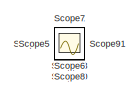
[diagram: root canvas - part 1/4, top right region]
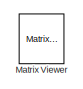
[diagram: root canvas - part 2/4, top right region]
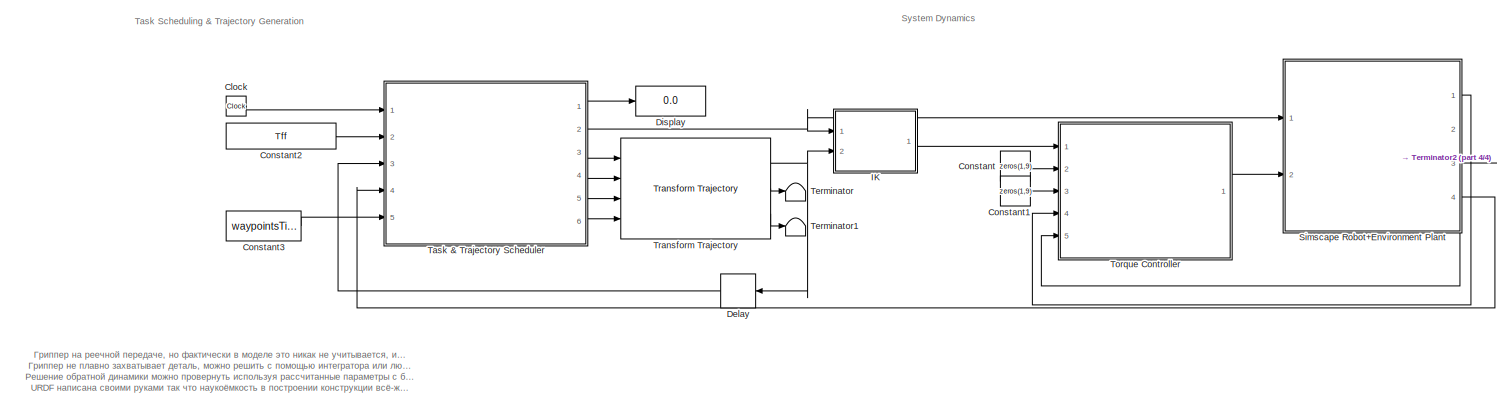
[diagram: root canvas - part 3/4, full width, bottom band]
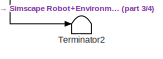
[diagram: root canvas - part 4/4, bottom right region]
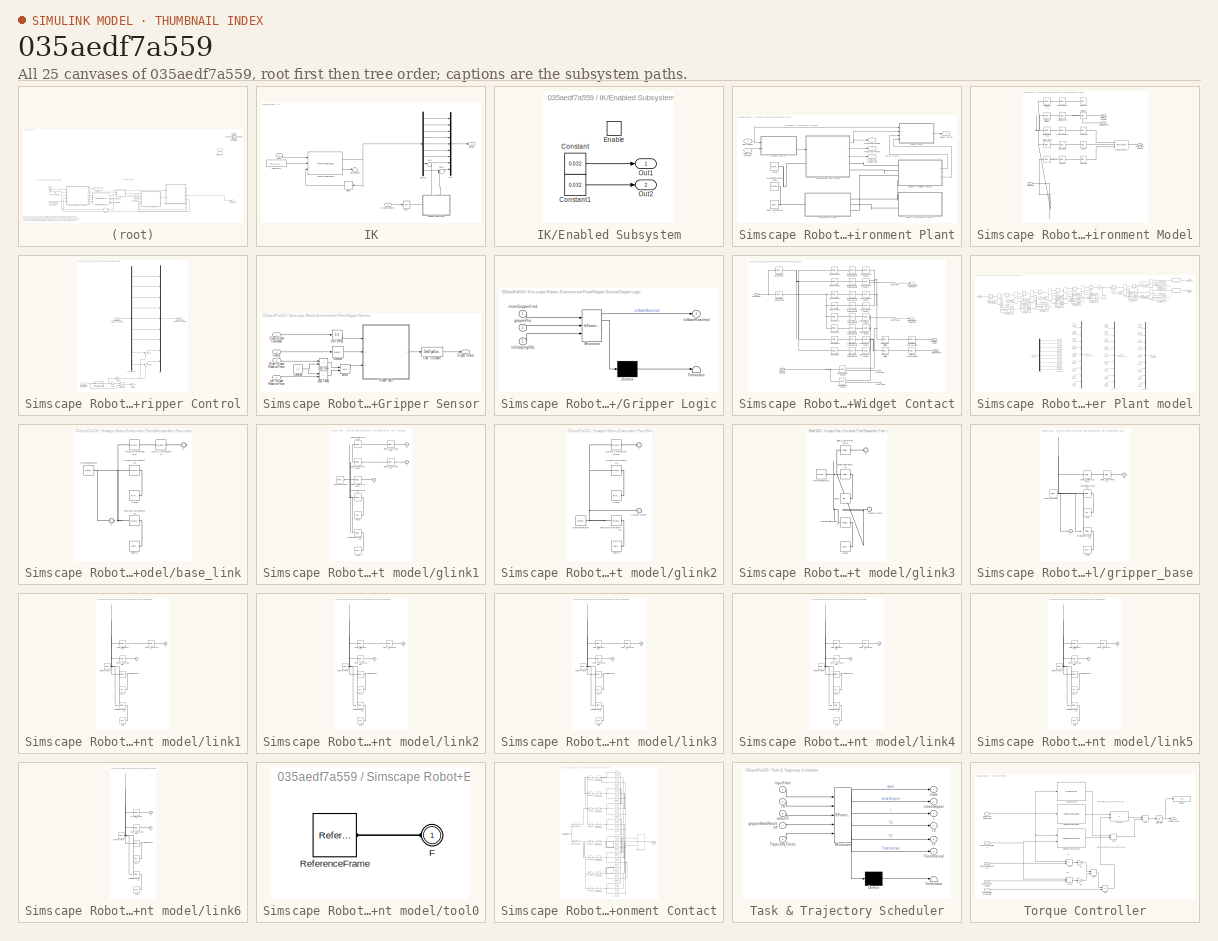
[diagram: thumbnail index - all 25 canvases of the model, root first then tree order]
MODEL slx_035aedf7a559
KIND model
CONFIG AbsTol = auto
CONFIG EnableMultiTasking = off
CONFIG FixedStep = 0.01
CONFIG MaxStep = auto
CONFIG MinStep = auto
CONFIG RelTol = 1e-2
CONFIG SampleTimeConstraint = Unconstrained
CONFIG SolverName = ode15s
CONFIG StartTime = 0.0
CONFIG StopTime = 13
BLOCK [Clock] Clock
BLOCK [Constant] Constant
  Value = zeros(1,9)
BLOCK [Constant] Constant1
  Value = zeros(1,9)
BLOCK [Constant] Constant2
  Value = Tff
BLOCK [Constant] Constant3
  Value = waypointsTime
BLOCK [Delay] Delay
  DelayLength = 1
  InitialCondition = Tff(:,1:4)
  InputPortMap = u0
  Ports = [1, 1]
BLOCK [Display] Display
  Decimation = 1
  Ports = [1]
BLOCK [SubSystem] IK
  Ports = [2, 1]
  RequestExecContextInheritance = off
BLOCK [Outport] IK/Config
BLOCK [Constant] IK/Constant3
  Value = [1,1,1,1,1,1]
BLOCK [Delay] IK/Delay
  DelayLength = 1
  InitialCondition = robot.homeConfiguration
  InputPortMap = u0
  NameLocation = top
  Ports = [1, 1]
  SampleTime = 0.015
BLOCK [Demux] IK/Demux
  Outputs = 9
  Ports = [1, 9]
BLOCK [SubSystem] IK/Enabled Subsystem
  NameLocation = right
  Ports = [0, 2, 1]
  RequestExecContextInheritance = off
  TreatAsAtomicUnit = on
BLOCK [Constant] IK/Enabled Subsystem/Constant
  Value = 0.032
BLOCK [Constant] IK/Enabled Subsystem/Constant1
  Value = 0.032
BLOCK [EnablePort] IK/Enabled Subsystem/Enable
  Ports = []
BLOCK [Outport] IK/Enabled Subsystem/Out1
BLOCK [Outport] IK/Enabled Subsystem/Out2
  Port = 2
BLOCK [Reference] IK/Inverse Kinematics  REF=robotmaniplib/Inverse Kinematics
  Ports = [3, 2]
  SourceBlock = robotmaniplib/Inverse Kinematics
  SourceProductBaseCode = RO
  SourceType = Inverse Kinematics
BLOCK [Mux] IK/Mux
  DisplayOption = bar
  Inputs = 9
  Ports = [9, 1]
BLOCK [Logic] IK/NOT
  AllPortsSameDT = off
  IconShape = distinctive
  Operator = NOT
  OutDataTypeStr = boolean
  Ports = [1, 1]
BLOCK [Inport] IK/OpenGripper?
BLOCK [Inport] IK/Pose
  Port = 2
BLOCK [Sum] IK/Sum
  Inputs = |++
  Ports = [2, 1]
BLOCK [Sum] IK/Sum1
  Inputs = |++
  Ports = [2, 1]
BLOCK [Terminator] IK/Terminator
BLOCK [Reference] Matrix Viewer  REF=dspobslib/Matrix
Viewer
  IOType = viewer
  Ports = [1]
  SourceBlock = dspobslib/Matrix\nViewer
  SourceProductName = DSP System Toolbox
  SourceType = Matrix Viewer
BLOCK [Scope] Scope
  Floating = off
  IOType = viewer
  NumInputPorts = 1
  Ports = []
  ScopeSpecificationString = Simulink.scopes.TimeScopeBlockCfg('CurrentConfiguration', extmgr.ConfigurationSet(extmgr.Configuration('Core','General UI',true),extmgr.Configuration('Core','Source UI',true),extmgr.Configuration('Sources','WiredSimulink',true,'DataLoggingVariableName','ScopeData1'),extmgr.Configuration('Visuals','Time Domain',true,'SerializedDisplays',{struct('MinYLimReal','-2497.20564','MaxYLimReal','476.60064',...<+1433ch>
BLOCK [Scope] Scope1
  Floating = off
  IOType = viewer
  NumInputPorts = 1
  Ports = []
  ScopeSpecificationString = Simulink.scopes.TimeScopeBlockCfg('CurrentConfiguration', extmgr.ConfigurationSet(extmgr.Configuration('Core','General UI',true),extmgr.Configuration('Core','Source UI',true),extmgr.Configuration('Sources','WiredSimulink',true,'DataLoggingVariableName','ScopeData2'),extmgr.Configuration('Visuals','Time Domain',true,'SerializedDisplays',{struct('MinYLimReal','-10.00000','MaxYLimReal','10.00000','YL...<+1365ch>
BLOCK [Scope] Scope10
  Floating = off
  IOType = viewer
  NumInputPorts = 1
  Ports = []
  ScopeSpecificationString = Simulink.scopes.TimeScopeBlockCfg('CurrentConfiguration', extmgr.ConfigurationSet(extmgr.Configuration('Core','General UI',true),extmgr.Configuration('Core','Source UI',true),extmgr.Configuration('Sources','WiredSimulink',true,'DataLoggingVariableName','ScopeData1'),extmgr.Configuration('Visuals','Time Domain',true,'SerializedDisplays',{struct('MinYLimReal','-125.00000','MaxYLimReal','125.00000','...<+1400ch>
BLOCK [Scope] Scope11
  Floating = off
  IOType = viewer
  NumInputPorts = 1
  Ports = []
  ScopeSpecificationString = Simulink.scopes.TimeScopeBlockCfg('CurrentConfiguration', extmgr.ConfigurationSet(extmgr.Configuration('Core','General UI',true),extmgr.Configuration('Core','Source UI',true),extmgr.Configuration('Sources','WiredSimulink',true,'DataLoggingVariableName','ScopeData2'),extmgr.Configuration('Visuals','Time Domain',true,'SerializedDisplays',{struct('MinYLimReal','-13.57733','MaxYLimReal','7.8116','YLab...<+1517ch>
BLOCK [Scope] Scope12
  Floating = off
  IOType = viewer
  NumInputPorts = 1
  Ports = []
  ScopeSpecificationString = Simulink.scopes.TimeScopeBlockCfg('CurrentConfiguration', extmgr.ConfigurationSet(extmgr.Configuration('Core','General UI',true),extmgr.Configuration('Core','Source UI',true),extmgr.Configuration('Sources','WiredSimulink',true,'DataLoggingVariableName','ScopeData2'),extmgr.Configuration('Visuals','Time Domain',true,'SerializedDisplays',{struct('MinYLimReal','-125.00000','MaxYLimReal','125.00000','...<+1833ch>
BLOCK [Scope] Scope13
  Floating = off
  IOType = viewer
  NumInputPorts = 1
  Ports = []
  ScopeSpecificationString = Simulink.scopes.TimeScopeBlockCfg('CurrentConfiguration', extmgr.ConfigurationSet(extmgr.Configuration('Core','General UI',true),extmgr.Configuration('Core','Source UI',true),extmgr.Configuration('Sources','WiredSimulink',true,'DataLoggingVariableName','ScopeData1'),extmgr.Configuration('Visuals','Time Domain',true,'SerializedDisplays',{struct('MinYLimReal','-0.5','MaxYLimReal','4.5','YLabelReal',...<+1401ch>
BLOCK [Scope] Scope2
  Floating = off
  IOType = viewer
  NumInputPorts = 1
  Ports = []
  ScopeSpecificationString = Simulink.scopes.TimeScopeBlockCfg('CurrentConfiguration', extmgr.ConfigurationSet(extmgr.Configuration('Core','General UI',true),extmgr.Configuration('Core','Source UI',true),extmgr.Configuration('Sources','WiredSimulink',true,'DataLoggingVariableName','ScopeData1'),extmgr.Configuration('Visuals','Time Domain',true,'SerializedDisplays',{struct('MinYLimReal','-109.89528','MaxYLimReal','64.05195','Y...<+1421ch>
BLOCK [Scope] Scope3
  Floating = off
  IOType = viewer
  NumInputPorts = 1
  Ports = []
  ScopeSpecificationString = Simulink.scopes.TimeScopeBlockCfg('CurrentConfiguration', extmgr.ConfigurationSet(extmgr.Configuration('Core','General UI',true),extmgr.Configuration('Core','Source UI',true),extmgr.Configuration('Sources','WiredSimulink',true,'DataLoggingVariableName','ScopeData2'),extmgr.Configuration('Visuals','Time Domain',true,'SerializedDisplays',{struct('MinYLimReal','-125.00000','MaxYLimReal','125.00000','...<+1423ch>
BLOCK [Scope] Scope4
  Floating = off
  IOType = viewer
  NumInputPorts = 1
  Ports = []
  ScopeSpecificationString = Simulink.scopes.TimeScopeBlockCfg('CurrentConfiguration', extmgr.ConfigurationSet(extmgr.Configuration('Core','General UI',true),extmgr.Configuration('Core','Source UI',true),extmgr.Configuration('Sources','WiredSimulink',true,'DataLoggingVariableName','ScopeData3'),extmgr.Configuration('Visuals','Time Domain',true,'SerializedDisplays',{struct('MinYLimReal','-1.37732','MaxYLimReal','2.42414','YLab...<+1402ch>
BLOCK [Scope] Scope5
  Floating = off
  IOType = viewer
  NumInputPorts = 1
  Ports = []
  ScopeSpecificationString = Simulink.scopes.TimeScopeBlockCfg('CurrentConfiguration', extmgr.ConfigurationSet(extmgr.Configuration('Core','General UI',true),extmgr.Configuration('Core','Source UI',true),extmgr.Configuration('Sources','WiredSimulink',true,'DataLoggingVariableName','ScopeData1'),extmgr.Configuration('Visuals','Time Domain',true,'SerializedDisplays',{struct('MinYLimReal','-119.88119','MaxYLimReal','78.93068','Y...<+1550ch>
BLOCK [Scope] Scope6
  Floating = off
  IOType = viewer
  NumInputPorts = 1
  Ports = []
  ScopeSpecificationString = Simulink.scopes.TimeScopeBlockCfg('CurrentConfiguration', extmgr.ConfigurationSet(extmgr.Configuration('Core','General UI',true),extmgr.Configuration('Core','Source UI',true),extmgr.Configuration('Sources','WiredSimulink',true,'DataLoggingVariableName','ScopeData1'),extmgr.Configuration('Visuals','Time Domain',true,'SerializedDisplays',{struct('MinYLimReal','-38.06514','MaxYLimReal','4.389','YLabe...<+1542ch>
BLOCK [Scope] Scope7
  Floating = off
  IOType = viewer
  NumInputPorts = 1
  Ports = []
  ScopeSpecificationString = Simulink.scopes.TimeScopeBlockCfg('CurrentConfiguration', extmgr.ConfigurationSet(extmgr.Configuration('Core','General UI',true),extmgr.Configuration('Core','Source UI',true),extmgr.Configuration('Sources','WiredSimulink',true,'DataLoggingVariableName','ScopeData1'),extmgr.Configuration('Visuals','Time Domain',true,'SerializedDisplays',{struct('MinYLimReal','-0.80664','MaxYLimReal','0.80658','YLab...<+1995ch>
BLOCK [Scope] Scope8
  Floating = off
  IOType = viewer
  NumInputPorts = 1
  Ports = []
  ScopeSpecificationString = Simulink.scopes.TimeScopeBlockCfg('CurrentConfiguration', extmgr.ConfigurationSet(extmgr.Configuration('Core','General UI',true),extmgr.Configuration('Core','Source UI',true),extmgr.Configuration('Sources','WiredSimulink',true,'DataLoggingVariableName','ScopeData1'),extmgr.Configuration('Visuals','Time Domain',true,'SerializedDisplays',{struct('MinYLimReal','-3.927','MaxYLimReal','3.927','YLabelRe...<+1505ch>
BLOCK [Scope] Scope9
  Floating = off
  IOType = viewer
  NumInputPorts = 1
  Ports = []
  ScopeSpecificationString = Simulink.scopes.TimeScopeBlockCfg('CurrentConfiguration', extmgr.ConfigurationSet(extmgr.Configuration('Core','General UI',true),extmgr.Configuration('Core','Source UI',true),extmgr.Configuration('Sources','WiredSimulink',true,'DataLoggingVariableName','ScopeData1'),extmgr.Configuration('Visuals','Time Domain',true,'SerializedDisplays',{struct('MinYLimReal','-113.42519','MaxYLimReal','20.82667','Y...<+1527ch>
BLOCK [SubSystem] Simscape Robot+Environment Plant
  Ports = [2, 4]
  RequestExecContextInheritance = off
BLOCK [Inport] Simscape Robot+Environment Plant/Applied Joint Torques
  Port = 2
BLOCK [Inport] Simscape Robot+Environment Plant/Close Gripper
BLOCK [SubSystem] Simscape Robot+Environment Plant/Environment Model
  Ports = [0, 0, 0, 0, 0, 1, 3]
  RequestExecContextInheritance = off
BLOCK [Reference] Simscape Robot+Environment Plant/Environment Model/Brick Solid  REF=sm_lib/Body Elements/Brick Solid
  Ports = [0, 0, 0, 0, 0, 1, 1]
  SourceBlock = sm_lib/Body Elements/Brick Solid
  SourceProductBaseCode = MS
  SourceType = Brick Solid
BLOCK [Reference] Simscape Robot+Environment Plant/Environment Model/Center Table  REF=sm_lib/Body Elements/Brick Solid
  Ports = [0, 0, 0, 0, 0, 1, 1]
  SourceBlock = sm_lib/Body Elements/Brick Solid
  SourceProductBaseCode = MS
  SourceType = Brick Solid
BLOCK [Reference] Simscape Robot+Environment Plant/Environment Model/Center Table Joint  REF=sm_lib/Joints/Weld Joint
  Ports = [0, 0, 0, 0, 0, 1, 1]
  SourceBlock = sm_lib/Joints/Weld Joint
  SourceProductBaseCode = MS
  SourceType = Weld Joint
BLOCK [PMIOPort] Simscape Robot+Environment Plant/Environment Model/Environment Contacts
  Port = 2
  Side = Right
BLOCK [Reference] Simscape Robot+Environment Plant/Environment Model/Floor Joint  REF=sm_lib/Joints/Weld Joint
  Ports = [0, 0, 0, 0, 0, 1, 1]
  SourceBlock = sm_lib/Joints/Weld Joint
  SourceProductBaseCode = MS
  SourceType = Weld Joint
BLOCK [Reference] Simscape Robot+Environment Plant/Environment Model/Left Shelf  REF=sm_lib/Body Elements/Brick Solid
  Ports = [0, 0, 0, 0, 0, 1, 1]
  SourceBlock = sm_lib/Body Elements/Brick Solid
  SourceProductBaseCode = MS
  SourceType = Brick Solid
BLOCK [Reference] Simscape Robot+Environment Plant/Environment Model/Left Shelf Joint  REF=sm_lib/Joints/Weld Joint
  Ports = [0, 0, 0, 0, 0, 1, 1]
  SourceBlock = sm_lib/Joints/Weld Joint
  SourceProductBaseCode = MS
  SourceType = Weld Joint
BLOCK [Reference] Simscape Robot+Environment Plant/Environment Model/Left Widget  REF=sm_lib/Body Elements/Brick Solid
  Ports = [0, 0, 0, 0, 0, 1, 1]
  SourceBlock = sm_lib/Body Elements/Brick Solid
  SourceProductBaseCode = MS
  SourceType = Brick Solid
BLOCK [PMIOPort] Simscape Robot+Environment Plant/Environment Model/Left Widget Frame
  Side = Right
BLOCK [PMIOPort] Simscape Robot+Environment Plant/Environment Model/Left Widget Geometry
  Port = 4
  Side = Right
BLOCK [Reference] Simscape Robot+Environment Plant/Environment Model/Left Widget Joint  REF=sm_lib/Joints/6-DOF Joint
  Ports = [0, 0, 0, 0, 0, 1, 1]
  SourceBlock = sm_lib/Joints/6-DOF Joint
  SourceProductBaseCode = MS
  SourceType = 6-DOF Joint
BLOCK [Reference] Simscape Robot+Environment Plant/Environment Model/Right Shelf  REF=sm_lib/Body Elements/Brick Solid
  Ports = [0, 0, 0, 0, 0, 0, 1]
  SourceBlock = sm_lib/Body Elements/Brick Solid
  SourceProductBaseCode = MS
  SourceType = Brick Solid
BLOCK [Reference] Simscape Robot+Environment Plant/Environment Model/Right Shelf Joint  REF=sm_lib/Joints/Weld Joint
  Ports = [0, 0, 0, 0, 0, 1, 1]
  SourceBlock = sm_lib/Joints/Weld Joint
  SourceProductBaseCode = MS
  SourceType = Weld Joint
BLOCK [SimscapeBus] Simscape Robot+Environment Plant/Environment Model/Simscape Bus
  HierarchyStrings = CenterTable;LeftShelf;Floor
  Ports = [0, 0, 0, 0, 0, 3, 1]
BLOCK [PMIOPort] Simscape Robot+Environment Plant/Environment Model/World Frame
  Port = 3
  Side = Left
BLOCK [Reference] Simscape Robot+Environment Plant/Environment Model/World to Center Table  REF=sm_lib/Frames and
Transforms/Rigid
Transform
  Ports = [0, 0, 0, 0, 0, 1, 1]
  SourceBlock = sm_lib/Frames and\nTransforms/Rigid\nTransform
  SourceProductBaseCode = MS
  SourceType = Rigid\nTransform
BLOCK [Reference] Simscape Robot+Environment Plant/Environment Model/World to Floor  REF=sm_lib/Frames and
Transforms/Rigid
Transform
  Ports = [0, 0, 0, 0, 0, 1, 1]
  SourceBlock = sm_lib/Frames and\nTransforms/Rigid\nTransform
  SourceProductBaseCode = MS
  SourceType = Rigid\nTransform
BLOCK [Reference] Simscape Robot+Environment Plant/Environment Model/World to Left Shelf  REF=sm_lib/Frames and
Transforms/Rigid
Transform
  Ports = [0, 0, 0, 0, 0, 1, 1]
  SourceBlock = sm_lib/Frames and\nTransforms/Rigid\nTransform
  SourceProductBaseCode = MS
  SourceType = Rigid\nTransform
BLOCK [Reference] Simscape Robot+Environment Plant/Environment Model/World to Left Widget  REF=sm_lib/Frames and
Transforms/Rigid
Transform
  Ports = [0, 0, 0, 0, 0, 1, 1]
  SourceBlock = sm_lib/Frames and\nTransforms/Rigid\nTransform
  SourceProductBaseCode = MS
  SourceType = Rigid\nTransform
BLOCK [Reference] Simscape Robot+Environment Plant/Environment Model/World to Right Shelf  REF=sm_lib/Frames and
Transforms/Rigid
Transform
  Ports = [0, 0, 0, 0, 0, 1, 1]
  SourceBlock = sm_lib/Frames and\nTransforms/Rigid\nTransform
  SourceProductBaseCode = MS
  SourceType = Rigid\nTransform
BLOCK [SubSystem] Simscape Robot+Environment Plant/Gripper Control
  Ports = [2, 1]
  RequestExecContextInheritance = off
BLOCK [DataTypeConversion] Simscape Robot+Environment Plant/Gripper Control/Cast To Double
  OutDataTypeStr = double
  RndMeth = Floor
  SaturateOnIntegerOverflow = off
BLOCK [Inport] Simscape Robot+Environment Plant/Gripper Control/Controller Joint Torques and Forces
  Port = 2
BLOCK [Gain] Simscape Robot+Environment Plant/Gripper Control/Gain
  Gain = -10
BLOCK [Gain] Simscape Robot+Environment Plant/Gripper Control/Gain1
  Commented = on
  Gain = 2
BLOCK [Gain] Simscape Robot+Environment Plant/Gripper Control/Gain2
  Commented = on
  Gain = -1
BLOCK [Inport] Simscape Robot+Environment Plant/Gripper Control/Gripper Close Command
BLOCK [Integrator] Simscape Robot+Environment Plant/Gripper Control/Integrator
  Commented = on
  ExternalReset = falling
  LimitOutput = on
  LowerSaturationLimit = 0
  Ports = [2, 1]
  UpperSaturationLimit = 10
BLOCK [Outport] Simscape Robot+Environment Plant/Gripper Control/Modified Joint Torques and Forces
BLOCK [Mux] Simscape Robot+Environment Plant/Gripper Control/Mux
  DisplayOption = bar
  Inputs = 9
  Ports = [9, 1]
BLOCK [Sum] Simscape Robot+Environment Plant/Gripper Control/Sum
  Inputs = |++
  Ports = [2, 1]
BLOCK [Sum] Simscape Robot+Environment Plant/Gripper Control/Sum1
  Inputs = |++
  Ports = [2, 1]
BLOCK [Demux] Simscape Robot+Environment Plant/Gripper Control/tau_Demux
  Outputs = 9
  Ports = [1, 9]
BLOCK [SubSystem] Simscape Robot+Environment Plant/Gripper Sensor
  Ports = [4, 1]
  RequestExecContextInheritance = off
BLOCK [Logic] Simscape Robot+Environment Plant/Gripper Sensor/AND
  AllPortsSameDT = off
  IconShape = distinctive
  OutDataTypeStr = boolean
  Ports = [2, 1]
BLOCK [DataTypeConversion] Simscape Robot+Environment Plant/Gripper Sensor/Cast To Double
  OutDataTypeStr = double
  RndMeth = Floor
  SaturateOnIntegerOverflow = off
BLOCK [Inport] Simscape Robot+Environment Plant/Gripper Sensor/Close Gripper Command
  NameLocation = left
BLOCK [Inport] Simscape Robot+Environment Plant/Gripper Sensor/Config
  NameLocation = left
  Port = 2
BLOCK [Constant] Simscape Robot+Environment Plant/Gripper Sensor/Constant
  Value = 1.9
BLOCK [SubSystem] Simscape Robot+Environment Plant/Gripper Sensor/Gripper Logic
  ErrorFcn = Stateflow.Translate.translate
  PermitHierarchicalResolution = ExplicitOnly
  Ports = [3, 1]
  RequestExecContextInheritance = off
  SFBlockType = MATLAB Function
  TreatAsAtomicUnit = on
BLOCK [Demux] Simscape Robot+Environment Plant/Gripper Sensor/Gripper Logic/ Demux 
  Outputs = 1
  Ports = [1, 1]
BLOCK [S-Function] Simscape Robot+Environment Plant/Gripper Sensor/Gripper Logic/ SFunction 
  EnableBusSupport = on
  FunctionName = sf_sfun
  PortCounts = [3 2]
  Ports = [3, 2]
  SFcnIsStateOwnerBlock = off
  SFunctionDeploymentMode = off
  Tag = Stateflow S-Function 7
BLOCK [Terminator] Simscape Robot+Environment Plant/Gripper Sensor/Gripper Logic/ Terminator 
BLOCK [Inport] Simscape Robot+Environment Plant/Gripper Sensor/Gripper Logic/closeGripperCmd
BLOCK [Inport] Simscape Robot+Environment Plant/Gripper Sensor/Gripper Logic/gripperPos
  Port = 2
BLOCK [Inport] Simscape Robot+Environment Plant/Gripper Sensor/Gripper Logic/isGrippingObj
  Port = 3
BLOCK [Outport] Simscape Robot+Environment Plant/Gripper Sensor/Gripper Logic/isStateReached
BLOCK [Outport] Simscape Robot+Environment Plant/Gripper Sensor/Gripper Status
BLOCK [Inport] Simscape Robot+Environment Plant/Gripper Sensor/Left Gripper Reaction Force
  NameLocation = left
  Port = 4
BLOCK [RelationalOperator] Simscape Robot+Environment Plant/Gripper Sensor/Less Than
  InputSameDT = off
  Operator = >
  OutDataTypeStr = boolean
  Ports = [2, 1]
  RndMeth = Simplest
BLOCK [RelationalOperator] Simscape Robot+Environment Plant/Gripper Sensor/Less Than1
  InputSameDT = off
  Operator = <
  OutDataTypeStr = boolean
  Ports = [2, 1]
  RndMeth = Simplest
BLOCK [Inport] Simscape Robot+Environment Plant/Gripper Sensor/Right Gripper Reaction Force
  NameLocation = left
  Port = 3
BLOCK [Selector] Simscape Robot+Environment Plant/Gripper Sensor/Selector
  IndexOptions = Index vector (dialog)
  Indices = [8 9]
  InputPortWidth = 9
  OutputSizes = 1
  Ports = [1, 1]
BLOCK [UnitDelay] Simscape Robot+Environment Plant/Gripper Sensor/Unit Delay
  HasFrameUpgradeWarning = on
  SampleTime = -1
BLOCK [Outport] Simscape Robot+Environment Plant/Gripper Status
  Port = 4
BLOCK [SubSystem] Simscape Robot+Environment Plant/Gripper to Widget Contact
  Ports = [0, 2, 0, 0, 0, 4]
  RequestExecContextInheritance = off
BLOCK [Reference] Simscape Robot+Environment Plant/Gripper to Widget Contact/Left Contact Primitive  REF=sm_lib/Body Elements/Brick Solid
  Ports = [0, 0, 0, 0, 0, 1, 1]
  SourceBlock = sm_lib/Body Elements/Brick Solid
  SourceProductBaseCode = MS
  SourceType = Brick Solid
BLOCK [PMIOPort] Simscape Robot+Environment Plant/Gripper to Widget Contact/Left Gripper Frame
  Side = Left
BLOCK [Reference] Simscape Robot+Environment Plant/Gripper to Widget Contact/Left Gripper to Contact Block Origin  REF=sm_lib/Frames and
Transforms/Rigid
Transform
  Ports = [0, 0, 0, 0, 0, 1, 1]
  SourceBlock = sm_lib/Frames and\nTransforms/Rigid\nTransform
  SourceProductBaseCode = MS
  SourceType = Rigid\nTransform
BLOCK [Reference] Simscape Robot+Environment Plant/Gripper to Widget Contact/Left Lower Back  REF=sm_lib/Frames and
Transforms/Rigid
Transform
  Ports = [0, 0, 0, 0, 0, 1, 1]
  SourceBlock = sm_lib/Frames and\nTransforms/Rigid\nTransform
  SourceProductBaseCode = MS
  SourceType = Rigid\nTransform
BLOCK [Reference] Simscape Robot+Environment Plant/Gripper to Widget Contact/Left Lower Back Contact  REF=sm_lib/Forces and
Torques/Spatial
Contact Force
  Ports = [0, 0, 0, 0, 0, 1, 2]
  SourceBlock = sm_lib/Forces and\nTorques/Spatial\nContact Force
  SourceProductBaseCode = MS
  SourceType = Spatial\nContact Force
BLOCK [Reference] Simscape Robot+Environment Plant/Gripper to Widget Contact/Left Lower Back Contact Sphere  REF=sm_lib/Body Elements/Spherical Solid
  Ports = [0, 0, 0, 0, 0, 1, 1]
  SourceBlock = sm_lib/Body Elements/Spherical Solid
  SourceProductBaseCode = MS
  SourceType = Spherical Solid
BLOCK [Reference] Simscape Robot+Environment Plant/Gripper to Widget Contact/Left Lower Back Contact1  REF=sm_lib/Forces and
Torques/Spatial
Contact Force
  Commented = on
  Ports = [0, 0, 0, 0, 0, 1, 2]
  SourceBlock = sm_lib/Forces and\nTorques/Spatial\nContact Force
  SourceProductBaseCode = MS
  SourceType = Spatial\nContact Force
BLOCK [Reference] Simscape Robot+Environment Plant/Gripper to Widget Contact/Left Lower Front  REF=sm_lib/Frames and
Transforms/Rigid
Transform
  Ports = [0, 0, 0, 0, 0, 1, 1]
  SourceBlock = sm_lib/Frames and\nTransforms/Rigid\nTransform
  SourceProductBaseCode = MS
  SourceType = Rigid\nTransform
BLOCK [Reference] Simscape Robot+Environment Plant/Gripper to Widget Contact/Left Lower Front Contact  REF=sm_lib/Forces and
Torques/Spatial
Contact Force
  Ports = [0, 0, 0, 0, 0, 1, 1]
  SourceBlock = sm_lib/Forces and\nTorques/Spatial\nContact Force
  SourceProductBaseCode = MS
  SourceType = Spatial\nContact Force
BLOCK [Reference] Simscape Robot+Environment Plant/Gripper to Widget Contact/Left Lower Front Contact Sphere  REF=sm_lib/Body Elements/Spherical Solid
  Ports = [0, 0, 0, 0, 0, 1, 1]
  SourceBlock = sm_lib/Body Elements/Spherical Solid
  SourceProductBaseCode = MS
  SourceType = Spherical Solid
BLOCK [Reference] Simscape Robot+Environment Plant/Gripper to Widget Contact/Left Upper Back  REF=sm_lib/Frames and
Transforms/Rigid
Transform
  Ports = [0, 0, 0, 0, 0, 1, 1]
  SourceBlock = sm_lib/Frames and\nTransforms/Rigid\nTransform
  SourceProductBaseCode = MS
  SourceType = Rigid\nTransform
BLOCK [Reference] Simscape Robot+Environment Plant/Gripper to Widget Contact/Left Upper Back Contact  REF=sm_lib/Forces and
Torques/Spatial
Contact Force
  Ports = [0, 0, 0, 0, 0, 1, 1]
  SourceBlock = sm_lib/Forces and\nTorques/Spatial\nContact Force
  SourceProductBaseCode = MS
  SourceType = Spatial\nContact Force
BLOCK [Reference] Simscape Robot+Environment Plant/Gripper to Widget Contact/Left Upper Back Contact Sphere  REF=sm_lib/Body Elements/Spherical Solid
  Ports = [0, 0, 0, 0, 0, 1, 1]
  SourceBlock = sm_lib/Body Elements/Spherical Solid
  SourceProductBaseCode = MS
  SourceType = Spherical Solid
BLOCK [Reference] Simscape Robot+Environment Plant/Gripper to Widget Contact/Left Upper Front  REF=sm_lib/Frames and
Transforms/Rigid
Transform
  Ports = [0, 0, 0, 0, 0, 1, 1]
  SourceBlock = sm_lib/Frames and\nTransforms/Rigid\nTransform
  SourceProductBaseCode = MS
  SourceType = Rigid\nTransform
BLOCK [Reference] Simscape Robot+Environment Plant/Gripper to Widget Contact/Left Upper Front Contact  REF=sm_lib/Forces and
Torques/Spatial
Contact Force
  Ports = [0, 0, 0, 0, 0, 1, 1]
  SourceBlock = sm_lib/Forces and\nTorques/Spatial\nContact Force
  SourceProductBaseCode = MS
  SourceType = Spatial\nContact Force
BLOCK [Reference] Simscape Robot+Environment Plant/Gripper to Widget Contact/Left Upper Front Contact Sphere  REF=sm_lib/Body Elements/Spherical Solid
  Ports = [0, 0, 0, 0, 0, 1, 1]
  SourceBlock = sm_lib/Body Elements/Spherical Solid
  SourceProductBaseCode = MS
  SourceType = Spherical Solid
BLOCK [Outport] Simscape Robot+Environment Plant/Gripper to Widget Contact/Left Upper Front Normal Force
  Port = 2
BLOCK [PMIOPort] Simscape Robot+Environment Plant/Gripper to Widget Contact/Left Widget Geometry
  Port = 3
  Side = Left
BLOCK [Reference] Simscape Robot+Environment Plant/Gripper to Widget Contact/PSS Q_Joint1  REF=nesl_utility/PS-Simulink
Converter
  Commented = on
  Ports = [0, 1, 0, 0, 0, 1]
  SourceBlock = nesl_utility/PS-Simulink\nConverter
  SourceProductBaseCode = SS,PW,VE
  SourceType = PS-Simulink\nConverter
BLOCK [Reference] Simscape Robot+Environment Plant/Gripper to Widget Contact/PSS Q_Joint2  REF=nesl_utility/PS-Simulink
Converter
  Commented = on
  Ports = [0, 1, 0, 0, 0, 1]
  SourceBlock = nesl_utility/PS-Simulink\nConverter
  SourceProductBaseCode = SS,PW,VE
  SourceType = PS-Simulink\nConverter
BLOCK [Reference] Simscape Robot+Environment Plant/Gripper to Widget Contact/PSS Q_Joint3  REF=nesl_utility/PS-Simulink
Converter
  Ports = [0, 1, 0, 0, 0, 1]
  SourceBlock = nesl_utility/PS-Simulink\nConverter
  SourceProductBaseCode = SS,PW,VE
  SourceType = PS-Simulink\nConverter
BLOCK [Reference] Simscape Robot+Environment Plant/Gripper to Widget Contact/PSS Q_Joint4  REF=nesl_utility/PS-Simulink
Converter
  Ports = [0, 1, 0, 0, 0, 1]
  SourceBlock = nesl_utility/PS-Simulink\nConverter
  SourceProductBaseCode = SS,PW,VE
  SourceType = PS-Simulink\nConverter
BLOCK [Reference] Simscape Robot+Environment Plant/Gripper to Widget Contact/Right Contact Primitive  REF=sm_lib/Body Elements/Brick Solid
  Ports = [0, 0, 0, 0, 0, 1, 1]
  SourceBlock = sm_lib/Body Elements/Brick Solid
  SourceProductBaseCode = MS
  SourceType = Brick Solid
BLOCK [PMIOPort] Simscape Robot+Environment Plant/Gripper to Widget Contact/Right Gripper Frame
  Port = 2
  Side = Left
BLOCK [Reference] Simscape Robot+Environment Plant/Gripper to Widget Contact/Right Gripper to Contact Block Origin  REF=sm_lib/Frames and
Transforms/Rigid
Transform
  Ports = [0, 0, 0, 0, 0, 1, 1]
  SourceBlock = sm_lib/Frames and\nTransforms/Rigid\nTransform
  SourceProductBaseCode = MS
  SourceType = Rigid\nTransform
BLOCK [Reference] Simscape Robot+Environment Plant/Gripper to Widget Contact/Right Lower Back  REF=sm_lib/Frames and
Transforms/Rigid
Transform
  Ports = [0, 0, 0, 0, 0, 1, 1]
  SourceBlock = sm_lib/Frames and\nTransforms/Rigid\nTransform
  SourceProductBaseCode = MS
  SourceType = Rigid\nTransform
BLOCK [Reference] Simscape Robot+Environment Plant/Gripper to Widget Contact/Right Lower Back Contact  REF=sm_lib/Forces and
Torques/Spatial
Contact Force
  Ports = [0, 0, 0, 0, 0, 1, 1]
  SourceBlock = sm_lib/Forces and\nTorques/Spatial\nContact Force
  SourceProductBaseCode = MS
  SourceType = Spatial\nContact Force
BLOCK [Reference] Simscape Robot+Environment Plant/Gripper to Widget Contact/Right Lower Back Contact Sphere  REF=sm_lib/Body Elements/Spherical Solid
  Ports = [0, 0, 0, 0, 0, 1, 1]
  SourceBlock = sm_lib/Body Elements/Spherical Solid
  SourceProductBaseCode = MS
  SourceType = Spherical Solid
BLOCK [Reference] Simscape Robot+Environment Plant/Gripper to Widget Contact/Right Lower Front  REF=sm_lib/Frames and
Transforms/Rigid
Transform
  Ports = [0, 0, 0, 0, 0, 1, 1]
  SourceBlock = sm_lib/Frames and\nTransforms/Rigid\nTransform
  SourceProductBaseCode = MS
  SourceType = Rigid\nTransform
BLOCK [Reference] Simscape Robot+Environment Plant/Gripper to Widget Contact/Right Lower Front Contact  REF=sm_lib/Forces and
Torques/Spatial
Contact Force
  Ports = [0, 0, 0, 0, 0, 1, 1]
  SourceBlock = sm_lib/Forces and\nTorques/Spatial\nContact Force
  SourceProductBaseCode = MS
  SourceType = Spatial\nContact Force
BLOCK [Reference] Simscape Robot+Environment Plant/Gripper to Widget Contact/Right Lower Front Contact Sphere  REF=sm_lib/Body Elements/Spherical Solid
  Ports = [0, 0, 0, 0, 0, 1, 1]
  SourceBlock = sm_lib/Body Elements/Spherical Solid
  SourceProductBaseCode = MS
  SourceType = Spherical Solid
BLOCK [Reference] Simscape Robot+Environment Plant/Gripper to Widget Contact/Right Upper Back  REF=sm_lib/Frames and
Transforms/Rigid
Transform
  Ports = [0, 0, 0, 0, 0, 1, 1]
  SourceBlock = sm_lib/Frames and\nTransforms/Rigid\nTransform
  SourceProductBaseCode = MS
  SourceType = Rigid\nTransform
BLOCK [Reference] Simscape Robot+Environment Plant/Gripper to Widget Contact/Right Upper Back Contact  REF=sm_lib/Forces and
Torques/Spatial
Contact Force
  Ports = [0, 0, 0, 0, 0, 1, 1]
  SourceBlock = sm_lib/Forces and\nTorques/Spatial\nContact Force
  SourceProductBaseCode = MS
  SourceType = Spatial\nContact Force
BLOCK [Reference] Simscape Robot+Environment Plant/Gripper to Widget Contact/Right Upper Back Contact Sphere  REF=sm_lib/Body Elements/Spherical Solid
  Ports = [0, 0, 0, 0, 0, 1, 1]
  SourceBlock = sm_lib/Body Elements/Spherical Solid
  SourceProductBaseCode = MS
  SourceType = Spherical Solid
BLOCK [Reference] Simscape Robot+Environment Plant/Gripper to Widget Contact/Right Upper Front  REF=sm_lib/Frames and
Transforms/Rigid
Transform
  Ports = [0, 0, 0, 0, 0, 1, 1]
  SourceBlock = sm_lib/Frames and\nTransforms/Rigid\nTransform
  SourceProductBaseCode = MS
  SourceType = Rigid\nTransform
BLOCK [Reference] Simscape Robot+Environment Plant/Gripper to Widget Contact/Right Upper Front Contact  REF=sm_lib/Forces and
Torques/Spatial
Contact Force
  Ports = [0, 0, 0, 0, 0, 1, 2]
  SourceBlock = sm_lib/Forces and\nTorques/Spatial\nContact Force
  SourceProductBaseCode = MS
  SourceType = Spatial\nContact Force
BLOCK [Reference] Simscape Robot+Environment Plant/Gripper to Widget Contact/Right Upper Front Contact Sphere  REF=sm_lib/Body Elements/Spherical Solid
  Ports = [0, 0, 0, 0, 0, 1, 1]
  SourceBlock = sm_lib/Body Elements/Spherical Solid
  SourceProductBaseCode = MS
  SourceType = Spherical Solid
BLOCK [Reference] Simscape Robot+Environment Plant/Gripper to Widget Contact/Right Upper Front Contact1  REF=sm_lib/Forces and
Torques/Spatial
Contact Force
  Commented = on
  Ports = [0, 0, 0, 0, 0, 1, 2]
  SourceBlock = sm_lib/Forces and\nTorques/Spatial\nContact Force
  SourceProductBaseCode = MS
  SourceType = Spatial\nContact Force
BLOCK [Outport] Simscape Robot+Environment Plant/Gripper to Widget Contact/Right Upper Front Normal Force
BLOCK [Reference] Simscape Robot+Environment Plant/Gripper to Widget Contact/Translation to Lower Contacts  REF=sm_lib/Frames and
Transforms/Rigid
Transform
  Ports = [0, 0, 0, 0, 0, 1, 1]
  SourceBlock = sm_lib/Frames and\nTransforms/Rigid\nTransform
  SourceProductBaseCode = MS
  SourceType = Rigid\nTransform
BLOCK [Reference] Simscape Robot+Environment Plant/Gripper to Widget Contact/Translation to Upper Contact  REF=sm_lib/Frames and
Transforms/Rigid
Transform
  Ports = [0, 0, 0, 0, 0, 1, 1]
  SourceBlock = sm_lib/Frames and\nTransforms/Rigid\nTransform
  SourceProductBaseCode = MS
  SourceType = Rigid\nTransform
BLOCK [PMIOPort] Simscape Robot+Environment Plant/Gripper to Widget Contact/Widget Frame
  Port = 4
  Side = Left
BLOCK [Outport] Simscape Robot+Environment Plant/Measured Acceleration
  Port = 3
BLOCK [Outport] Simscape Robot+Environment Plant/Measured Position
BLOCK [Outport] Simscape Robot+Environment Plant/Measured Velocity
  Port = 2
BLOCK [Reference] Simscape Robot+Environment Plant/MechanismConfiguration  REF=sm_lib/Utilities/Mechanism
Configuration
  Ports = [0, 0, 0, 0, 0, 0, 1]
  SourceBlock = sm_lib/Utilities/Mechanism\nConfiguration
  SourceProductBaseCode = MS
  SourceType = Mechanism\nConfiguration
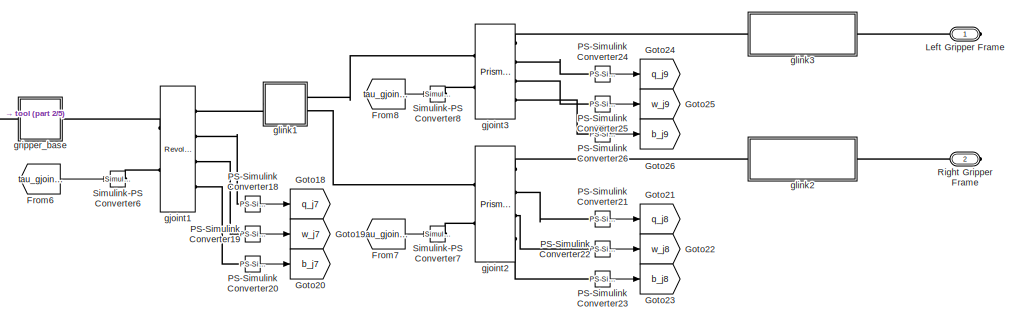
[diagram: Simscape Robot+Environment Plant/Robossembler Plant model - part 1/5, top right region]
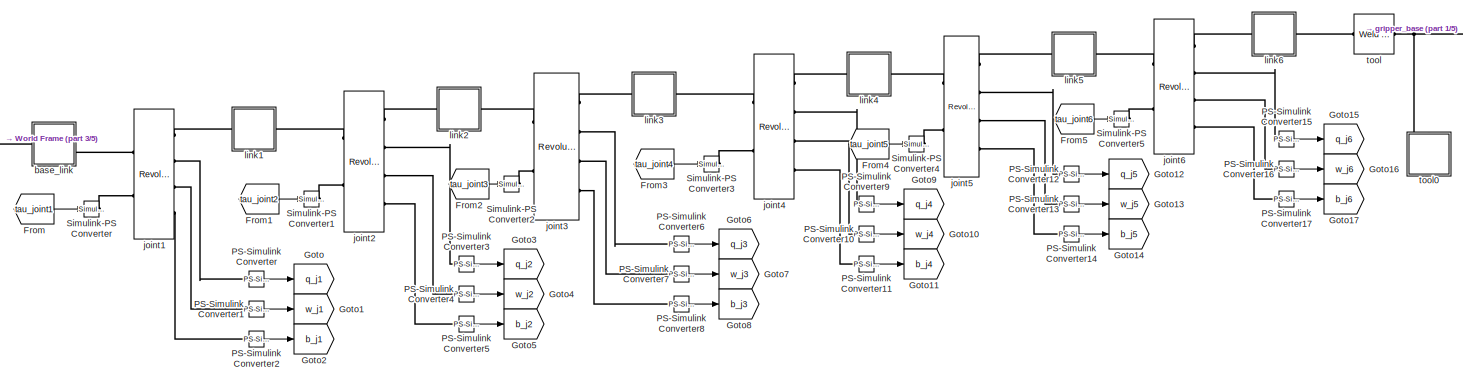
[diagram: Simscape Robot+Environment Plant/Robossembler Plant model - part 2/5, top left region]
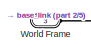
[diagram: Simscape Robot+Environment Plant/Robossembler Plant model - part 3/5, top left region]
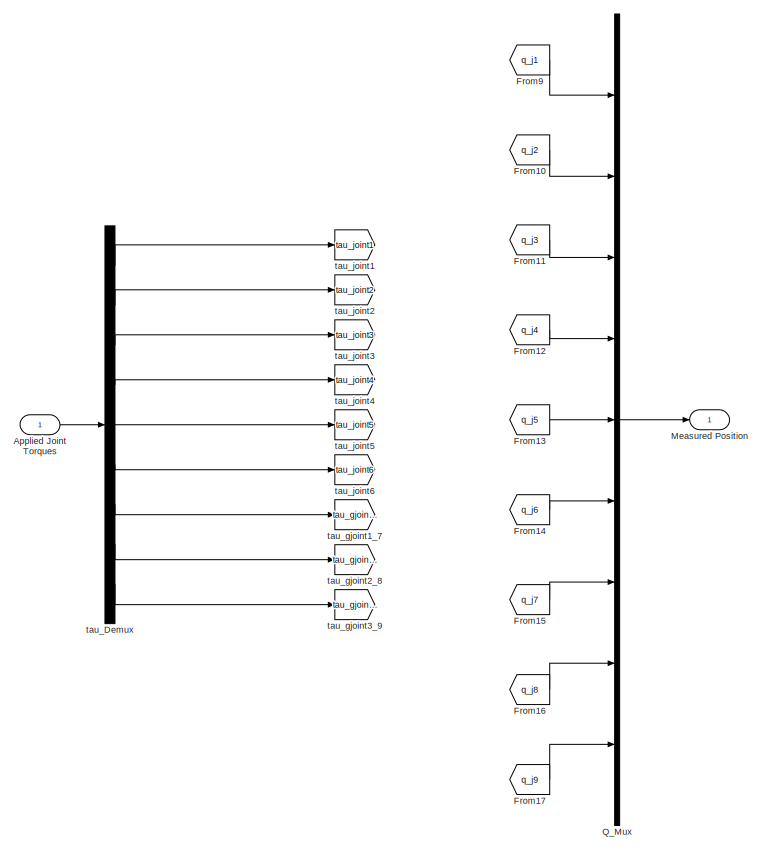
[diagram: Simscape Robot+Environment Plant/Robossembler Plant model - part 4/5, bottom center region]
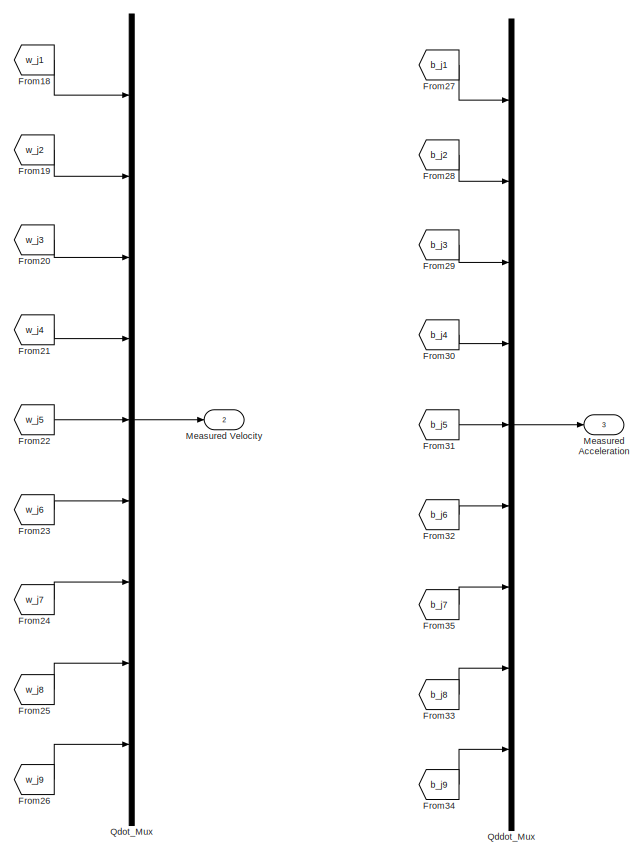
[diagram: Simscape Robot+Environment Plant/Robossembler Plant model - part 5/5, bottom right region]
BLOCK [SubSystem] Simscape Robot+Environment Plant/Robossembler Plant model
  Ports = [1, 3, 0, 0, 0, 1, 2]
  RequestExecContextInheritance = off
BLOCK [Inport] Simscape Robot+Environment Plant/Robossembler Plant model/Applied Joint Torques
BLOCK [From] Simscape Robot+Environment Plant/Robossembler Plant model/From
  GotoTag = tau_joint1
BLOCK [From] Simscape Robot+Environment Plant/Robossembler Plant model/From1
  GotoTag = tau_joint2
BLOCK [From] Simscape Robot+Environment Plant/Robossembler Plant model/From10
  GotoTag = q_j2
BLOCK [From] Simscape Robot+Environment Plant/Robossembler Plant model/From11
  GotoTag = q_j3
BLOCK [From] Simscape Robot+Environment Plant/Robossembler Plant model/From12
  GotoTag = q_j4
BLOCK [From] Simscape Robot+Environment Plant/Robossembler Plant model/From13
  GotoTag = q_j5
BLOCK [From] Simscape Robot+Environment Plant/Robossembler Plant model/From14
  GotoTag = q_j6
BLOCK [From] Simscape Robot+Environment Plant/Robossembler Plant model/From15
  GotoTag = q_j7
BLOCK [From] Simscape Robot+Environment Plant/Robossembler Plant model/From16
  GotoTag = q_j8
BLOCK [From] Simscape Robot+Environment Plant/Robossembler Plant model/From17
  GotoTag = q_j9
BLOCK [From] Simscape Robot+Environment Plant/Robossembler Plant model/From18
  GotoTag = w_j1
BLOCK [From] Simscape Robot+Environment Plant/Robossembler Plant model/From19
  GotoTag = w_j2
BLOCK [From] Simscape Robot+Environment Plant/Robossembler Plant model/From2
  GotoTag = tau_joint3
BLOCK [From] Simscape Robot+Environment Plant/Robossembler Plant model/From20
  GotoTag = w_j3
BLOCK [From] Simscape Robot+Environment Plant/Robossembler Plant model/From21
  GotoTag = w_j4
BLOCK [From] Simscape Robot+Environment Plant/Robossembler Plant model/From22
  GotoTag = w_j5
BLOCK [From] Simscape Robot+Environment Plant/Robossembler Plant model/From23
  GotoTag = w_j6
BLOCK [From] Simscape Robot+Environment Plant/Robossembler Plant model/From24
  GotoTag = w_j7
BLOCK [From] Simscape Robot+Environment Plant/Robossembler Plant model/From25
  GotoTag = w_j8
BLOCK [From] Simscape Robot+Environment Plant/Robossembler Plant model/From26
  GotoTag = w_j9
BLOCK [From] Simscape Robot+Environment Plant/Robossembler Plant model/From27
  GotoTag = b_j1
BLOCK [From] Simscape Robot+Environment Plant/Robossembler Plant model/From28
  GotoTag = b_j2
BLOCK [From] Simscape Robot+Environment Plant/Robossembler Plant model/From29
  GotoTag = b_j3
BLOCK [From] Simscape Robot+Environment Plant/Robossembler Plant model/From3
  GotoTag = tau_joint4
BLOCK [From] Simscape Robot+Environment Plant/Robossembler Plant model/From30
  GotoTag = b_j4
BLOCK [From] Simscape Robot+Environment Plant/Robossembler Plant model/From31
  GotoTag = b_j5
BLOCK [From] Simscape Robot+Environment Plant/Robossembler Plant model/From32
  GotoTag = b_j6
BLOCK [From] Simscape Robot+Environment Plant/Robossembler Plant model/From33
  GotoTag = b_j8
BLOCK [From] Simscape Robot+Environment Plant/Robossembler Plant model/From34
  GotoTag = b_j9
BLOCK [From] Simscape Robot+Environment Plant/Robossembler Plant model/From35
  GotoTag = b_j7
BLOCK [From] Simscape Robot+Environment Plant/Robossembler Plant model/From4
  GotoTag = tau_joint5
BLOCK [From] Simscape Robot+Environment Plant/Robossembler Plant model/From5
  GotoTag = tau_joint6
BLOCK [From] Simscape Robot+Environment Plant/Robossembler Plant model/From6
  GotoTag = tau_gjoint1_7
BLOCK [From] Simscape Robot+Environment Plant/Robossembler Plant model/From7
  GotoTag = tau_gjoint2_8
BLOCK [From] Simscape Robot+Environment Plant/Robossembler Plant model/From8
  GotoTag = tau_gjoint3_9
BLOCK [From] Simscape Robot+Environment Plant/Robossembler Plant model/From9
  GotoTag = q_j1
BLOCK [Goto] Simscape Robot+Environment Plant/Robossembler Plant model/Goto
  GotoTag = q_j1
BLOCK [Goto] Simscape Robot+Environment Plant/Robossembler Plant model/Goto1
  GotoTag = w_j1
BLOCK [Goto] Simscape Robot+Environment Plant/Robossembler Plant model/Goto10
  GotoTag = w_j4
BLOCK [Goto] Simscape Robot+Environment Plant/Robossembler Plant model/Goto11
  GotoTag = b_j4
BLOCK [Goto] Simscape Robot+Environment Plant/Robossembler Plant model/Goto12
  GotoTag = q_j5
BLOCK [Goto] Simscape Robot+Environment Plant/Robossembler Plant model/Goto13
  GotoTag = w_j5
BLOCK [Goto] Simscape Robot+Environment Plant/Robossembler Plant model/Goto14
  GotoTag = b_j5
BLOCK [Goto] Simscape Robot+Environment Plant/Robossembler Plant model/Goto15
  GotoTag = q_j6
BLOCK [Goto] Simscape Robot+Environment Plant/Robossembler Plant model/Goto16
  GotoTag = w_j6
BLOCK [Goto] Simscape Robot+Environment Plant/Robossembler Plant model/Goto17
  GotoTag = b_j6
BLOCK [Goto] Simscape Robot+Environment Plant/Robossembler Plant model/Goto18
  GotoTag = q_j7
BLOCK [Goto] Simscape Robot+Environment Plant/Robossembler Plant model/Goto19
  GotoTag = w_j7
BLOCK [Goto] Simscape Robot+Environment Plant/Robossembler Plant model/Goto2
  GotoTag = b_j1
BLOCK [Goto] Simscape Robot+Environment Plant/Robossembler Plant model/Goto20
  GotoTag = b_j7
BLOCK [Goto] Simscape Robot+Environment Plant/Robossembler Plant model/Goto21
  GotoTag = q_j8
BLOCK [Goto] Simscape Robot+Environment Plant/Robossembler Plant model/Goto22
  GotoTag = w_j8
BLOCK [Goto] Simscape Robot+Environment Plant/Robossembler Plant model/Goto23
  GotoTag = b_j8
BLOCK [Goto] Simscape Robot+Environment Plant/Robossembler Plant model/Goto24
  GotoTag = q_j9
BLOCK [Goto] Simscape Robot+Environment Plant/Robossembler Plant model/Goto25
  GotoTag = w_j9
BLOCK [Goto] Simscape Robot+Environment Plant/Robossembler Plant model/Goto26
  GotoTag = b_j9
BLOCK [Goto] Simscape Robot+Environment Plant/Robossembler Plant model/Goto3
  GotoTag = q_j2
BLOCK [Goto] Simscape Robot+Environment Plant/Robossembler Plant model/Goto4
  GotoTag = w_j2
BLOCK [Goto] Simscape Robot+Environment Plant/Robossembler Plant model/Goto5
  GotoTag = b_j2
BLOCK [Goto] Simscape Robot+Environment Plant/Robossembler Plant model/Goto6
  GotoTag = q_j3
BLOCK [Goto] Simscape Robot+Environment Plant/Robossembler Plant model/Goto7
  GotoTag = w_j3
BLOCK [Goto] Simscape Robot+Environment Plant/Robossembler Plant model/Goto8
  GotoTag = b_j3
BLOCK [Goto] Simscape Robot+Environment Plant/Robossembler Plant model/Goto9
  GotoTag = q_j4
BLOCK [PMIOPort] Simscape Robot+Environment Plant/Robossembler Plant model/Left Gripper Frame
  Side = Right
BLOCK [Outport] Simscape Robot+Environment Plant/Robossembler Plant model/Measured Acceleration
  Port = 3
BLOCK [Outport] Simscape Robot+Environment Plant/Robossembler Plant model/Measured Position
BLOCK [Outport] Simscape Robot+Environment Plant/Robossembler Plant model/Measured Velocity
  Port = 2
BLOCK [Reference] Simscape Robot+Environment Plant/Robossembler Plant model/PS-Simulink Converter  REF=nesl_utility/PS-Simulink
Converter
  Ports = [0, 1, 0, 0, 0, 1]
  SourceBlock = nesl_utility/PS-Simulink\nConverter
  SourceProductBaseCode = SS,PW,VE
  SourceType = PS-Simulink\nConverter
BLOCK [Reference] Simscape Robot+Environment Plant/Robossembler Plant model/PS-Simulink Converter1  REF=nesl_utility/PS-Simulink
Converter
  Ports = [0, 1, 0, 0, 0, 1]
  SourceBlock = nesl_utility/PS-Simulink\nConverter
  SourceProductBaseCode = SS,PW,VE
  SourceType = PS-Simulink\nConverter
BLOCK [Reference] Simscape Robot+Environment Plant/Robossembler Plant model/PS-Simulink Converter10  REF=nesl_utility/PS-Simulink
Converter
  Ports = [0, 1, 0, 0, 0, 1]
  SourceBlock = nesl_utility/PS-Simulink\nConverter
  SourceProductBaseCode = SS,PW,VE
  SourceType = PS-Simulink\nConverter
BLOCK [Reference] Simscape Robot+Environment Plant/Robossembler Plant model/PS-Simulink Converter11  REF=nesl_utility/PS-Simulink
Converter
  Ports = [0, 1, 0, 0, 0, 1]
  SourceBlock = nesl_utility/PS-Simulink\nConverter
  SourceProductBaseCode = SS,PW,VE
  SourceType = PS-Simulink\nConverter
BLOCK [Reference] Simscape Robot+Environment Plant/Robossembler Plant model/PS-Simulink Converter12  REF=nesl_utility/PS-Simulink
Converter
  Ports = [0, 1, 0, 0, 0, 1]
  SourceBlock = nesl_utility/PS-Simulink\nConverter
  SourceProductBaseCode = SS,PW,VE
  SourceType = PS-Simulink\nConverter
BLOCK [Reference] Simscape Robot+Environment Plant/Robossembler Plant model/PS-Simulink Converter13  REF=nesl_utility/PS-Simulink
Converter
  Ports = [0, 1, 0, 0, 0, 1]
  SourceBlock = nesl_utility/PS-Simulink\nConverter
  SourceProductBaseCode = SS,PW,VE
  SourceType = PS-Simulink\nConverter
BLOCK [Reference] Simscape Robot+Environment Plant/Robossembler Plant model/PS-Simulink Converter14  REF=nesl_utility/PS-Simulink
Converter
  Ports = [0, 1, 0, 0, 0, 1]
  SourceBlock = nesl_utility/PS-Simulink\nConverter
  SourceProductBaseCode = SS,PW,VE
  SourceType = PS-Simulink\nConverter
BLOCK [Reference] Simscape Robot+Environment Plant/Robossembler Plant model/PS-Simulink Converter15  REF=nesl_utility/PS-Simulink
Converter
  Ports = [0, 1, 0, 0, 0, 1]
  SourceBlock = nesl_utility/PS-Simulink\nConverter
  SourceProductBaseCode = SS,PW,VE
  SourceType = PS-Simulink\nConverter
BLOCK [Reference] Simscape Robot+Environment Plant/Robossembler Plant model/PS-Simulink Converter16  REF=nesl_utility/PS-Simulink
Converter
  Ports = [0, 1, 0, 0, 0, 1]
  SourceBlock = nesl_utility/PS-Simulink\nConverter
  SourceProductBaseCode = SS,PW,VE
  SourceType = PS-Simulink\nConverter
BLOCK [Reference] Simscape Robot+Environment Plant/Robossembler Plant model/PS-Simulink Converter17  REF=nesl_utility/PS-Simulink
Converter
  Ports = [0, 1, 0, 0, 0, 1]
  SourceBlock = nesl_utility/PS-Simulink\nConverter
  SourceProductBaseCode = SS,PW,VE
  SourceType = PS-Simulink\nConverter
BLOCK [Reference] Simscape Robot+Environment Plant/Robossembler Plant model/PS-Simulink Converter18  REF=nesl_utility/PS-Simulink
Converter
  Ports = [0, 1, 0, 0, 0, 1]
  SourceBlock = nesl_utility/PS-Simulink\nConverter
  SourceProductBaseCode = SS,PW,VE
  SourceType = PS-Simulink\nConverter
BLOCK [Reference] Simscape Robot+Environment Plant/Robossembler Plant model/PS-Simulink Converter19  REF=nesl_utility/PS-Simulink
Converter
  Ports = [0, 1, 0, 0, 0, 1]
  SourceBlock = nesl_utility/PS-Simulink\nConverter
  SourceProductBaseCode = SS,PW,VE
  SourceType = PS-Simulink\nConverter
BLOCK [Reference] Simscape Robot+Environment Plant/Robossembler Plant model/PS-Simulink Converter2  REF=nesl_utility/PS-Simulink
Converter
  Ports = [0, 1, 0, 0, 0, 1]
  SourceBlock = nesl_utility/PS-Simulink\nConverter
  SourceProductBaseCode = SS,PW,VE
  SourceType = PS-Simulink\nConverter
BLOCK [Reference] Simscape Robot+Environment Plant/Robossembler Plant model/PS-Simulink Converter20  REF=nesl_utility/PS-Simulink
Converter
  Ports = [0, 1, 0, 0, 0, 1]
  SourceBlock = nesl_utility/PS-Simulink\nConverter
  SourceProductBaseCode = SS,PW,VE
  SourceType = PS-Simulink\nConverter
BLOCK [Reference] Simscape Robot+Environment Plant/Robossembler Plant model/PS-Simulink Converter21  REF=nesl_utility/PS-Simulink
Converter
  Ports = [0, 1, 0, 0, 0, 1]
  SourceBlock = nesl_utility/PS-Simulink\nConverter
  SourceProductBaseCode = SS,PW,VE
  SourceType = PS-Simulink\nConverter
BLOCK [Reference] Simscape Robot+Environment Plant/Robossembler Plant model/PS-Simulink Converter22  REF=nesl_utility/PS-Simulink
Converter
  Ports = [0, 1, 0, 0, 0, 1]
  SourceBlock = nesl_utility/PS-Simulink\nConverter
  SourceProductBaseCode = SS,PW,VE
  SourceType = PS-Simulink\nConverter
BLOCK [Reference] Simscape Robot+Environment Plant/Robossembler Plant model/PS-Simulink Converter23  REF=nesl_utility/PS-Simulink
Converter
  Ports = [0, 1, 0, 0, 0, 1]
  SourceBlock = nesl_utility/PS-Simulink\nConverter
  SourceProductBaseCode = SS,PW,VE
  SourceType = PS-Simulink\nConverter
BLOCK [Reference] Simscape Robot+Environment Plant/Robossembler Plant model/PS-Simulink Converter24  REF=nesl_utility/PS-Simulink
Converter
  Ports = [0, 1, 0, 0, 0, 1]
  SourceBlock = nesl_utility/PS-Simulink\nConverter
  SourceProductBaseCode = SS,PW,VE
  SourceType = PS-Simulink\nConverter
BLOCK [Reference] Simscape Robot+Environment Plant/Robossembler Plant model/PS-Simulink Converter25  REF=nesl_utility/PS-Simulink
Converter
  Ports = [0, 1, 0, 0, 0, 1]
  SourceBlock = nesl_utility/PS-Simulink\nConverter
  SourceProductBaseCode = SS,PW,VE
  SourceType = PS-Simulink\nConverter
BLOCK [Reference] Simscape Robot+Environment Plant/Robossembler Plant model/PS-Simulink Converter26  REF=nesl_utility/PS-Simulink
Converter
  Ports = [0, 1, 0, 0, 0, 1]
  SourceBlock = nesl_utility/PS-Simulink\nConverter
  SourceProductBaseCode = SS,PW,VE
  SourceType = PS-Simulink\nConverter
BLOCK [Reference] Simscape Robot+Environment Plant/Robossembler Plant model/PS-Simulink Converter3  REF=nesl_utility/PS-Simulink
Converter
  Ports = [0, 1, 0, 0, 0, 1]
  SourceBlock = nesl_utility/PS-Simulink\nConverter
  SourceProductBaseCode = SS,PW,VE
  SourceType = PS-Simulink\nConverter
BLOCK [Reference] Simscape Robot+Environment Plant/Robossembler Plant model/PS-Simulink Converter4  REF=nesl_utility/PS-Simulink
Converter
  Ports = [0, 1, 0, 0, 0, 1]
  SourceBlock = nesl_utility/PS-Simulink\nConverter
  SourceProductBaseCode = SS,PW,VE
  SourceType = PS-Simulink\nConverter
BLOCK [Reference] Simscape Robot+Environment Plant/Robossembler Plant model/PS-Simulink Converter5  REF=nesl_utility/PS-Simulink
Converter
  Ports = [0, 1, 0, 0, 0, 1]
  SourceBlock = nesl_utility/PS-Simulink\nConverter
  SourceProductBaseCode = SS,PW,VE
  SourceType = PS-Simulink\nConverter
BLOCK [Reference] Simscape Robot+Environment Plant/Robossembler Plant model/PS-Simulink Converter6  REF=nesl_utility/PS-Simulink
Converter
  Ports = [0, 1, 0, 0, 0, 1]
  SourceBlock = nesl_utility/PS-Simulink\nConverter
  SourceProductBaseCode = SS,PW,VE
  SourceType = PS-Simulink\nConverter
BLOCK [Reference] Simscape Robot+Environment Plant/Robossembler Plant model/PS-Simulink Converter7  REF=nesl_utility/PS-Simulink
Converter
  Ports = [0, 1, 0, 0, 0, 1]
  SourceBlock = nesl_utility/PS-Simulink\nConverter
  SourceProductBaseCode = SS,PW,VE
  SourceType = PS-Simulink\nConverter
BLOCK [Reference] Simscape Robot+Environment Plant/Robossembler Plant model/PS-Simulink Converter8  REF=nesl_utility/PS-Simulink
Converter
  Ports = [0, 1, 0, 0, 0, 1]
  SourceBlock = nesl_utility/PS-Simulink\nConverter
  SourceProductBaseCode = SS,PW,VE
  SourceType = PS-Simulink\nConverter
BLOCK [Reference] Simscape Robot+Environment Plant/Robossembler Plant model/PS-Simulink Converter9  REF=nesl_utility/PS-Simulink
Converter
  Ports = [0, 1, 0, 0, 0, 1]
  SourceBlock = nesl_utility/PS-Simulink\nConverter
  SourceProductBaseCode = SS,PW,VE
  SourceType = PS-Simulink\nConverter
BLOCK [Mux] Simscape Robot+Environment Plant/Robossembler Plant model/Q_Mux
  DisplayOption = bar
  Inputs = 9
  Ports = [9, 1]
BLOCK [Mux] Simscape Robot+Environment Plant/Robossembler Plant model/Qddot_Mux
  DisplayOption = bar
  Inputs = 9
  Ports = [9, 1]
BLOCK [Mux] Simscape Robot+Environment Plant/Robossembler Plant model/Qdot_Mux
  DisplayOption = bar
  Inputs = 9
  Ports = [9, 1]
BLOCK [PMIOPort] Simscape Robot+Environment Plant/Robossembler Plant model/Right Gripper Frame
  Port = 2
  Side = Right
BLOCK [Reference] Simscape Robot+Environment Plant/Robossembler Plant model/Simulink-PS Converter  REF=nesl_utility/Simulink-PS
Converter
  Ports = [1, 0, 0, 0, 0, 0, 1]
  SourceBlock = nesl_utility/Simulink-PS\nConverter
  SourceProductBaseCode = SS,PW,VE
  SourceType = Simulink-PS\nConverter
BLOCK [Reference] Simscape Robot+Environment Plant/Robossembler Plant model/Simulink-PS Converter1  REF=nesl_utility/Simulink-PS
Converter
  Ports = [1, 0, 0, 0, 0, 0, 1]
  SourceBlock = nesl_utility/Simulink-PS\nConverter
  SourceProductBaseCode = SS,PW,VE
  SourceType = Simulink-PS\nConverter
BLOCK [Reference] Simscape Robot+Environment Plant/Robossembler Plant model/Simulink-PS Converter2  REF=nesl_utility/Simulink-PS
Converter
  Ports = [1, 0, 0, 0, 0, 0, 1]
  SourceBlock = nesl_utility/Simulink-PS\nConverter
  SourceProductBaseCode = SS,PW,VE
  SourceType = Simulink-PS\nConverter
BLOCK [Reference] Simscape Robot+Environment Plant/Robossembler Plant model/Simulink-PS Converter3  REF=nesl_utility/Simulink-PS
Converter
  Ports = [1, 0, 0, 0, 0, 0, 1]
  SourceBlock = nesl_utility/Simulink-PS\nConverter
  SourceProductBaseCode = SS,PW,VE
  SourceType = Simulink-PS\nConverter
BLOCK [Reference] Simscape Robot+Environment Plant/Robossembler Plant model/Simulink-PS Converter4  REF=nesl_utility/Simulink-PS
Converter
  Ports = [1, 0, 0, 0, 0, 0, 1]
  SourceBlock = nesl_utility/Simulink-PS\nConverter
  SourceProductBaseCode = SS,PW,VE
  SourceType = Simulink-PS\nConverter
BLOCK [Reference] Simscape Robot+Environment Plant/Robossembler Plant model/Simulink-PS Converter5  REF=nesl_utility/Simulink-PS
Converter
  Ports = [1, 0, 0, 0, 0, 0, 1]
  SourceBlock = nesl_utility/Simulink-PS\nConverter
  SourceProductBaseCode = SS,PW,VE
  SourceType = Simulink-PS\nConverter
BLOCK [Reference] Simscape Robot+Environment Plant/Robossembler Plant model/Simulink-PS Converter6  REF=nesl_utility/Simulink-PS
Converter
  Ports = [1, 0, 0, 0, 0, 0, 1]
  SourceBlock = nesl_utility/Simulink-PS\nConverter
  SourceProductBaseCode = SS,PW,VE
  SourceType = Simulink-PS\nConverter
BLOCK [Reference] Simscape Robot+Environment Plant/Robossembler Plant model/Simulink-PS Converter7  REF=nesl_utility/Simulink-PS
Converter
  Ports = [1, 0, 0, 0, 0, 0, 1]
  SourceBlock = nesl_utility/Simulink-PS\nConverter
  SourceProductBaseCode = SS,PW,VE
  SourceType = Simulink-PS\nConverter
BLOCK [Reference] Simscape Robot+Environment Plant/Robossembler Plant model/Simulink-PS Converter8  REF=nesl_utility/Simulink-PS
Converter
  Ports = [1, 0, 0, 0, 0, 0, 1]
  SourceBlock = nesl_utility/Simulink-PS\nConverter
  SourceProductBaseCode = SS,PW,VE
  SourceType = Simulink-PS\nConverter
BLOCK [PMIOPort] Simscape Robot+Environment Plant/Robossembler Plant model/World Frame
  NameLocation = top
  Port = 3
  Side = Left
BLOCK [SubSystem] Simscape Robot+Environment Plant/Robossembler Plant model/base_link
  Ports = [0, 0, 0, 0, 0, 1, 1]
  RequestExecContextInheritance = off
BLOCK [PMIOPort] Simscape Robot+Environment Plant/Robossembler Plant model/base_link/F
  Side = Left
BLOCK [PMIOPort] Simscape Robot+Environment Plant/Robossembler Plant model/base_link/F1
  Port = 2
  Side = Right
BLOCK [Reference] Simscape Robot+Environment Plant/Robossembler Plant model/base_link/Inertia  REF=sm_lib/Body Elements/Inertia
  Ports = [0, 0, 0, 0, 0, 0, 1]
  SourceBlock = sm_lib/Body Elements/Inertia
  SourceProductBaseCode = MS
  SourceType = Inertia
BLOCK [Reference] Simscape Robot+Environment Plant/Robossembler Plant model/base_link/InertiaOriginTransform  REF=sm_lib/Frames and
Transforms/Rigid
Transform
  Ports = [0, 0, 0, 0, 0, 1, 1]
  SourceBlock = sm_lib/Frames and\nTransforms/Rigid\nTransform
  SourceProductBaseCode = MS
  SourceType = Rigid\nTransform
BLOCK [Reference] Simscape Robot+Environment Plant/Robossembler Plant model/base_link/ReferenceFrame  REF=sm_lib/Frames and
Transforms/Reference
Frame
  Ports = [0, 0, 0, 0, 0, 0, 1]
  SourceBlock = sm_lib/Frames and\nTransforms/Reference\nFrame
  SourceProductBaseCode = MS
  SourceType = Reference\nFrame
BLOCK [Reference] Simscape Robot+Environment Plant/Robossembler Plant model/base_link/Visual  REF=sm_lib/Body Elements/File Solid
  Ports = [0, 0, 0, 0, 0, 0, 1]
  SourceBlock = sm_lib/Body Elements/File Solid
  SourceProductBaseCode = MS
  SourceType = File Solid
BLOCK [Reference] Simscape Robot+Environment Plant/Robossembler Plant model/base_link/VisualOriginTransform  REF=sm_lib/Frames and
Transforms/Rigid
Transform
  Ports = [0, 0, 0, 0, 0, 1, 1]
  SourceBlock = sm_lib/Frames and\nTransforms/Rigid\nTransform
  SourceProductBaseCode = MS
  SourceType = Rigid\nTransform
BLOCK [Reference] Simscape Robot+Environment Plant/Robossembler Plant model/base_link/joint1_AxisTransform  REF=sm_lib/Frames and
Transforms/Rigid
Transform
  Ports = [0, 0, 0, 0, 0, 1, 1]
  SourceBlock = sm_lib/Frames and\nTransforms/Rigid\nTransform
  SourceProductBaseCode = MS
  SourceType = Rigid\nTransform
BLOCK [Reference] Simscape Robot+Environment Plant/Robossembler Plant model/base_link/joint1_OriginTransform  REF=sm_lib/Frames and
Transforms/Rigid
Transform
  Ports = [0, 0, 0, 0, 0, 1, 1]
  SourceBlock = sm_lib/Frames and\nTransforms/Rigid\nTransform
  SourceProductBaseCode = MS
  SourceType = Rigid\nTransform
BLOCK [Reference] Simscape Robot+Environment Plant/Robossembler Plant model/gjoint1  REF=sm_lib/Joints/Revolute Joint
  Ports = [0, 0, 0, 0, 0, 2, 4]
  SourceBlock = sm_lib/Joints/Revolute Joint
  SourceProductBaseCode = MS
  SourceType = Revolute Joint
BLOCK [Reference] Simscape Robot+Environment Plant/Robossembler Plant model/gjoint2  REF=sm_lib/Joints/Prismatic
Joint
  Ports = [0, 0, 0, 0, 0, 2, 4]
  SourceBlock = sm_lib/Joints/Prismatic\nJoint
  SourceProductBaseCode = MS
  SourceType = Prismatic\nJoint
BLOCK [Reference] Simscape Robot+Environment Plant/Robossembler Plant model/gjoint3  REF=sm_lib/Joints/Prismatic
Joint
  Ports = [0, 0, 0, 0, 0, 2, 4]
  SourceBlock = sm_lib/Joints/Prismatic\nJoint
  SourceProductBaseCode = MS
  SourceType = Prismatic\nJoint
BLOCK [SubSystem] Simscape Robot+Environment Plant/Robossembler Plant model/glink1
  Ports = [0, 0, 0, 0, 0, 1, 2]
  RequestExecContextInheritance = off
BLOCK [PMIOPort] Simscape Robot+Environment Plant/Robossembler Plant model/glink1/F
  Side = Left
BLOCK [PMIOPort] Simscape Robot+Environment Plant/Robossembler Plant model/glink1/F1
  Port = 3
  Side = Right
BLOCK [PMIOPort] Simscape Robot+Environment Plant/Robossembler Plant model/glink1/F2
  Port = 2
  Side = Right
BLOCK [Reference] Simscape Robot+Environment Plant/Robossembler Plant model/glink1/Inertia  REF=sm_lib/Body Elements/Inertia
  Ports = [0, 0, 0, 0, 0, 0, 1]
  SourceBlock = sm_lib/Body Elements/Inertia
  SourceProductBaseCode = MS
  SourceType = Inertia
BLOCK [Reference] Simscape Robot+Environment Plant/Robossembler Plant model/glink1/InertiaOriginTransform  REF=sm_lib/Frames and
Transforms/Rigid
Transform
  Ports = [0, 0, 0, 0, 0, 1, 1]
  SourceBlock = sm_lib/Frames and\nTransforms/Rigid\nTransform
  SourceProductBaseCode = MS
  SourceType = Rigid\nTransform
BLOCK [Reference] Simscape Robot+Environment Plant/Robossembler Plant model/glink1/ReferenceFrame  REF=sm_lib/Frames and
Transforms/Reference
Frame
  Ports = [0, 0, 0, 0, 0, 0, 1]
  SourceBlock = sm_lib/Frames and\nTransforms/Reference\nFrame
  SourceProductBaseCode = MS
  SourceType = Reference\nFrame
BLOCK [Reference] Simscape Robot+Environment Plant/Robossembler Plant model/glink1/Visual  REF=sm_lib/Body Elements/File Solid
  Ports = [0, 0, 0, 0, 0, 0, 1]
  SourceBlock = sm_lib/Body Elements/File Solid
  SourceProductBaseCode = MS
  SourceType = File Solid
BLOCK [Reference] Simscape Robot+Environment Plant/Robossembler Plant model/glink1/VisualOriginTransform  REF=sm_lib/Frames and
Transforms/Rigid
Transform
  Ports = [0, 0, 0, 0, 0, 1, 1]
  SourceBlock = sm_lib/Frames and\nTransforms/Rigid\nTransform
  SourceProductBaseCode = MS
  SourceType = Rigid\nTransform
BLOCK [Reference] Simscape Robot+Environment Plant/Robossembler Plant model/glink1/gjoint1_AxisInvTransform  REF=sm_lib/Frames and
Transforms/Rigid
Transform
  Ports = [0, 0, 0, 0, 0, 1, 1]
  SourceBlock = sm_lib/Frames and\nTransforms/Rigid\nTransform
  SourceProductBaseCode = MS
  SourceType = Rigid\nTransform
BLOCK [Reference] Simscape Robot+Environment Plant/Robossembler Plant model/glink1/gjoint2_AxisTransform  REF=sm_lib/Frames and
Transforms/Rigid
Transform
  Ports = [0, 0, 0, 0, 0, 1, 1]
  SourceBlock = sm_lib/Frames and\nTransforms/Rigid\nTransform
  SourceProductBaseCode = MS
  SourceType = Rigid\nTransform
BLOCK [Reference] Simscape Robot+Environment Plant/Robossembler Plant model/glink1/gjoint2_AxisTransform1  REF=sm_lib/Frames and
Transforms/Rigid
Transform
  Ports = [0, 0, 0, 0, 0, 1, 1]
  SourceBlock = sm_lib/Frames and\nTransforms/Rigid\nTransform
  SourceProductBaseCode = MS
  SourceType = Rigid\nTransform
BLOCK [Reference] Simscape Robot+Environment Plant/Robossembler Plant model/glink1/gjoint2_OriginTransform  REF=sm_lib/Frames and
Transforms/Rigid
Transform
  Ports = [0, 0, 0, 0, 0, 1, 1]
  SourceBlock = sm_lib/Frames and\nTransforms/Rigid\nTransform
  SourceProductBaseCode = MS
  SourceType = Rigid\nTransform
BLOCK [Reference] Simscape Robot+Environment Plant/Robossembler Plant model/glink1/gjoint2_OriginTransform1  REF=sm_lib/Frames and
Transforms/Rigid
Transform
  Ports = [0, 0, 0, 0, 0, 1, 1]
  SourceBlock = sm_lib/Frames and\nTransforms/Rigid\nTransform
  SourceProductBaseCode = MS
  SourceType = Rigid\nTransform
BLOCK [SubSystem] Simscape Robot+Environment Plant/Robossembler Plant model/glink2
  Ports = [0, 0, 0, 0, 0, 1, 1]
  RequestExecContextInheritance = off
BLOCK [PMIOPort] Simscape Robot+Environment Plant/Robossembler Plant model/glink2/Contact Frame
  Port = 2
  Side = Right
BLOCK [PMIOPort] Simscape Robot+Environment Plant/Robossembler Plant model/glink2/F
  Side = Left
BLOCK [Reference] Simscape Robot+Environment Plant/Robossembler Plant model/glink2/Inertia  REF=sm_lib/Body Elements/Inertia
  Ports = [0, 0, 0, 0, 0, 0, 1]
  SourceBlock = sm_lib/Body Elements/Inertia
  SourceProductBaseCode = MS
  SourceType = Inertia
BLOCK [Reference] Simscape Robot+Environment Plant/Robossembler Plant model/glink2/InertiaOriginTransform  REF=sm_lib/Frames and
Transforms/Rigid
Transform
  Ports = [0, 0, 0, 0, 0, 1, 1]
  SourceBlock = sm_lib/Frames and\nTransforms/Rigid\nTransform
  SourceProductBaseCode = MS
  SourceType = Rigid\nTransform
BLOCK [Reference] Simscape Robot+Environment Plant/Robossembler Plant model/glink2/ReferenceFrame  REF=sm_lib/Frames and
Transforms/Reference
Frame
  Ports = [0, 0, 0, 0, 0, 0, 1]
  SourceBlock = sm_lib/Frames and\nTransforms/Reference\nFrame
  SourceProductBaseCode = MS
  SourceType = Reference\nFrame
BLOCK [Reference] Simscape Robot+Environment Plant/Robossembler Plant model/glink2/Visual  REF=sm_lib/Body Elements/File Solid
  Ports = [0, 0, 0, 0, 0, 0, 1]
  SourceBlock = sm_lib/Body Elements/File Solid
  SourceProductBaseCode = MS
  SourceType = File Solid
BLOCK [Reference] Simscape Robot+Environment Plant/Robossembler Plant model/glink2/VisualOriginTransform  REF=sm_lib/Frames and
Transforms/Rigid
Transform
  Ports = [0, 0, 0, 0, 0, 1, 1]
  SourceBlock = sm_lib/Frames and\nTransforms/Rigid\nTransform
  SourceProductBaseCode = MS
  SourceType = Rigid\nTransform
BLOCK [Reference] Simscape Robot+Environment Plant/Robossembler Plant model/glink2/gjoint2_AxisInvTransform  REF=sm_lib/Frames and
Transforms/Rigid
Transform
  Ports = [0, 0, 0, 0, 0, 1, 1]
  SourceBlock = sm_lib/Frames and\nTransforms/Rigid\nTransform
  SourceProductBaseCode = MS
  SourceType = Rigid\nTransform
BLOCK [SubSystem] Simscape Robot+Environment Plant/Robossembler Plant model/glink3
  Ports = [0, 0, 0, 0, 0, 1, 1]
  RequestExecContextInheritance = off
BLOCK [PMIOPort] Simscape Robot+Environment Plant/Robossembler Plant model/glink3/Contact Frame
  Port = 2
  Side = Right
BLOCK [PMIOPort] Simscape Robot+Environment Plant/Robossembler Plant model/glink3/F
  Side = Left
BLOCK [Reference] Simscape Robot+Environment Plant/Robossembler Plant model/glink3/Inertia  REF=sm_lib/Body Elements/Inertia
  Ports = [0, 0, 0, 0, 0, 0, 1]
  SourceBlock = sm_lib/Body Elements/Inertia
  SourceProductBaseCode = MS
  SourceType = Inertia
BLOCK [Reference] Simscape Robot+Environment Plant/Robossembler Plant model/glink3/InertiaOriginTransform  REF=sm_lib/Frames and
Transforms/Rigid
Transform
  Ports = [0, 0, 0, 0, 0, 1, 1]
  SourceBlock = sm_lib/Frames and\nTransforms/Rigid\nTransform
  SourceProductBaseCode = MS
  SourceType = Rigid\nTransform
BLOCK [Reference] Simscape Robot+Environment Plant/Robossembler Plant model/glink3/ReferenceFrame  REF=sm_lib/Frames and
Transforms/Reference
Frame
  Ports = [0, 0, 0, 0, 0, 0, 1]
  SourceBlock = sm_lib/Frames and\nTransforms/Reference\nFrame
  SourceProductBaseCode = MS
  SourceType = Reference\nFrame
BLOCK [Reference] Simscape Robot+Environment Plant/Robossembler Plant model/glink3/Visual  REF=sm_lib/Body Elements/File Solid
  Ports = [0, 0, 0, 0, 0, 0, 1]
  SourceBlock = sm_lib/Body Elements/File Solid
  SourceProductBaseCode = MS
  SourceType = File Solid
BLOCK [Reference] Simscape Robot+Environment Plant/Robossembler Plant model/glink3/VisualOriginTransform  REF=sm_lib/Frames and
Transforms/Rigid
Transform
  Ports = [0, 0, 0, 0, 0, 1, 1]
  SourceBlock = sm_lib/Frames and\nTransforms/Rigid\nTransform
  SourceProductBaseCode = MS
  SourceType = Rigid\nTransform
BLOCK [Reference] Simscape Robot+Environment Plant/Robossembler Plant model/glink3/gjoint2_AxisInvTransform  REF=sm_lib/Frames and
Transforms/Rigid
Transform
  Ports = [0, 0, 0, 0, 0, 1, 1]
  SourceBlock = sm_lib/Frames and\nTransforms/Rigid\nTransform
  SourceProductBaseCode = MS
  SourceType = Rigid\nTransform
BLOCK [SubSystem] Simscape Robot+Environment Plant/Robossembler Plant model/gripper_base
  Ports = [0, 0, 0, 0, 0, 1, 1]
  RequestExecContextInheritance = off
BLOCK [PMIOPort] Simscape Robot+Environment Plant/Robossembler Plant model/gripper_base/F
  Side = Left
BLOCK [PMIOPort] Simscape Robot+Environment Plant/Robossembler Plant model/gripper_base/F1
  Port = 2
  Side = Right
BLOCK [Reference] Simscape Robot+Environment Plant/Robossembler Plant model/gripper_base/Inertia  REF=sm_lib/Body Elements/Inertia
  Ports = [0, 0, 0, 0, 0, 0, 1]
  SourceBlock = sm_lib/Body Elements/Inertia
  SourceProductBaseCode = MS
  SourceType = Inertia
BLOCK [Reference] Simscape Robot+Environment Plant/Robossembler Plant model/gripper_base/InertiaOriginTransform  REF=sm_lib/Frames and
Transforms/Rigid
Transform
  Ports = [0, 0, 0, 0, 0, 1, 1]
  SourceBlock = sm_lib/Frames and\nTransforms/Rigid\nTransform
  SourceProductBaseCode = MS
  SourceType = Rigid\nTransform
BLOCK [Reference] Simscape Robot+Environment Plant/Robossembler Plant model/gripper_base/ReferenceFrame  REF=sm_lib/Frames and
Transforms/Reference
Frame
  Ports = [0, 0, 0, 0, 0, 0, 1]
  SourceBlock = sm_lib/Frames and\nTransforms/Reference\nFrame
  SourceProductBaseCode = MS
  SourceType = Reference\nFrame
BLOCK [Reference] Simscape Robot+Environment Plant/Robossembler Plant model/gripper_base/Visual  REF=sm_lib/Body Elements/File Solid
  Ports = [0, 0, 0, 0, 0, 0, 1]
  SourceBlock = sm_lib/Body Elements/File Solid
  SourceProductBaseCode = MS
  SourceType = File Solid
BLOCK [Reference] Simscape Robot+Environment Plant/Robossembler Plant model/gripper_base/VisualOriginTransform  REF=sm_lib/Frames and
Transforms/Rigid
Transform
  Ports = [0, 0, 0, 0, 0, 1, 1]
  SourceBlock = sm_lib/Frames and\nTransforms/Rigid\nTransform
  SourceProductBaseCode = MS
  SourceType = Rigid\nTransform
BLOCK [Reference] Simscape Robot+Environment Plant/Robossembler Plant model/gripper_base/gjoint1_AxisTransform  REF=sm_lib/Frames and
Transforms/Rigid
Transform
  Ports = [0, 0, 0, 0, 0, 1, 1]
  SourceBlock = sm_lib/Frames and\nTransforms/Rigid\nTransform
  SourceProductBaseCode = MS
  SourceType = Rigid\nTransform
BLOCK [Reference] Simscape Robot+Environment Plant/Robossembler Plant model/gripper_base/gjoint1_OriginTransform  REF=sm_lib/Frames and
Transforms/Rigid
Transform
  Ports = [0, 0, 0, 0, 0, 1, 1]
  SourceBlock = sm_lib/Frames and\nTransforms/Rigid\nTransform
  SourceProductBaseCode = MS
  SourceType = Rigid\nTransform
BLOCK [Reference] Simscape Robot+Environment Plant/Robossembler Plant model/joint1  REF=sm_lib/Joints/Revolute Joint
  Ports = [0, 0, 0, 0, 0, 2, 4]
  SourceBlock = sm_lib/Joints/Revolute Joint
  SourceProductBaseCode = MS
  SourceType = Revolute Joint
BLOCK [Reference] Simscape Robot+Environment Plant/Robossembler Plant model/joint2  REF=sm_lib/Joints/Revolute Joint
  Ports = [0, 0, 0, 0, 0, 2, 4]
  SourceBlock = sm_lib/Joints/Revolute Joint
  SourceProductBaseCode = MS
  SourceType = Revolute Joint
BLOCK [Reference] Simscape Robot+Environment Plant/Robossembler Plant model/joint3  REF=sm_lib/Joints/Revolute Joint
  Ports = [0, 0, 0, 0, 0, 2, 4]
  SourceBlock = sm_lib/Joints/Revolute Joint
  SourceProductBaseCode = MS
  SourceType = Revolute Joint
BLOCK [Reference] Simscape Robot+Environment Plant/Robossembler Plant model/joint4  REF=sm_lib/Joints/Revolute Joint
  Ports = [0, 0, 0, 0, 0, 2, 4]
  SourceBlock = sm_lib/Joints/Revolute Joint
  SourceProductBaseCode = MS
  SourceType = Revolute Joint
BLOCK [Reference] Simscape Robot+Environment Plant/Robossembler Plant model/joint5  REF=sm_lib/Joints/Revolute Joint
  Ports = [0, 0, 0, 0, 0, 2, 4]
  SourceBlock = sm_lib/Joints/Revolute Joint
  SourceProductBaseCode = MS
  SourceType = Revolute Joint
BLOCK [Reference] Simscape Robot+Environment Plant/Robossembler Plant model/joint6  REF=sm_lib/Joints/Revolute Joint
  Ports = [0, 0, 0, 0, 0, 2, 4]
  SourceBlock = sm_lib/Joints/Revolute Joint
  SourceProductBaseCode = MS
  SourceType = Revolute Joint
BLOCK [SubSystem] Simscape Robot+Environment Plant/Robossembler Plant model/link1
  Ports = [0, 0, 0, 0, 0, 1, 1]
  RequestExecContextInheritance = off
BLOCK [PMIOPort] Simscape Robot+Environment Plant/Robossembler Plant model/link1/F
  Side = Left
BLOCK [PMIOPort] Simscape Robot+Environment Plant/Robossembler Plant model/link1/F1
  Port = 2
  Side = Right
BLOCK [Reference] Simscape Robot+Environment Plant/Robossembler Plant model/link1/Inertia  REF=sm_lib/Body Elements/Inertia
  Ports = [0, 0, 0, 0, 0, 0, 1]
  SourceBlock = sm_lib/Body Elements/Inertia
  SourceProductBaseCode = MS
  SourceType = Inertia
BLOCK [Reference] Simscape Robot+Environment Plant/Robossembler Plant model/link1/InertiaOriginTransform  REF=sm_lib/Frames and
Transforms/Rigid
Transform
  Ports = [0, 0, 0, 0, 0, 1, 1]
  SourceBlock = sm_lib/Frames and\nTransforms/Rigid\nTransform
  SourceProductBaseCode = MS
  SourceType = Rigid\nTransform
BLOCK [Reference] Simscape Robot+Environment Plant/Robossembler Plant model/link1/ReferenceFrame  REF=sm_lib/Frames and
Transforms/Reference
Frame
  Ports = [0, 0, 0, 0, 0, 0, 1]
  SourceBlock = sm_lib/Frames and\nTransforms/Reference\nFrame
  SourceProductBaseCode = MS
  SourceType = Reference\nFrame
BLOCK [Reference] Simscape Robot+Environment Plant/Robossembler Plant model/link1/Visual  REF=sm_lib/Body Elements/File Solid
  Ports = [0, 0, 0, 0, 0, 0, 1]
  SourceBlock = sm_lib/Body Elements/File Solid
  SourceProductBaseCode = MS
  SourceType = File Solid
BLOCK [Reference] Simscape Robot+Environment Plant/Robossembler Plant model/link1/VisualOriginTransform  REF=sm_lib/Frames and
Transforms/Rigid
Transform
  Ports = [0, 0, 0, 0, 0, 1, 1]
  SourceBlock = sm_lib/Frames and\nTransforms/Rigid\nTransform
  SourceProductBaseCode = MS
  SourceType = Rigid\nTransform
BLOCK [Reference] Simscape Robot+Environment Plant/Robossembler Plant model/link1/joint1_AxisInvTransform  REF=sm_lib/Frames and
Transforms/Rigid
Transform
  Ports = [0, 0, 0, 0, 0, 1, 1]
  SourceBlock = sm_lib/Frames and\nTransforms/Rigid\nTransform
  SourceProductBaseCode = MS
  SourceType = Rigid\nTransform
BLOCK [Reference] Simscape Robot+Environment Plant/Robossembler Plant model/link1/joint2_AxisTransform  REF=sm_lib/Frames and
Transforms/Rigid
Transform
  Ports = [0, 0, 0, 0, 0, 1, 1]
  SourceBlock = sm_lib/Frames and\nTransforms/Rigid\nTransform
  SourceProductBaseCode = MS
  SourceType = Rigid\nTransform
BLOCK [Reference] Simscape Robot+Environment Plant/Robossembler Plant model/link1/joint2_OriginTransform  REF=sm_lib/Frames and
Transforms/Rigid
Transform
  Ports = [0, 0, 0, 0, 0, 1, 1]
  SourceBlock = sm_lib/Frames and\nTransforms/Rigid\nTransform
  SourceProductBaseCode = MS
  SourceType = Rigid\nTransform
BLOCK [SubSystem] Simscape Robot+Environment Plant/Robossembler Plant model/link2
  Ports = [0, 0, 0, 0, 0, 1, 1]
  RequestExecContextInheritance = off
BLOCK [PMIOPort] Simscape Robot+Environment Plant/Robossembler Plant model/link2/F
  Side = Left
BLOCK [PMIOPort] Simscape Robot+Environment Plant/Robossembler Plant model/link2/F1
  Port = 2
  Side = Right
BLOCK [Reference] Simscape Robot+Environment Plant/Robossembler Plant model/link2/Inertia  REF=sm_lib/Body Elements/Inertia
  Ports = [0, 0, 0, 0, 0, 0, 1]
  SourceBlock = sm_lib/Body Elements/Inertia
  SourceProductBaseCode = MS
  SourceType = Inertia
BLOCK [Reference] Simscape Robot+Environment Plant/Robossembler Plant model/link2/InertiaOriginTransform  REF=sm_lib/Frames and
Transforms/Rigid
Transform
  Ports = [0, 0, 0, 0, 0, 1, 1]
  SourceBlock = sm_lib/Frames and\nTransforms/Rigid\nTransform
  SourceProductBaseCode = MS
  SourceType = Rigid\nTransform
BLOCK [Reference] Simscape Robot+Environment Plant/Robossembler Plant model/link2/ReferenceFrame  REF=sm_lib/Frames and
Transforms/Reference
Frame
  Ports = [0, 0, 0, 0, 0, 0, 1]
  SourceBlock = sm_lib/Frames and\nTransforms/Reference\nFrame
  SourceProductBaseCode = MS
  SourceType = Reference\nFrame
BLOCK [Reference] Simscape Robot+Environment Plant/Robossembler Plant model/link2/Visual  REF=sm_lib/Body Elements/File Solid
  Ports = [0, 0, 0, 0, 0, 0, 1]
  SourceBlock = sm_lib/Body Elements/File Solid
  SourceProductBaseCode = MS
  SourceType = File Solid
BLOCK [Reference] Simscape Robot+Environment Plant/Robossembler Plant model/link2/VisualOriginTransform  REF=sm_lib/Frames and
Transforms/Rigid
Transform
  Ports = [0, 0, 0, 0, 0, 1, 1]
  SourceBlock = sm_lib/Frames and\nTransforms/Rigid\nTransform
  SourceProductBaseCode = MS
  SourceType = Rigid\nTransform
BLOCK [Reference] Simscape Robot+Environment Plant/Robossembler Plant model/link2/joint2_AxisInvTransform  REF=sm_lib/Frames and
Transforms/Rigid
Transform
  Ports = [0, 0, 0, 0, 0, 1, 1]
  SourceBlock = sm_lib/Frames and\nTransforms/Rigid\nTransform
  SourceProductBaseCode = MS
  SourceType = Rigid\nTransform
BLOCK [Reference] Simscape Robot+Environment Plant/Robossembler Plant model/link2/joint3_AxisTransform  REF=sm_lib/Frames and
Transforms/Rigid
Transform
  Ports = [0, 0, 0, 0, 0, 1, 1]
  SourceBlock = sm_lib/Frames and\nTransforms/Rigid\nTransform
  SourceProductBaseCode = MS
  SourceType = Rigid\nTransform
BLOCK [Reference] Simscape Robot+Environment Plant/Robossembler Plant model/link2/joint3_OriginTransform  REF=sm_lib/Frames and
Transforms/Rigid
Transform
  Ports = [0, 0, 0, 0, 0, 1, 1]
  SourceBlock = sm_lib/Frames and\nTransforms/Rigid\nTransform
  SourceProductBaseCode = MS
  SourceType = Rigid\nTransform
BLOCK [SubSystem] Simscape Robot+Environment Plant/Robossembler Plant model/link3
  Ports = [0, 0, 0, 0, 0, 1, 1]
  RequestExecContextInheritance = off
BLOCK [PMIOPort] Simscape Robot+Environment Plant/Robossembler Plant model/link3/F
  Side = Left
BLOCK [PMIOPort] Simscape Robot+Environment Plant/Robossembler Plant model/link3/F1
  Port = 2
  Side = Right
BLOCK [Reference] Simscape Robot+Environment Plant/Robossembler Plant model/link3/Inertia  REF=sm_lib/Body Elements/Inertia
  Ports = [0, 0, 0, 0, 0, 0, 1]
  SourceBlock = sm_lib/Body Elements/Inertia
  SourceProductBaseCode = MS
  SourceType = Inertia
BLOCK [Reference] Simscape Robot+Environment Plant/Robossembler Plant model/link3/InertiaOriginTransform  REF=sm_lib/Frames and
Transforms/Rigid
Transform
  Ports = [0, 0, 0, 0, 0, 1, 1]
  SourceBlock = sm_lib/Frames and\nTransforms/Rigid\nTransform
  SourceProductBaseCode = MS
  SourceType = Rigid\nTransform
BLOCK [Reference] Simscape Robot+Environment Plant/Robossembler Plant model/link3/ReferenceFrame  REF=sm_lib/Frames and
Transforms/Reference
Frame
  Ports = [0, 0, 0, 0, 0, 0, 1]
  SourceBlock = sm_lib/Frames and\nTransforms/Reference\nFrame
  SourceProductBaseCode = MS
  SourceType = Reference\nFrame
BLOCK [Reference] Simscape Robot+Environment Plant/Robossembler Plant model/link3/Visual  REF=sm_lib/Body Elements/File Solid
  Ports = [0, 0, 0, 0, 0, 0, 1]
  SourceBlock = sm_lib/Body Elements/File Solid
  SourceProductBaseCode = MS
  SourceType = File Solid
BLOCK [Reference] Simscape Robot+Environment Plant/Robossembler Plant model/link3/VisualOriginTransform  REF=sm_lib/Frames and
Transforms/Rigid
Transform
  Ports = [0, 0, 0, 0, 0, 1, 1]
  SourceBlock = sm_lib/Frames and\nTransforms/Rigid\nTransform
  SourceProductBaseCode = MS
  SourceType = Rigid\nTransform
BLOCK [Reference] Simscape Robot+Environment Plant/Robossembler Plant model/link3/joint3_AxisInvTransform  REF=sm_lib/Frames and
Transforms/Rigid
Transform
  Ports = [0, 0, 0, 0, 0, 1, 1]
  SourceBlock = sm_lib/Frames and\nTransforms/Rigid\nTransform
  SourceProductBaseCode = MS
  SourceType = Rigid\nTransform
BLOCK [Reference] Simscape Robot+Environment Plant/Robossembler Plant model/link3/joint4_AxisTransform  REF=sm_lib/Frames and
Transforms/Rigid
Transform
  Ports = [0, 0, 0, 0, 0, 1, 1]
  SourceBlock = sm_lib/Frames and\nTransforms/Rigid\nTransform
  SourceProductBaseCode = MS
  SourceType = Rigid\nTransform
BLOCK [Reference] Simscape Robot+Environment Plant/Robossembler Plant model/link3/joint4_OriginTransform  REF=sm_lib/Frames and
Transforms/Rigid
Transform
  Ports = [0, 0, 0, 0, 0, 1, 1]
  SourceBlock = sm_lib/Frames and\nTransforms/Rigid\nTransform
  SourceProductBaseCode = MS
  SourceType = Rigid\nTransform
BLOCK [SubSystem] Simscape Robot+Environment Plant/Robossembler Plant model/link4
  Ports = [0, 0, 0, 0, 0, 1, 1]
  RequestExecContextInheritance = off
BLOCK [PMIOPort] Simscape Robot+Environment Plant/Robossembler Plant model/link4/F
  Side = Left
BLOCK [PMIOPort] Simscape Robot+Environment Plant/Robossembler Plant model/link4/F1
  Port = 2
  Side = Right
BLOCK [Reference] Simscape Robot+Environment Plant/Robossembler Plant model/link4/Inertia  REF=sm_lib/Body Elements/Inertia
  Ports = [0, 0, 0, 0, 0, 0, 1]
  SourceBlock = sm_lib/Body Elements/Inertia
  SourceProductBaseCode = MS
  SourceType = Inertia
BLOCK [Reference] Simscape Robot+Environment Plant/Robossembler Plant model/link4/InertiaOriginTransform  REF=sm_lib/Frames and
Transforms/Rigid
Transform
  Ports = [0, 0, 0, 0, 0, 1, 1]
  SourceBlock = sm_lib/Frames and\nTransforms/Rigid\nTransform
  SourceProductBaseCode = MS
  SourceType = Rigid\nTransform
BLOCK [Reference] Simscape Robot+Environment Plant/Robossembler Plant model/link4/ReferenceFrame  REF=sm_lib/Frames and
Transforms/Reference
Frame
  Ports = [0, 0, 0, 0, 0, 0, 1]
  SourceBlock = sm_lib/Frames and\nTransforms/Reference\nFrame
  SourceProductBaseCode = MS
  SourceType = Reference\nFrame
BLOCK [Reference] Simscape Robot+Environment Plant/Robossembler Plant model/link4/Visual  REF=sm_lib/Body Elements/File Solid
  Ports = [0, 0, 0, 0, 0, 0, 1]
  SourceBlock = sm_lib/Body Elements/File Solid
  SourceProductBaseCode = MS
  SourceType = File Solid
BLOCK [Reference] Simscape Robot+Environment Plant/Robossembler Plant model/link4/VisualOriginTransform  REF=sm_lib/Frames and
Transforms/Rigid
Transform
  Ports = [0, 0, 0, 0, 0, 1, 1]
  SourceBlock = sm_lib/Frames and\nTransforms/Rigid\nTransform
  SourceProductBaseCode = MS
  SourceType = Rigid\nTransform
BLOCK [Reference] Simscape Robot+Environment Plant/Robossembler Plant model/link4/joint4_AxisInvTransform  REF=sm_lib/Frames and
Transforms/Rigid
Transform
  Ports = [0, 0, 0, 0, 0, 1, 1]
  SourceBlock = sm_lib/Frames and\nTransforms/Rigid\nTransform
  SourceProductBaseCode = MS
  SourceType = Rigid\nTransform
BLOCK [Reference] Simscape Robot+Environment Plant/Robossembler Plant model/link4/joint5_AxisTransform  REF=sm_lib/Frames and
Transforms/Rigid
Transform
  Ports = [0, 0, 0, 0, 0, 1, 1]
  SourceBlock = sm_lib/Frames and\nTransforms/Rigid\nTransform
  SourceProductBaseCode = MS
  SourceType = Rigid\nTransform
BLOCK [Reference] Simscape Robot+Environment Plant/Robossembler Plant model/link4/joint5_OriginTransform  REF=sm_lib/Frames and
Transforms/Rigid
Transform
  Ports = [0, 0, 0, 0, 0, 1, 1]
  SourceBlock = sm_lib/Frames and\nTransforms/Rigid\nTransform
  SourceProductBaseCode = MS
  SourceType = Rigid\nTransform
BLOCK [SubSystem] Simscape Robot+Environment Plant/Robossembler Plant model/link5
  Ports = [0, 0, 0, 0, 0, 1, 1]
  RequestExecContextInheritance = off
BLOCK [PMIOPort] Simscape Robot+Environment Plant/Robossembler Plant model/link5/F
  Side = Left
BLOCK [PMIOPort] Simscape Robot+Environment Plant/Robossembler Plant model/link5/F1
  Port = 2
  Side = Right
BLOCK [Reference] Simscape Robot+Environment Plant/Robossembler Plant model/link5/Inertia  REF=sm_lib/Body Elements/Inertia
  Ports = [0, 0, 0, 0, 0, 0, 1]
  SourceBlock = sm_lib/Body Elements/Inertia
  SourceProductBaseCode = MS
  SourceType = Inertia
BLOCK [Reference] Simscape Robot+Environment Plant/Robossembler Plant model/link5/InertiaOriginTransform  REF=sm_lib/Frames and
Transforms/Rigid
Transform
  Ports = [0, 0, 0, 0, 0, 1, 1]
  SourceBlock = sm_lib/Frames and\nTransforms/Rigid\nTransform
  SourceProductBaseCode = MS
  SourceType = Rigid\nTransform
BLOCK [Reference] Simscape Robot+Environment Plant/Robossembler Plant model/link5/ReferenceFrame  REF=sm_lib/Frames and
Transforms/Reference
Frame
  Ports = [0, 0, 0, 0, 0, 0, 1]
  SourceBlock = sm_lib/Frames and\nTransforms/Reference\nFrame
  SourceProductBaseCode = MS
  SourceType = Reference\nFrame
BLOCK [Reference] Simscape Robot+Environment Plant/Robossembler Plant model/link5/Visual  REF=sm_lib/Body Elements/File Solid
  Ports = [0, 0, 0, 0, 0, 0, 1]
  SourceBlock = sm_lib/Body Elements/File Solid
  SourceProductBaseCode = MS
  SourceType = File Solid
BLOCK [Reference] Simscape Robot+Environment Plant/Robossembler Plant model/link5/VisualOriginTransform  REF=sm_lib/Frames and
Transforms/Rigid
Transform
  Ports = [0, 0, 0, 0, 0, 1, 1]
  SourceBlock = sm_lib/Frames and\nTransforms/Rigid\nTransform
  SourceProductBaseCode = MS
  SourceType = Rigid\nTransform
BLOCK [Reference] Simscape Robot+Environment Plant/Robossembler Plant model/link5/joint5_AxisInvTransform  REF=sm_lib/Frames and
Transforms/Rigid
Transform
  Ports = [0, 0, 0, 0, 0, 1, 1]
  SourceBlock = sm_lib/Frames and\nTransforms/Rigid\nTransform
  SourceProductBaseCode = MS
  SourceType = Rigid\nTransform
BLOCK [Reference] Simscape Robot+Environment Plant/Robossembler Plant model/link5/joint6_AxisTransform  REF=sm_lib/Frames and
Transforms/Rigid
Transform
  Ports = [0, 0, 0, 0, 0, 1, 1]
  SourceBlock = sm_lib/Frames and\nTransforms/Rigid\nTransform
  SourceProductBaseCode = MS
  SourceType = Rigid\nTransform
BLOCK [Reference] Simscape Robot+Environment Plant/Robossembler Plant model/link5/joint6_OriginTransform  REF=sm_lib/Frames and
Transforms/Rigid
Transform
  Ports = [0, 0, 0, 0, 0, 1, 1]
  SourceBlock = sm_lib/Frames and\nTransforms/Rigid\nTransform
  SourceProductBaseCode = MS
  SourceType = Rigid\nTransform
BLOCK [SubSystem] Simscape Robot+Environment Plant/Robossembler Plant model/link6
  Ports = [0, 0, 0, 0, 0, 1, 1]
  RequestExecContextInheritance = off
BLOCK [PMIOPort] Simscape Robot+Environment Plant/Robossembler Plant model/link6/F
  Side = Left
BLOCK [PMIOPort] Simscape Robot+Environment Plant/Robossembler Plant model/link6/F1
  Port = 2
  Side = Right
BLOCK [Reference] Simscape Robot+Environment Plant/Robossembler Plant model/link6/Inertia  REF=sm_lib/Body Elements/Inertia
  Ports = [0, 0, 0, 0, 0, 0, 1]
  SourceBlock = sm_lib/Body Elements/Inertia
  SourceProductBaseCode = MS
  SourceType = Inertia
BLOCK [Reference] Simscape Robot+Environment Plant/Robossembler Plant model/link6/InertiaOriginTransform  REF=sm_lib/Frames and
Transforms/Rigid
Transform
  Ports = [0, 0, 0, 0, 0, 1, 1]
  SourceBlock = sm_lib/Frames and\nTransforms/Rigid\nTransform
  SourceProductBaseCode = MS
  SourceType = Rigid\nTransform
BLOCK [Reference] Simscape Robot+Environment Plant/Robossembler Plant model/link6/ReferenceFrame  REF=sm_lib/Frames and
Transforms/Reference
Frame
  Ports = [0, 0, 0, 0, 0, 0, 1]
  SourceBlock = sm_lib/Frames and\nTransforms/Reference\nFrame
  SourceProductBaseCode = MS
  SourceType = Reference\nFrame
BLOCK [Reference] Simscape Robot+Environment Plant/Robossembler Plant model/link6/Visual  REF=sm_lib/Body Elements/File Solid
  Ports = [0, 0, 0, 0, 0, 0, 1]
  SourceBlock = sm_lib/Body Elements/File Solid
  SourceProductBaseCode = MS
  SourceType = File Solid
BLOCK [Reference] Simscape Robot+Environment Plant/Robossembler Plant model/link6/VisualOriginTransform  REF=sm_lib/Frames and
Transforms/Rigid
Transform
  Ports = [0, 0, 0, 0, 0, 1, 1]
  SourceBlock = sm_lib/Frames and\nTransforms/Rigid\nTransform
  SourceProductBaseCode = MS
  SourceType = Rigid\nTransform
BLOCK [Reference] Simscape Robot+Environment Plant/Robossembler Plant model/link6/joint6_AxisInvTransform  REF=sm_lib/Frames and
Transforms/Rigid
Transform
  Ports = [0, 0, 0, 0, 0, 1, 1]
  SourceBlock = sm_lib/Frames and\nTransforms/Rigid\nTransform
  SourceProductBaseCode = MS
  SourceType = Rigid\nTransform
BLOCK [Reference] Simscape Robot+Environment Plant/Robossembler Plant model/link6/tool_OriginTransform  REF=sm_lib/Frames and
Transforms/Rigid
Transform
  Ports = [0, 0, 0, 0, 0, 1, 1]
  SourceBlock = sm_lib/Frames and\nTransforms/Rigid\nTransform
  SourceProductBaseCode = MS
  SourceType = Rigid\nTransform
BLOCK [Demux] Simscape Robot+Environment Plant/Robossembler Plant model/tau_Demux
  Outputs = 9
  Ports = [1, 9]
BLOCK [Goto] Simscape Robot+Environment Plant/Robossembler Plant model/tau_gjoint1_7
  GotoTag = tau_gjoint1_7
BLOCK [Goto] Simscape Robot+Environment Plant/Robossembler Plant model/tau_gjoint2_8
  GotoTag = tau_gjoint2_8
BLOCK [Goto] Simscape Robot+Environment Plant/Robossembler Plant model/tau_gjoint3_9
  GotoTag = tau_gjoint3_9
BLOCK [Goto] Simscape Robot+Environment Plant/Robossembler Plant model/tau_joint1
  GotoTag = tau_joint1
BLOCK [Goto] Simscape Robot+Environment Plant/Robossembler Plant model/tau_joint2
  GotoTag = tau_joint2
BLOCK [Goto] Simscape Robot+Environment Plant/Robossembler Plant model/tau_joint3
  GotoTag = tau_joint3
BLOCK [Goto] Simscape Robot+Environment Plant/Robossembler Plant model/tau_joint4
  GotoTag = tau_joint4
BLOCK [Goto] Simscape Robot+Environment Plant/Robossembler Plant model/tau_joint5
  GotoTag = tau_joint5
BLOCK [Goto] Simscape Robot+Environment Plant/Robossembler Plant model/tau_joint6
  GotoTag = tau_joint6
BLOCK [Reference] Simscape Robot+Environment Plant/Robossembler Plant model/tool  REF=sm_lib/Joints/Weld Joint
  Ports = [0, 0, 0, 0, 0, 1, 1]
  SourceBlock = sm_lib/Joints/Weld Joint
  SourceProductBaseCode = MS
  SourceType = Weld Joint
BLOCK [SubSystem] Simscape Robot+Environment Plant/Robossembler Plant model/tool0
  NameLocation = left
  Ports = [0, 0, 0, 0, 0, 1]
  RequestExecContextInheritance = off
BLOCK [PMIOPort] Simscape Robot+Environment Plant/Robossembler Plant model/tool0/F
  Side = Left
BLOCK [Reference] Simscape Robot+Environment Plant/Robossembler Plant model/tool0/ReferenceFrame  REF=sm_lib/Frames and
Transforms/Reference
Frame
  Ports = [0, 0, 0, 0, 0, 0, 1]
  SourceBlock = sm_lib/Frames and\nTransforms/Reference\nFrame
  SourceProductBaseCode = MS
  SourceType = Reference\nFrame
BLOCK [Reference] Simscape Robot+Environment Plant/Solver Configuration  REF=nesl_utility/Solver
Configuration
  Ports = [0, 0, 0, 0, 0, 0, 1]
  SourceBlock = nesl_utility/Solver\nConfiguration
  SourceProductBaseCode = SS,PW,VE
  SourceType = Solver\nConfiguration
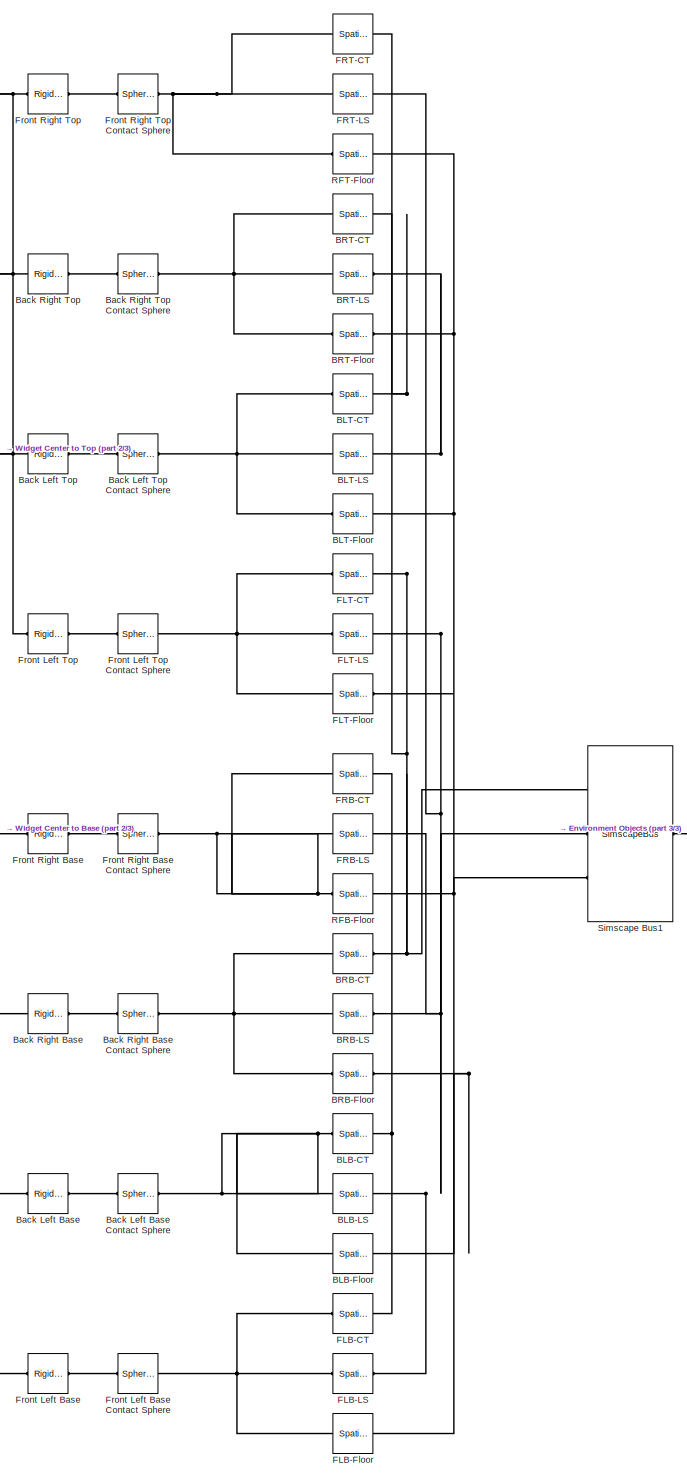
[diagram: Simscape Robot+Environment Plant/Widget to Environment Contact - part 1/3, center side, full height]
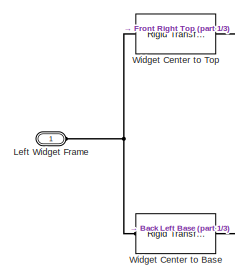
[diagram: Simscape Robot+Environment Plant/Widget to Environment Contact - part 2/3, middle left region]
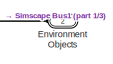
[diagram: Simscape Robot+Environment Plant/Widget to Environment Contact - part 3/3, middle right region]
BLOCK [SubSystem] Simscape Robot+Environment Plant/Widget to Environment Contact
  Ports = [0, 0, 0, 0, 0, 2]
  RequestExecContextInheritance = off
BLOCK [Reference] Simscape Robot+Environment Plant/Widget to Environment Contact/BLB-CT  REF=sm_lib/Forces and
Torques/Spatial
Contact Force
  Ports = [0, 0, 0, 0, 0, 1, 1]
  SourceBlock = sm_lib/Forces and\nTorques/Spatial\nContact Force
  SourceProductBaseCode = MS
  SourceType = Spatial\nContact Force
BLOCK [Reference] Simscape Robot+Environment Plant/Widget to Environment Contact/BLB-Floor  REF=sm_lib/Forces and
Torques/Spatial
Contact Force
  Ports = [0, 0, 0, 0, 0, 1, 1]
  SourceBlock = sm_lib/Forces and\nTorques/Spatial\nContact Force
  SourceProductBaseCode = MS
  SourceType = Spatial\nContact Force
BLOCK [Reference] Simscape Robot+Environment Plant/Widget to Environment Contact/BLB-LS  REF=sm_lib/Forces and
Torques/Spatial
Contact Force
  Ports = [0, 0, 0, 0, 0, 1, 1]
  SourceBlock = sm_lib/Forces and\nTorques/Spatial\nContact Force
  SourceProductBaseCode = MS
  SourceType = Spatial\nContact Force
BLOCK [Reference] Simscape Robot+Environment Plant/Widget to Environment Contact/BLT-CT  REF=sm_lib/Forces and
Torques/Spatial
Contact Force
  Ports = [0, 0, 0, 0, 0, 1, 1]
  SourceBlock = sm_lib/Forces and\nTorques/Spatial\nContact Force
  SourceProductBaseCode = MS
  SourceType = Spatial\nContact Force
BLOCK [Reference] Simscape Robot+Environment Plant/Widget to Environment Contact/BLT-Floor  REF=sm_lib/Forces and
Torques/Spatial
Contact Force
  Ports = [0, 0, 0, 0, 0, 1, 1]
  SourceBlock = sm_lib/Forces and\nTorques/Spatial\nContact Force
  SourceProductBaseCode = MS
  SourceType = Spatial\nContact Force
BLOCK [Reference] Simscape Robot+Environment Plant/Widget to Environment Contact/BLT-LS  REF=sm_lib/Forces and
Torques/Spatial
Contact Force
  Ports = [0, 0, 0, 0, 0, 1, 1]
  SourceBlock = sm_lib/Forces and\nTorques/Spatial\nContact Force
  SourceProductBaseCode = MS
  SourceType = Spatial\nContact Force
BLOCK [Reference] Simscape Robot+Environment Plant/Widget to Environment Contact/BRB-CT  REF=sm_lib/Forces and
Torques/Spatial
Contact Force
  Ports = [0, 0, 0, 0, 0, 1, 1]
  SourceBlock = sm_lib/Forces and\nTorques/Spatial\nContact Force
  SourceProductBaseCode = MS
  SourceType = Spatial\nContact Force
BLOCK [Reference] Simscape Robot+Environment Plant/Widget to Environment Contact/BRB-Floor  REF=sm_lib/Forces and
Torques/Spatial
Contact Force
  Ports = [0, 0, 0, 0, 0, 1, 1]
  SourceBlock = sm_lib/Forces and\nTorques/Spatial\nContact Force
  SourceProductBaseCode = MS
  SourceType = Spatial\nContact Force
BLOCK [Reference] Simscape Robot+Environment Plant/Widget to Environment Contact/BRB-LS  REF=sm_lib/Forces and
Torques/Spatial
Contact Force
  Ports = [0, 0, 0, 0, 0, 1, 1]
  SourceBlock = sm_lib/Forces and\nTorques/Spatial\nContact Force
  SourceProductBaseCode = MS
  SourceType = Spatial\nContact Force
BLOCK [Reference] Simscape Robot+Environment Plant/Widget to Environment Contact/BRT-CT  REF=sm_lib/Forces and
Torques/Spatial
Contact Force
  Ports = [0, 0, 0, 0, 0, 1, 1]
  SourceBlock = sm_lib/Forces and\nTorques/Spatial\nContact Force
  SourceProductBaseCode = MS
  SourceType = Spatial\nContact Force
BLOCK [Reference] Simscape Robot+Environment Plant/Widget to Environment Contact/BRT-Floor  REF=sm_lib/Forces and
Torques/Spatial
Contact Force
  Ports = [0, 0, 0, 0, 0, 1, 1]
  SourceBlock = sm_lib/Forces and\nTorques/Spatial\nContact Force
  SourceProductBaseCode = MS
  SourceType = Spatial\nContact Force
BLOCK [Reference] Simscape Robot+Environment Plant/Widget to Environment Contact/BRT-LS  REF=sm_lib/Forces and
Torques/Spatial
Contact Force
  Ports = [0, 0, 0, 0, 0, 1, 1]
  SourceBlock = sm_lib/Forces and\nTorques/Spatial\nContact Force
  SourceProductBaseCode = MS
  SourceType = Spatial\nContact Force
BLOCK [Reference] Simscape Robot+Environment Plant/Widget to Environment Contact/Back Left Base  REF=sm_lib/Frames and
Transforms/Rigid
Transform
  Ports = [0, 0, 0, 0, 0, 1, 1]
  SourceBlock = sm_lib/Frames and\nTransforms/Rigid\nTransform
  SourceProductBaseCode = MS
  SourceType = Rigid\nTransform
BLOCK [Reference] Simscape Robot+Environment Plant/Widget to Environment Contact/Back Left Base Contact Sphere  REF=sm_lib/Body Elements/Spherical Solid
  Ports = [0, 0, 0, 0, 0, 1, 1]
  SourceBlock = sm_lib/Body Elements/Spherical Solid
  SourceProductBaseCode = MS
  SourceType = Spherical Solid
BLOCK [Reference] Simscape Robot+Environment Plant/Widget to Environment Contact/Back Left Top  REF=sm_lib/Frames and
Transforms/Rigid
Transform
  Ports = [0, 0, 0, 0, 0, 1, 1]
  SourceBlock = sm_lib/Frames and\nTransforms/Rigid\nTransform
  SourceProductBaseCode = MS
  SourceType = Rigid\nTransform
BLOCK [Reference] Simscape Robot+Environment Plant/Widget to Environment Contact/Back Left Top Contact Sphere  REF=sm_lib/Body Elements/Spherical Solid
  Ports = [0, 0, 0, 0, 0, 1, 1]
  SourceBlock = sm_lib/Body Elements/Spherical Solid
  SourceProductBaseCode = MS
  SourceType = Spherical Solid
BLOCK [Reference] Simscape Robot+Environment Plant/Widget to Environment Contact/Back Right Base  REF=sm_lib/Frames and
Transforms/Rigid
Transform
  Ports = [0, 0, 0, 0, 0, 1, 1]
  SourceBlock = sm_lib/Frames and\nTransforms/Rigid\nTransform
  SourceProductBaseCode = MS
  SourceType = Rigid\nTransform
BLOCK [Reference] Simscape Robot+Environment Plant/Widget to Environment Contact/Back Right Base Contact Sphere  REF=sm_lib/Body Elements/Spherical Solid
  Ports = [0, 0, 0, 0, 0, 1, 1]
  SourceBlock = sm_lib/Body Elements/Spherical Solid
  SourceProductBaseCode = MS
  SourceType = Spherical Solid
BLOCK [Reference] Simscape Robot+Environment Plant/Widget to Environment Contact/Back Right Top  REF=sm_lib/Frames and
Transforms/Rigid
Transform
  Ports = [0, 0, 0, 0, 0, 1, 1]
  SourceBlock = sm_lib/Frames and\nTransforms/Rigid\nTransform
  SourceProductBaseCode = MS
  SourceType = Rigid\nTransform
BLOCK [Reference] Simscape Robot+Environment Plant/Widget to Environment Contact/Back Right Top Contact Sphere  REF=sm_lib/Body Elements/Spherical Solid
  Ports = [0, 0, 0, 0, 0, 1, 1]
  SourceBlock = sm_lib/Body Elements/Spherical Solid
  SourceProductBaseCode = MS
  SourceType = Spherical Solid
BLOCK [PMIOPort] Simscape Robot+Environment Plant/Widget to Environment Contact/Environment Objects
  Port = 2
  Side = Left
BLOCK [Reference] Simscape Robot+Environment Plant/Widget to Environment Contact/FLB-CT  REF=sm_lib/Forces and
Torques/Spatial
Contact Force
  Ports = [0, 0, 0, 0, 0, 1, 1]
  SourceBlock = sm_lib/Forces and\nTorques/Spatial\nContact Force
  SourceProductBaseCode = MS
  SourceType = Spatial\nContact Force
BLOCK [Reference] Simscape Robot+Environment Plant/Widget to Environment Contact/FLB-Floor  REF=sm_lib/Forces and
Torques/Spatial
Contact Force
  Ports = [0, 0, 0, 0, 0, 1, 1]
  SourceBlock = sm_lib/Forces and\nTorques/Spatial\nContact Force
  SourceProductBaseCode = MS
  SourceType = Spatial\nContact Force
BLOCK [Reference] Simscape Robot+Environment Plant/Widget to Environment Contact/FLB-LS  REF=sm_lib/Forces and
Torques/Spatial
Contact Force
  Ports = [0, 0, 0, 0, 0, 1, 1]
  SourceBlock = sm_lib/Forces and\nTorques/Spatial\nContact Force
  SourceProductBaseCode = MS
  SourceType = Spatial\nContact Force
BLOCK [Reference] Simscape Robot+Environment Plant/Widget to Environment Contact/FLT-CT  REF=sm_lib/Forces and
Torques/Spatial
Contact Force
  Ports = [0, 0, 0, 0, 0, 1, 1]
  SourceBlock = sm_lib/Forces and\nTorques/Spatial\nContact Force
  SourceProductBaseCode = MS
  SourceType = Spatial\nContact Force
BLOCK [Reference] Simscape Robot+Environment Plant/Widget to Environment Contact/FLT-Floor  REF=sm_lib/Forces and
Torques/Spatial
Contact Force
  Ports = [0, 0, 0, 0, 0, 1, 1]
  SourceBlock = sm_lib/Forces and\nTorques/Spatial\nContact Force
  SourceProductBaseCode = MS
  SourceType = Spatial\nContact Force
BLOCK [Reference] Simscape Robot+Environment Plant/Widget to Environment Contact/FLT-LS  REF=sm_lib/Forces and
Torques/Spatial
Contact Force
  Ports = [0, 0, 0, 0, 0, 1, 1]
  SourceBlock = sm_lib/Forces and\nTorques/Spatial\nContact Force
  SourceProductBaseCode = MS
  SourceType = Spatial\nContact Force
BLOCK [Reference] Simscape Robot+Environment Plant/Widget to Environment Contact/FRB-CT  REF=sm_lib/Forces and
Torques/Spatial
Contact Force
  Ports = [0, 0, 0, 0, 0, 1, 1]
  SourceBlock = sm_lib/Forces and\nTorques/Spatial\nContact Force
  SourceProductBaseCode = MS
  SourceType = Spatial\nContact Force
BLOCK [Reference] Simscape Robot+Environment Plant/Widget to Environment Contact/FRB-LS  REF=sm_lib/Forces and
Torques/Spatial
Contact Force
  Ports = [0, 0, 0, 0, 0, 1, 1]
  SourceBlock = sm_lib/Forces and\nTorques/Spatial\nContact Force
  SourceProductBaseCode = MS
  SourceType = Spatial\nContact Force
BLOCK [Reference] Simscape Robot+Environment Plant/Widget to Environment Contact/FRT-CT  REF=sm_lib/Forces and
Torques/Spatial
Contact Force
  Ports = [0, 0, 0, 0, 0, 1, 1]
  SourceBlock = sm_lib/Forces and\nTorques/Spatial\nContact Force
  SourceProductBaseCode = MS
  SourceType = Spatial\nContact Force
BLOCK [Reference] Simscape Robot+Environment Plant/Widget to Environment Contact/FRT-LS  REF=sm_lib/Forces and
Torques/Spatial
Contact Force
  Ports = [0, 0, 0, 0, 0, 1, 1]
  SourceBlock = sm_lib/Forces and\nTorques/Spatial\nContact Force
  SourceProductBaseCode = MS
  SourceType = Spatial\nContact Force
BLOCK [Reference] Simscape Robot+Environment Plant/Widget to Environment Contact/Front Left Base  REF=sm_lib/Frames and
Transforms/Rigid
Transform
  Ports = [0, 0, 0, 0, 0, 1, 1]
  SourceBlock = sm_lib/Frames and\nTransforms/Rigid\nTransform
  SourceProductBaseCode = MS
  SourceType = Rigid\nTransform
BLOCK [Reference] Simscape Robot+Environment Plant/Widget to Environment Contact/Front Left Base Contact Sphere  REF=sm_lib/Body Elements/Spherical Solid
  Ports = [0, 0, 0, 0, 0, 1, 1]
  SourceBlock = sm_lib/Body Elements/Spherical Solid
  SourceProductBaseCode = MS
  SourceType = Spherical Solid
BLOCK [Reference] Simscape Robot+Environment Plant/Widget to Environment Contact/Front Left Top  REF=sm_lib/Frames and
Transforms/Rigid
Transform
  Ports = [0, 0, 0, 0, 0, 1, 1]
  SourceBlock = sm_lib/Frames and\nTransforms/Rigid\nTransform
  SourceProductBaseCode = MS
  SourceType = Rigid\nTransform
BLOCK [Reference] Simscape Robot+Environment Plant/Widget to Environment Contact/Front Left Top Contact Sphere  REF=sm_lib/Body Elements/Spherical Solid
  Ports = [0, 0, 0, 0, 0, 1, 1]
  SourceBlock = sm_lib/Body Elements/Spherical Solid
  SourceProductBaseCode = MS
  SourceType = Spherical Solid
BLOCK [Reference] Simscape Robot+Environment Plant/Widget to Environment Contact/Front Right Base  REF=sm_lib/Frames and
Transforms/Rigid
Transform
  Ports = [0, 0, 0, 0, 0, 1, 1]
  SourceBlock = sm_lib/Frames and\nTransforms/Rigid\nTransform
  SourceProductBaseCode = MS
  SourceType = Rigid\nTransform
BLOCK [Reference] Simscape Robot+Environment Plant/Widget to Environment Contact/Front Right Base Contact Sphere  REF=sm_lib/Body Elements/Spherical Solid
  Ports = [0, 0, 0, 0, 0, 1, 1]
  SourceBlock = sm_lib/Body Elements/Spherical Solid
  SourceProductBaseCode = MS
  SourceType = Spherical Solid
BLOCK [Reference] Simscape Robot+Environment Plant/Widget to Environment Contact/Front Right Top  REF=sm_lib/Frames and
Transforms/Rigid
Transform
  Ports = [0, 0, 0, 0, 0, 1, 1]
  SourceBlock = sm_lib/Frames and\nTransforms/Rigid\nTransform
  SourceProductBaseCode = MS
  SourceType = Rigid\nTransform
BLOCK [Reference] Simscape Robot+Environment Plant/Widget to Environment Contact/Front Right Top Contact Sphere  REF=sm_lib/Body Elements/Spherical Solid
  Ports = [0, 0, 0, 0, 0, 1, 1]
  SourceBlock = sm_lib/Body Elements/Spherical Solid
  SourceProductBaseCode = MS
  SourceType = Spherical Solid
BLOCK [PMIOPort] Simscape Robot+Environment Plant/Widget to Environment Contact/Left Widget Frame
  Side = Left
BLOCK [Reference] Simscape Robot+Environment Plant/Widget to Environment Contact/RFB-Floor  REF=sm_lib/Forces and
Torques/Spatial
Contact Force
  Ports = [0, 0, 0, 0, 0, 1, 1]
  SourceBlock = sm_lib/Forces and\nTorques/Spatial\nContact Force
  SourceProductBaseCode = MS
  SourceType = Spatial\nContact Force
BLOCK [Reference] Simscape Robot+Environment Plant/Widget to Environment Contact/RFT-Floor  REF=sm_lib/Forces and
Torques/Spatial
Contact Force
  Ports = [0, 0, 0, 0, 0, 1, 1]
  SourceBlock = sm_lib/Forces and\nTorques/Spatial\nContact Force
  SourceProductBaseCode = MS
  SourceType = Spatial\nContact Force
BLOCK [SimscapeBus] Simscape Robot+Environment Plant/Widget to Environment Contact/Simscape Bus1
  HierarchyStrings = CenterTable;LeftShelf;Floor
  NameLocation = top
  Ports = [0, 0, 0, 0, 0, 3, 1]
BLOCK [Reference] Simscape Robot+Environment Plant/Widget to Environment Contact/Widget Center to Base  REF=sm_lib/Frames and
Transforms/Rigid
Transform
  Ports = [0, 0, 0, 0, 0, 1, 1]
  SourceBlock = sm_lib/Frames and\nTransforms/Rigid\nTransform
  SourceProductBaseCode = MS
  SourceType = Rigid\nTransform
BLOCK [Reference] Simscape Robot+Environment Plant/Widget to Environment Contact/Widget Center to Top  REF=sm_lib/Frames and
Transforms/Rigid
Transform
  Ports = [0, 0, 0, 0, 0, 1, 1]
  SourceBlock = sm_lib/Frames and\nTransforms/Rigid\nTransform
  SourceProductBaseCode = MS
  SourceType = Rigid\nTransform
BLOCK [Reference] Simscape Robot+Environment Plant/World  REF=sm_lib/Frames and
Transforms/World Frame
  Ports = [0, 0, 0, 0, 0, 0, 1]
  SourceBlock = sm_lib/Frames and\nTransforms/World Frame
  SourceProductBaseCode = MS
  SourceType = World Frame
BLOCK [SubSystem] Task & Trajectory Scheduler
  ErrorFcn = Stateflow.Translate.translate
  PermitHierarchicalResolution = ExplicitOnly
  Ports = [5, 6]
  RequestExecContextInheritance = off
  SFBlockType = MATLAB Function
  TreatAsAtomicUnit = on
BLOCK [Demux] Task & Trajectory Scheduler/ Demux 
  Outputs = 1
  Ports = [1, 1]
BLOCK [S-Function] Task & Trajectory Scheduler/ SFunction 
  EnableBusSupport = on
  FunctionName = sf_sfun
  PortCounts = [5 7]
  Ports = [5, 7]
  SFcnIsStateOwnerBlock = off
  SFunctionDeploymentMode = off
  Tag = Stateflow S-Function 11
BLOCK [Terminator] Task & Trajectory Scheduler/ Terminator 
BLOCK [Outport] Task & Trajectory Scheduler/T0
  Port = 4
BLOCK [Outport] Task & Trajectory Scheduler/TF
  Port = 5
BLOCK [Inport] Task & Trajectory Scheduler/Tff
  Port = 2
BLOCK [Outport] Task & Trajectory Scheduler/TimeInterval
  Port = 6
BLOCK [Inport] Task & Trajectory Scheduler/TrajectoryTimes
  Port = 5
BLOCK [Outport] Task & Trajectory Scheduler/closeGripper
  Port = 2
BLOCK [Inport] Task & Trajectory Scheduler/gripperStateReached
  Port = 4
BLOCK [Inport] Task & Trajectory Scheduler/inputTime
BLOCK [Inport] Task & Trajectory Scheduler/robotTF
  Port = 3
BLOCK [Outport] Task & Trajectory Scheduler/state
BLOCK [Outport] Task & Trajectory Scheduler/t
  Port = 3
BLOCK [Terminator] Terminator
BLOCK [Terminator] Terminator1
BLOCK [Terminator] Terminator2
BLOCK [SubSystem] Torque Controller
  Ports = [5, 1]
  RequestExecContextInheritance = off
BLOCK [Sum] Torque Controller/Add
  IconShape = rectangular
  Inputs = -+
  Ports = [2, 1]
BLOCK [Sum] Torque Controller/Add1
  IconShape = rectangular
  Ports = [2, 1]
BLOCK [Sum] Torque Controller/Add2
  IconShape = rectangular
  Inputs = +-
  Ports = [2, 1]
BLOCK [Sum] Torque Controller/Add3
  IconShape = rectangular
  Inputs = +-
  Ports = [2, 1]
BLOCK [Sum] Torque Controller/Add4
  IconShape = rectangular
  Ports = [2, 1]
BLOCK [Sum] Torque Controller/Add5
  IconShape = rectangular
  Ports = [2, 1]
BLOCK [Outport] Torque Controller/Applied Torque
  VectorParamsAs1DForOutWhenUnconnected = off
BLOCK [Inport] Torque Controller/Desired Configuration
BLOCK [Inport] Torque Controller/Desired Joint Acceleration
  Port = 3
BLOCK [Inport] Torque Controller/Desired Joint Velocity
  Port = 2
BLOCK [Display] Torque Controller/Display
  Decimation = 1
  Ports = [1]
BLOCK [Reference] Torque Controller/Gravity Torque  REF=robotmaniplib/Gravity Torque
  Ports = [1, 1]
  SourceBlock = robotmaniplib/Gravity Torque
  SourceProductBaseCode = RO
  SourceType = Gravity Torque
BLOCK [Reference] Torque Controller/Joint Space Mass Matrix  REF=robotmaniplib/Joint Space Mass Matrix
  Ports = [1, 1]
  SourceBlock = robotmaniplib/Joint Space Mass Matrix
  SourceProductBaseCode = RO
  SourceType = Joint Space Mass Matrix
BLOCK [Gain] Torque Controller/Kd
  Gain = 20
BLOCK [Gain] Torque Controller/Kp
  Gain = 100
BLOCK [Inport] Torque Controller/Measured Configuration
  Port = 4
BLOCK [Inport] Torque Controller/Measured Velocities
  Port = 5
BLOCK [Product] Torque Controller/Product
  Multiplication = Matrix(*)
  Ports = [2, 1]
BLOCK [Saturate] Torque Controller/Saturation
  LowerLimit = -100
  UpperLimit = 100
BLOCK [Reference] Torque Controller/Velocity Product Torque  REF=robotmaniplib/Velocity Product Torque
  Ports = [2, 1]
  SourceBlock = robotmaniplib/Velocity Product Torque
  SourceProductBaseCode = RO
  SourceType = Velocity Product Torque
BLOCK [Reference] Transform Trajectory  REF=robotcorelib/Transform Trajectory
  Ports = [4, 3]
  SourceBlock = robotcorelib/Transform Trajectory
  SourceProductBaseCode = RO,NV,RR,UV
  SourceType = robotics.slcore.internal.block.TransformTrajSys
ANNOTATION (root): Гриппер на реечной передаче, но фактически в моделе это никак не учитывается, из-за этого при захвате есть смещение (пальцы гриппера не должны одновременно смещаться в одну сторону после схвата), сами джоинты также смещены от цента из-за этого есть такое смещение в повороте при захвате Гриппер не плавно захватывает деталь, можно решить с помощью интегратора или любых других накопительных блоков, н...<+522ch>
ANNOTATION (root): System Dynamics
ANNOTATION (root): Task Scheduling & Trajectory Generation
ANNOTATION Simscape Robot+Environment Plant: Contact Models
ANNOTATION Simscape Robot+Environment Plant: Manipulator & Environment Dynamics
ANNOTATION Torque Controller: qe
ANNOTATION Torque Controller: dqe
ANNOTATION Torque Controller: MassMatrix(ddqd - Kd*dqe - Kp*qe)
ANNOTATION Torque Controller: Velocity Product Torque + Gravity Torque
LINE Clock:1 -> Task & Trajectory Scheduler:1
LINE Constant1:1 -> Torque Controller:3
LINE Constant2:1 -> Task & Trajectory Scheduler:2
LINE Constant3:1 -> Task & Trajectory Scheduler:5
LINE Constant:1 -> Torque Controller:2
LINE Delay:1 -> Task & Trajectory Scheduler:3
LINE IK/Constant3:1 -> IK/Inverse Kinematics:2
LINE IK/Delay:1 -> IK/Inverse Kinematics:3
LINE IK/Demux:1 -> IK/Mux:1
LINE IK/Demux:2 -> IK/Mux:2
LINE IK/Demux:3 -> IK/Mux:3
LINE IK/Demux:4 -> IK/Mux:4
LINE IK/Demux:5 -> IK/Mux:5
LINE IK/Demux:6 -> IK/Mux:6
LINE IK/Demux:7 -> IK/Mux:7
LINE IK/Demux:8 -> IK/Sum:1
LINE IK/Demux:9 -> IK/Sum1:1
LINE IK/Enabled Subsystem/Constant1:1 -> IK/Enabled Subsystem/Out2:1
LINE IK/Enabled Subsystem/Constant:1 -> IK/Enabled Subsystem/Out1:1
LINE IK/Enabled Subsystem:1 -> IK/Sum:2
LINE IK/Enabled Subsystem:2 -> IK/Sum1:2
NET IK/Inverse Kinematics:1 -> IK/Delay:1, IK/Demux:1
LINE IK/Inverse Kinematics:2 -> IK/Terminator:1
LINE IK/Mux:1 -> IK/Config:1
LINE IK/NOT:1 -> IK/Enabled Subsystem:enable
LINE IK/OpenGripper?:1 -> IK/NOT:1
LINE IK/Pose:1 -> IK/Inverse Kinematics:1
LINE IK/Sum1:1 -> IK/Mux:9
LINE IK/Sum:1 -> IK/Mux:8
LINE IK:1 -> Torque Controller:1
LINE Simscape Robot+Environment Plant/Applied Joint Torques:1 -> Simscape Robot+Environment Plant/Gripper Control:2
NET Simscape Robot+Environment Plant/Close Gripper:1 -> Simscape Robot+Environment Plant/Gripper Control:1, Simscape Robot+Environment Plant/Gripper Sensor:1
NET Simscape Robot+Environment Plant/Gripper Control/Cast To Double:1 -> Simscape Robot+Environment Plant/Gripper Control/Gain1:1, Simscape Robot+Environment Plant/Gripper Control/Gain:1
LINE Simscape Robot+Environment Plant/Gripper Control/Controller Joint Torques and Forces:1 -> Simscape Robot+Environment Plant/Gripper Control/tau_Demux:1
LINE Simscape Robot+Environment Plant/Gripper Control/Gain1:1 -> Simscape Robot+Environment Plant/Gripper Control/Integrator:1
NET Simscape Robot+Environment Plant/Gripper Control/Gain:1 -> Simscape Robot+Environment Plant/Gripper Control/Sum1:2, Simscape Robot+Environment Plant/Gripper Control/Sum:2
NET Simscape Robot+Environment Plant/Gripper Control/Gripper Close Command:1 -> Simscape Robot+Environment Plant/Gripper Control/Cast To Double:1, Simscape Robot+Environment Plant/Gripper Control/Integrator:2
LINE Simscape Robot+Environment Plant/Gripper Control/Integrator:1 -> Simscape Robot+Environment Plant/Gripper Control/Gain2:1
LINE Simscape Robot+Environment Plant/Gripper Control/Mux:1 -> Simscape Robot+Environment Plant/Gripper Control/Modified Joint Torques and Forces:1
LINE Simscape Robot+Environment Plant/Gripper Control/Sum1:1 -> Simscape Robot+Environment Plant/Gripper Control/Mux:9
LINE Simscape Robot+Environment Plant/Gripper Control/Sum:1 -> Simscape Robot+Environment Plant/Gripper Control/Mux:8
LINE Simscape Robot+Environment Plant/Gripper Control/tau_Demux:1 -> Simscape Robot+Environment Plant/Gripper Control/Mux:1
LINE Simscape Robot+Environment Plant/Gripper Control/tau_Demux:2 -> Simscape Robot+Environment Plant/Gripper Control/Mux:2
LINE Simscape Robot+Environment Plant/Gripper Control/tau_Demux:3 -> Simscape Robot+Environment Plant/Gripper Control/Mux:3
LINE Simscape Robot+Environment Plant/Gripper Control/tau_Demux:4 -> Simscape Robot+Environment Plant/Gripper Control/Mux:4
LINE Simscape Robot+Environment Plant/Gripper Control/tau_Demux:5 -> Simscape Robot+Environment Plant/Gripper Control/Mux:5
LINE Simscape Robot+Environment Plant/Gripper Control/tau_Demux:6 -> Simscape Robot+Environment Plant/Gripper Control/Mux:6
LINE Simscape Robot+Environment Plant/Gripper Control/tau_Demux:7 -> Simscape Robot+Environment Plant/Gripper Control/Mux:7
LINE Simscape Robot+Environment Plant/Gripper Control/tau_Demux:8 -> Simscape Robot+Environment Plant/Gripper Control/Sum:1
LINE Simscape Robot+Environment Plant/Gripper Control/tau_Demux:9 -> Simscape Robot+Environment Plant/Gripper Control/Sum1:1
LINE Simscape Robot+Environment Plant/Gripper Control:1 -> Simscape Robot+Environment Plant/Robossembler Plant model:1
LINE Simscape Robot+Environment Plant/Gripper Sensor/AND:1 -> Simscape Robot+Environment Plant/Gripper Sensor/Gripper Logic:3
LINE Simscape Robot+Environment Plant/Gripper Sensor/Cast To Double:1 -> Simscape Robot+Environment Plant/Gripper Sensor/Gripper Status:1
LINE Simscape Robot+Environment Plant/Gripper Sensor/Close Gripper Command:1 -> Simscape Robot+Environment Plant/Gripper Sensor/Unit Delay:1
LINE Simscape Robot+Environment Plant/Gripper Sensor/Config:1 -> Simscape Robot+Environment Plant/Gripper Sensor/Selector:1
NET Simscape Robot+Environment Plant/Gripper Sensor/Constant:1 -> Simscape Robot+Environment Plant/Gripper Sensor/Less Than1:1, Simscape Robot+Environment Plant/Gripper Sensor/Less Than:2
LINE Simscape Robot+Environment Plant/Gripper Sensor/Gripper Logic:1 -> Simscape Robot+Environment Plant/Gripper Sensor/Cast To Double:1
LINE Simscape Robot+Environment Plant/Gripper Sensor/Left Gripper Reaction Force:1 -> Simscape Robot+Environment Plant/Gripper Sensor/Less Than1:2
LINE Simscape Robot+Environment Plant/Gripper Sensor/Less Than1:1 -> Simscape Robot+Environment Plant/Gripper Sensor/AND:2
LINE Simscape Robot+Environment Plant/Gripper Sensor/Less Than:1 -> Simscape Robot+Environment Plant/Gripper Sensor/AND:1
LINE Simscape Robot+Environment Plant/Gripper Sensor/Right Gripper Reaction Force:1 -> Simscape Robot+Environment Plant/Gripper Sensor/Less Than:1
LINE Simscape Robot+Environment Plant/Gripper Sensor/Selector:1 -> Simscape Robot+Environment Plant/Gripper Sensor/Gripper Logic:2
LINE Simscape Robot+Environment Plant/Gripper Sensor/Unit Delay:1 -> Simscape Robot+Environment Plant/Gripper Sensor/Gripper Logic:1
LINE Simscape Robot+Environment Plant/Gripper Sensor:1 -> Simscape Robot+Environment Plant/Gripper Status:1
LINE Simscape Robot+Environment Plant/Gripper to Widget Contact/PSS Q_Joint3:1 -> Simscape Robot+Environment Plant/Gripper to Widget Contact/Right Upper Front Normal Force:1
LINE Simscape Robot+Environment Plant/Gripper to Widget Contact/PSS Q_Joint4:1 -> Simscape Robot+Environment Plant/Gripper to Widget Contact/Left Upper Front Normal Force:1
LINE Simscape Robot+Environment Plant/Gripper to Widget Contact:1 -> Simscape Robot+Environment Plant/Gripper Sensor:3
LINE Simscape Robot+Environment Plant/Gripper to Widget Contact:2 -> Simscape Robot+Environment Plant/Gripper Sensor:4
LINE Simscape Robot+Environment Plant/Robossembler Plant model/Applied Joint Torques:1 -> Simscape Robot+Environment Plant/Robossembler Plant model/tau_Demux:1
LINE Simscape Robot+Environment Plant/Robossembler Plant model/From10:1 -> Simscape Robot+Environment Plant/Robossembler Plant model/Q_Mux:2
LINE Simscape Robot+Environment Plant/Robossembler Plant model/From11:1 -> Simscape Robot+Environment Plant/Robossembler Plant model/Q_Mux:3
LINE Simscape Robot+Environment Plant/Robossembler Plant model/From12:1 -> Simscape Robot+Environment Plant/Robossembler Plant model/Q_Mux:4
LINE Simscape Robot+Environment Plant/Robossembler Plant model/From13:1 -> Simscape Robot+Environment Plant/Robossembler Plant model/Q_Mux:5
LINE Simscape Robot+Environment Plant/Robossembler Plant model/From14:1 -> Simscape Robot+Environment Plant/Robossembler Plant model/Q_Mux:6
LINE Simscape Robot+Environment Plant/Robossembler Plant model/From15:1 -> Simscape Robot+Environment Plant/Robossembler Plant model/Q_Mux:7
LINE Simscape Robot+Environment Plant/Robossembler Plant model/From16:1 -> Simscape Robot+Environment Plant/Robossembler Plant model/Q_Mux:8
LINE Simscape Robot+Environment Plant/Robossembler Plant model/From17:1 -> Simscape Robot+Environment Plant/Robossembler Plant model/Q_Mux:9
LINE Simscape Robot+Environment Plant/Robossembler Plant model/From18:1 -> Simscape Robot+Environment Plant/Robossembler Plant model/Qdot_Mux:1
LINE Simscape Robot+Environment Plant/Robossembler Plant model/From19:1 -> Simscape Robot+Environment Plant/Robossembler Plant model/Qdot_Mux:2
LINE Simscape Robot+Environment Plant/Robossembler Plant model/From1:1 -> Simscape Robot+Environment Plant/Robossembler Plant model/Simulink-PS Converter1:1
LINE Simscape Robot+Environment Plant/Robossembler Plant model/From20:1 -> Simscape Robot+Environment Plant/Robossembler Plant model/Qdot_Mux:3
LINE Simscape Robot+Environment Plant/Robossembler Plant model/From21:1 -> Simscape Robot+Environment Plant/Robossembler Plant model/Qdot_Mux:4
LINE Simscape Robot+Environment Plant/Robossembler Plant model/From22:1 -> Simscape Robot+Environment Plant/Robossembler Plant model/Qdot_Mux:5
LINE Simscape Robot+Environment Plant/Robossembler Plant model/From23:1 -> Simscape Robot+Environment Plant/Robossembler Plant model/Qdot_Mux:6
LINE Simscape Robot+Environment Plant/Robossembler Plant model/From24:1 -> Simscape Robot+Environment Plant/Robossembler Plant model/Qdot_Mux:7
LINE Simscape Robot+Environment Plant/Robossembler Plant model/From25:1 -> Simscape Robot+Environment Plant/Robossembler Plant model/Qdot_Mux:8
LINE Simscape Robot+Environment Plant/Robossembler Plant model/From26:1 -> Simscape Robot+Environment Plant/Robossembler Plant model/Qdot_Mux:9
LINE Simscape Robot+Environment Plant/Robossembler Plant model/From27:1 -> Simscape Robot+Environment Plant/Robossembler Plant model/Qddot_Mux:1
LINE Simscape Robot+Environment Plant/Robossembler Plant model/From28:1 -> Simscape Robot+Environment Plant/Robossembler Plant model/Qddot_Mux:2
LINE Simscape Robot+Environment Plant/Robossembler Plant model/From29:1 -> Simscape Robot+Environment Plant/Robossembler Plant model/Qddot_Mux:3
LINE Simscape Robot+Environment Plant/Robossembler Plant model/From2:1 -> Simscape Robot+Environment Plant/Robossembler Plant model/Simulink-PS Converter2:1
LINE Simscape Robot+Environment Plant/Robossembler Plant model/From30:1 -> Simscape Robot+Environment Plant/Robossembler Plant model/Qddot_Mux:4
LINE Simscape Robot+Environment Plant/Robossembler Plant model/From31:1 -> Simscape Robot+Environment Plant/Robossembler Plant model/Qddot_Mux:5
LINE Simscape Robot+Environment Plant/Robossembler Plant model/From32:1 -> Simscape Robot+Environment Plant/Robossembler Plant model/Qddot_Mux:6
LINE Simscape Robot+Environment Plant/Robossembler Plant model/From33:1 -> Simscape Robot+Environment Plant/Robossembler Plant model/Qddot_Mux:8
LINE Simscape Robot+Environment Plant/Robossembler Plant model/From34:1 -> Simscape Robot+Environment Plant/Robossembler Plant model/Qddot_Mux:9
LINE Simscape Robot+Environment Plant/Robossembler Plant model/From35:1 -> Simscape Robot+Environment Plant/Robossembler Plant model/Qddot_Mux:7
LINE Simscape Robot+Environment Plant/Robossembler Plant model/From3:1 -> Simscape Robot+Environment Plant/Robossembler Plant model/Simulink-PS Converter3:1
LINE Simscape Robot+Environment Plant/Robossembler Plant model/From4:1 -> Simscape Robot+Environment Plant/Robossembler Plant model/Simulink-PS Converter4:1
LINE Simscape Robot+Environment Plant/Robossembler Plant model/From5:1 -> Simscape Robot+Environment Plant/Robossembler Plant model/Simulink-PS Converter5:1
LINE Simscape Robot+Environment Plant/Robossembler Plant model/From6:1 -> Simscape Robot+Environment Plant/Robossembler Plant model/Simulink-PS Converter6:1
LINE Simscape Robot+Environment Plant/Robossembler Plant model/From7:1 -> Simscape Robot+Environment Plant/Robossembler Plant model/Simulink-PS Converter7:1
LINE Simscape Robot+Environment Plant/Robossembler Plant model/From8:1 -> Simscape Robot+Environment Plant/Robossembler Plant model/Simulink-PS Converter8:1
LINE Simscape Robot+Environment Plant/Robossembler Plant model/From9:1 -> Simscape Robot+Environment Plant/Robossembler Plant model/Q_Mux:1
LINE Simscape Robot+Environment Plant/Robossembler Plant model/From:1 -> Simscape Robot+Environment Plant/Robossembler Plant model/Simulink-PS Converter:1
LINE Simscape Robot+Environment Plant/Robossembler Plant model/PS-Simulink Converter10:1 -> Simscape Robot+Environment Plant/Robossembler Plant model/Goto10:1
LINE Simscape Robot+Environment Plant/Robossembler Plant model/PS-Simulink Converter11:1 -> Simscape Robot+Environment Plant/Robossembler Plant model/Goto11:1
LINE Simscape Robot+Environment Plant/Robossembler Plant model/PS-Simulink Converter12:1 -> Simscape Robot+Environment Plant/Robossembler Plant model/Goto12:1
LINE Simscape Robot+Environment Plant/Robossembler Plant model/PS-Simulink Converter13:1 -> Simscape Robot+Environment Plant/Robossembler Plant model/Goto13:1
LINE Simscape Robot+Environment Plant/Robossembler Plant model/PS-Simulink Converter14:1 -> Simscape Robot+Environment Plant/Robossembler Plant model/Goto14:1
LINE Simscape Robot+Environment Plant/Robossembler Plant model/PS-Simulink Converter15:1 -> Simscape Robot+Environment Plant/Robossembler Plant model/Goto15:1
LINE Simscape Robot+Environment Plant/Robossembler Plant model/PS-Simulink Converter16:1 -> Simscape Robot+Environment Plant/Robossembler Plant model/Goto16:1
LINE Simscape Robot+Environment Plant/Robossembler Plant model/PS-Simulink Converter17:1 -> Simscape Robot+Environment Plant/Robossembler Plant model/Goto17:1
LINE Simscape Robot+Environment Plant/Robossembler Plant model/PS-Simulink Converter18:1 -> Simscape Robot+Environment Plant/Robossembler Plant model/Goto18:1
LINE Simscape Robot+Environment Plant/Robossembler Plant model/PS-Simulink Converter19:1 -> Simscape Robot+Environment Plant/Robossembler Plant model/Goto19:1
LINE Simscape Robot+Environment Plant/Robossembler Plant model/PS-Simulink Converter1:1 -> Simscape Robot+Environment Plant/Robossembler Plant model/Goto1:1
LINE Simscape Robot+Environment Plant/Robossembler Plant model/PS-Simulink Converter20:1 -> Simscape Robot+Environment Plant/Robossembler Plant model/Goto20:1
LINE Simscape Robot+Environment Plant/Robossembler Plant model/PS-Simulink Converter21:1 -> Simscape Robot+Environment Plant/Robossembler Plant model/Goto21:1
LINE Simscape Robot+Environment Plant/Robossembler Plant model/PS-Simulink Converter22:1 -> Simscape Robot+Environment Plant/Robossembler Plant model/Goto22:1
LINE Simscape Robot+Environment Plant/Robossembler Plant model/PS-Simulink Converter23:1 -> Simscape Robot+Environment Plant/Robossembler Plant model/Goto23:1
LINE Simscape Robot+Environment Plant/Robossembler Plant model/PS-Simulink Converter24:1 -> Simscape Robot+Environment Plant/Robossembler Plant model/Goto24:1
LINE Simscape Robot+Environment Plant/Robossembler Plant model/PS-Simulink Converter25:1 -> Simscape Robot+Environment Plant/Robossembler Plant model/Goto25:1
LINE Simscape Robot+Environment Plant/Robossembler Plant model/PS-Simulink Converter26:1 -> Simscape Robot+Environment Plant/Robossembler Plant model/Goto26:1
LINE Simscape Robot+Environment Plant/Robossembler Plant model/PS-Simulink Converter2:1 -> Simscape Robot+Environment Plant/Robossembler Plant model/Goto2:1
LINE Simscape Robot+Environment Plant/Robossembler Plant model/PS-Simulink Converter3:1 -> Simscape Robot+Environment Plant/Robossembler Plant model/Goto3:1
LINE Simscape Robot+Environment Plant/Robossembler Plant model/PS-Simulink Converter4:1 -> Simscape Robot+Environment Plant/Robossembler Plant model/Goto4:1
LINE Simscape Robot+Environment Plant/Robossembler Plant model/PS-Simulink Converter5:1 -> Simscape Robot+Environment Plant/Robossembler Plant model/Goto5:1
LINE Simscape Robot+Environment Plant/Robossembler Plant model/PS-Simulink Converter6:1 -> Simscape Robot+Environment Plant/Robossembler Plant model/Goto6:1
LINE Simscape Robot+Environment Plant/Robossembler Plant model/PS-Simulink Converter7:1 -> Simscape Robot+Environment Plant/Robossembler Plant model/Goto7:1
LINE Simscape Robot+Environment Plant/Robossembler Plant model/PS-Simulink Converter8:1 -> Simscape Robot+Environment Plant/Robossembler Plant model/Goto8:1
LINE Simscape Robot+Environment Plant/Robossembler Plant model/PS-Simulink Converter9:1 -> Simscape Robot+Environment Plant/Robossembler Plant model/Goto9:1
LINE Simscape Robot+Environment Plant/Robossembler Plant model/PS-Simulink Converter:1 -> Simscape Robot+Environment Plant/Robossembler Plant model/Goto:1
LINE Simscape Robot+Environment Plant/Robossembler Plant model/Q_Mux:1 -> Simscape Robot+Environment Plant/Robossembler Plant model/Measured Position:1
LINE Simscape Robot+Environment Plant/Robossembler Plant model/Qddot_Mux:1 -> Simscape Robot+Environment Plant/Robossembler Plant model/Measured Acceleration:1
LINE Simscape Robot+Environment Plant/Robossembler Plant model/Qdot_Mux:1 -> Simscape Robot+Environment Plant/Robossembler Plant model/Measured Velocity:1
LINE Simscape Robot+Environment Plant/Robossembler Plant model/tau_Demux:1 -> Simscape Robot+Environment Plant/Robossembler Plant model/tau_joint1:1
LINE Simscape Robot+Environment Plant/Robossembler Plant model/tau_Demux:2 -> Simscape Robot+Environment Plant/Robossembler Plant model/tau_joint2:1
LINE Simscape Robot+Environment Plant/Robossembler Plant model/tau_Demux:3 -> Simscape Robot+Environment Plant/Robossembler Plant model/tau_joint3:1
LINE Simscape Robot+Environment Plant/Robossembler Plant model/tau_Demux:4 -> Simscape Robot+Environment Plant/Robossembler Plant model/tau_joint4:1
LINE Simscape Robot+Environment Plant/Robossembler Plant model/tau_Demux:5 -> Simscape Robot+Environment Plant/Robossembler Plant model/tau_joint5:1
LINE Simscape Robot+Environment Plant/Robossembler Plant model/tau_Demux:6 -> Simscape Robot+Environment Plant/Robossembler Plant model/tau_joint6:1
LINE Simscape Robot+Environment Plant/Robossembler Plant model/tau_Demux:7 -> Simscape Robot+Environment Plant/Robossembler Plant model/tau_gjoint1_7:1
LINE Simscape Robot+Environment Plant/Robossembler Plant model/tau_Demux:8 -> Simscape Robot+Environment Plant/Robossembler Plant model/tau_gjoint2_8:1
LINE Simscape Robot+Environment Plant/Robossembler Plant model/tau_Demux:9 -> Simscape Robot+Environment Plant/Robossembler Plant model/tau_gjoint3_9:1
NET Simscape Robot+Environment Plant/Robossembler Plant model:1 -> Simscape Robot+Environment Plant/Gripper Sensor:2, Simscape Robot+Environment Plant/Measured Position:1
LINE Simscape Robot+Environment Plant/Robossembler Plant model:2 -> Simscape Robot+Environment Plant/Measured Velocity:1
LINE Simscape Robot+Environment Plant/Robossembler Plant model:3 -> Simscape Robot+Environment Plant/Measured Acceleration:1
LINE Simscape Robot+Environment Plant:1 -> Torque Controller:4
LINE Simscape Robot+Environment Plant:2 -> Torque Controller:5
LINE Simscape Robot+Environment Plant:3 -> Terminator2:1
LINE Simscape Robot+Environment Plant:4 -> Task & Trajectory Scheduler:4
LINE Task & Trajectory Scheduler:1 -> Display:1
NET Task & Trajectory Scheduler:2 -> IK:1, Simscape Robot+Environment Plant:1
LINE Task & Trajectory Scheduler:3 -> Transform Trajectory:1
LINE Task & Trajectory Scheduler:4 -> Transform Trajectory:2
LINE Task & Trajectory Scheduler:5 -> Transform Trajectory:3
LINE Task & Trajectory Scheduler:6 -> Transform Trajectory:4
LINE Torque Controller/Add1:1 -> Torque Controller/Add5:2
LINE Torque Controller/Add2:1 -> Torque Controller/Kp:1
LINE Torque Controller/Add3:1 -> Torque Controller/Kd:1
LINE Torque Controller/Add4:1 -> Torque Controller/Add:1
LINE Torque Controller/Add5:1 -> Torque Controller/Saturation:1
LINE Torque Controller/Add:1 -> Torque Controller/Product:2
LINE Torque Controller/Desired Configuration:1 -> Torque Controller/Add2:2
LINE Torque Controller/Desired Joint Acceleration:1 -> Torque Controller/Add:2
LINE Torque Controller/Desired Joint Velocity:1 -> Torque Controller/Add3:2
LINE Torque Controller/Gravity Torque:1 -> Torque Controller/Add1:1
LINE Torque Controller/Joint Space Mass Matrix:1 -> Torque Controller/Product:1
LINE Torque Controller/Kd:1 -> Torque Controller/Add4:2
LINE Torque Controller/Kp:1 -> Torque Controller/Add4:1
NET Torque Controller/Measured Configuration:1 -> Torque Controller/Add2:1, Torque Controller/Gravity Torque:1, Torque Controller/Joint Space Mass Matrix:1, Torque Controller/Velocity Product Torque:1
NET Torque Controller/Measured Velocities:1 -> Torque Controller/Add3:1, Torque Controller/Velocity Product Torque:2
LINE Torque Controller/Product:1 -> Torque Controller/Add5:1
NET Torque Controller/Saturation:1 -> Torque Controller/Applied Torque:1, Torque Controller/Display:1
LINE Torque Controller/Velocity Product Torque:1 -> Torque Controller/Add1:2
LINE Torque Controller:1 -> Simscape Robot+Environment Plant:2
NET Transform Trajectory:1 -> Delay:1, IK:2
LINE Transform Trajectory:2 -> Terminator:1
LINE Transform Trajectory:3 -> Terminator1:1
PLINE Simscape Robot+Environment Plant/Environment Model/Brick Solid:LConn1 -- Simscape Robot+Environment Plant/Environment Model/Simscape Bus:LConn3
PLINE Simscape Robot+Environment Plant/Environment Model/Brick Solid:RConn1 -- Simscape Robot+Environment Plant/Environment Model/Floor Joint:RConn1
PLINE Simscape Robot+Environment Plant/Environment Model/Center Table Joint:LConn1 -- Simscape Robot+Environment Plant/Environment Model/World to Center Table:RConn1
PLINE Simscape Robot+Environment Plant/Environment Model/Center Table Joint:RConn1 -- Simscape Robot+Environment Plant/Environment Model/Center Table:RConn1
PLINE Simscape Robot+Environment Plant/Environment Model/Center Table:LConn1 -- Simscape Robot+Environment Plant/Environment Model/Simscape Bus:LConn1
PLINE Simscape Robot+Environment Plant/Environment Model/Environment Contacts:RConn1 -- Simscape Robot+Environment Plant/Environment Model/Simscape Bus:RConn1
PLINE Simscape Robot+Environment Plant/Environment Model/Floor Joint:LConn1 -- Simscape Robot+Environment Plant/Environment Model/World to Floor:RConn1
PLINE Simscape Robot+Environment Plant/Environment Model/Left Shelf Joint:LConn1 -- Simscape Robot+Environment Plant/Environment Model/World to Left Shelf:RConn1
PLINE Simscape Robot+Environment Plant/Environment Model/Left Shelf Joint:RConn1 -- Simscape Robot+Environment Plant/Environment Model/Left Shelf:RConn1
PLINE Simscape Robot+Environment Plant/Environment Model/Left Shelf:LConn1 -- Simscape Robot+Environment Plant/Environment Model/Simscape Bus:LConn2
PNET net1: Simscape Robot+Environment Plant/Environment Model/Left Widget Frame:RConn1 -- Simscape Robot+Environment Plant/Environment Model/Left Widget Joint:RConn1 -- Simscape Robot+Environment Plant/Environment Model/Left Widget:RConn1
PLINE Simscape Robot+Environment Plant/Environment Model/Left Widget Geometry:RConn1 -- Simscape Robot+Environment Plant/Environment Model/Left Widget:LConn1
PLINE Simscape Robot+Environment Plant/Environment Model/Left Widget Joint:LConn1 -- Simscape Robot+Environment Plant/Environment Model/World to Left Widget:RConn1
PLINE Simscape Robot+Environment Plant/Environment Model/Right Shelf Joint:LConn1 -- Simscape Robot+Environment Plant/Environment Model/World to Right Shelf:RConn1
PLINE Simscape Robot+Environment Plant/Environment Model/Right Shelf Joint:RConn1 -- Simscape Robot+Environment Plant/Environment Model/Right Shelf:RConn1
PNET net2: Simscape Robot+Environment Plant/Environment Model/World Frame:RConn1 -- Simscape Robot+Environment Plant/Environment Model/World to Center Table:LConn1 -- Simscape Robot+Environment Plant/Environment Model/World to Floor:LConn1 -- Simscape Robot+Environment Plant/Environment Model/World to Left Shelf:LConn1 -- Simscape Robot+Environment Plant/Environment Model/World to Left Widget:LConn1 -- Simscape Robot+Environment Plant/Environment Model/World to Right Shelf:LConn1
PNET net3: Simscape Robot+Environment Plant/Environment Model:LConn1 -- Simscape Robot+Environment Plant/MechanismConfiguration:RConn1 -- Simscape Robot+Environment Plant/Robossembler Plant model:LConn1 -- Simscape Robot+Environment Plant/Solver Configuration:RConn1 -- Simscape Robot+Environment Plant/World:RConn1
PNET net4: Simscape Robot+Environment Plant/Environment Model:RConn1 -- Simscape Robot+Environment Plant/Gripper to Widget Contact:LConn4 -- Simscape Robot+Environment Plant/Widget to Environment Contact:LConn1
PLINE Simscape Robot+Environment Plant/Environment Model:RConn2 -- Simscape Robot+Environment Plant/Widget to Environment Contact:LConn2
PLINE Simscape Robot+Environment Plant/Environment Model:RConn3 -- Simscape Robot+Environment Plant/Gripper to Widget Contact:LConn3
PNET net5: Simscape Robot+Environment Plant/Gripper to Widget Contact/Left Contact Primitive:LConn1 -- Simscape Robot+Environment Plant/Gripper to Widget Contact/Left Lower Back Contact1:RConn1 -- Simscape Robot+Environment Plant/Gripper to Widget Contact/Left Lower Back Contact:RConn1 -- Simscape Robot+Environment Plant/Gripper to Widget Contact/Left Lower Front Contact:RConn1 -- Simscape Robot+Environment Plant/Gripper to Widget Contact/Left Upper Back Contact:RConn1 -- Simscape Robot+Environment Plant/Gripper to Widget Contact/Left Upper Front Contact:RConn1
PLINE Simscape Robot+Environment Plant/Gripper to Widget Contact/Left Contact Primitive:RConn1 -- Simscape Robot+Environment Plant/Gripper to Widget Contact/Left Gripper to Contact Block Origin:RConn1
PLINE Simscape Robot+Environment Plant/Gripper to Widget Contact/Left Gripper Frame:RConn1 -- Simscape Robot+Environment Plant/Gripper to Widget Contact/Left Gripper to Contact Block Origin:LConn1
PLINE Simscape Robot+Environment Plant/Gripper to Widget Contact/Left Lower Back Contact Sphere:LConn1 -- Simscape Robot+Environment Plant/Gripper to Widget Contact/Left Lower Back Contact:LConn1
PLINE Simscape Robot+Environment Plant/Gripper to Widget Contact/Left Lower Back Contact Sphere:RConn1 -- Simscape Robot+Environment Plant/Gripper to Widget Contact/Left Lower Back:RConn1
PNET net6: Simscape Robot+Environment Plant/Gripper to Widget Contact/Left Lower Back Contact1:LConn1 -- Simscape Robot+Environment Plant/Gripper to Widget Contact/Left Widget Geometry:RConn1 -- Simscape Robot+Environment Plant/Gripper to Widget Contact/Right Upper Front Contact1:LConn1
PLINE Simscape Robot+Environment Plant/Gripper to Widget Contact/Left Lower Back Contact1:RConn2 -- Simscape Robot+Environment Plant/Gripper to Widget Contact/PSS Q_Joint2:LConn1
PLINE Simscape Robot+Environment Plant/Gripper to Widget Contact/Left Lower Back Contact:RConn2 -- Simscape Robot+Environment Plant/Gripper to Widget Contact/PSS Q_Joint4:LConn1
PNET net7: Simscape Robot+Environment Plant/Gripper to Widget Contact/Left Lower Back:LConn1 -- Simscape Robot+Environment Plant/Gripper to Widget Contact/Left Lower Front:LConn1 -- Simscape Robot+Environment Plant/Gripper to Widget Contact/Right Lower Back:LConn1 -- Simscape Robot+Environment Plant/Gripper to Widget Contact/Right Lower Front:LConn1 -- Simscape Robot+Environment Plant/Gripper to Widget Contact/Translation to Lower Contacts:RConn1
PLINE Simscape Robot+Environment Plant/Gripper to Widget Contact/Left Lower Front Contact Sphere:LConn1 -- Simscape Robot+Environment Plant/Gripper to Widget Contact/Left Lower Front Contact:LConn1
PLINE Simscape Robot+Environment Plant/Gripper to Widget Contact/Left Lower Front Contact Sphere:RConn1 -- Simscape Robot+Environment Plant/Gripper to Widget Contact/Left Lower Front:RConn1
PLINE Simscape Robot+Environment Plant/Gripper to Widget Contact/Left Upper Back Contact Sphere:LConn1 -- Simscape Robot+Environment Plant/Gripper to Widget Contact/Left Upper Back Contact:LConn1
PLINE Simscape Robot+Environment Plant/Gripper to Widget Contact/Left Upper Back Contact Sphere:RConn1 -- Simscape Robot+Environment Plant/Gripper to Widget Contact/Left Upper Back:RConn1
PNET net8: Simscape Robot+Environment Plant/Gripper to Widget Contact/Left Upper Back:LConn1 -- Simscape Robot+Environment Plant/Gripper to Widget Contact/Left Upper Front:LConn1 -- Simscape Robot+Environment Plant/Gripper to Widget Contact/Right Upper Back:LConn1 -- Simscape Robot+Environment Plant/Gripper to Widget Contact/Right Upper Front:LConn1 -- Simscape Robot+Environment Plant/Gripper to Widget Contact/Translation to Upper Contact:RConn1
PLINE Simscape Robot+Environment Plant/Gripper to Widget Contact/Left Upper Front Contact Sphere:LConn1 -- Simscape Robot+Environment Plant/Gripper to Widget Contact/Left Upper Front Contact:LConn1
PLINE Simscape Robot+Environment Plant/Gripper to Widget Contact/Left Upper Front Contact Sphere:RConn1 -- Simscape Robot+Environment Plant/Gripper to Widget Contact/Left Upper Front:RConn1
PLINE Simscape Robot+Environment Plant/Gripper to Widget Contact/PSS Q_Joint1:LConn1 -- Simscape Robot+Environment Plant/Gripper to Widget Contact/Right Upper Front Contact1:RConn2
PLINE Simscape Robot+Environment Plant/Gripper to Widget Contact/PSS Q_Joint3:LConn1 -- Simscape Robot+Environment Plant/Gripper to Widget Contact/Right Upper Front Contact:RConn2
PNET net9: Simscape Robot+Environment Plant/Gripper to Widget Contact/Right Contact Primitive:LConn1 -- Simscape Robot+Environment Plant/Gripper to Widget Contact/Right Lower Back Contact:RConn1 -- Simscape Robot+Environment Plant/Gripper to Widget Contact/Right Lower Front Contact:RConn1 -- Simscape Robot+Environment Plant/Gripper to Widget Contact/Right Upper Back Contact:RConn1 -- Simscape Robot+Environment Plant/Gripper to Widget Contact/Right Upper Front Contact1:RConn1 -- Simscape Robot+Environment Plant/Gripper to Widget Contact/Right Upper Front Contact:RConn1
PLINE Simscape Robot+Environment Plant/Gripper to Widget Contact/Right Contact Primitive:RConn1 -- Simscape Robot+Environment Plant/Gripper to Widget Contact/Right Gripper to Contact Block Origin:RConn1
PLINE Simscape Robot+Environment Plant/Gripper to Widget Contact/Right Gripper Frame:RConn1 -- Simscape Robot+Environment Plant/Gripper to Widget Contact/Right Gripper to Contact Block Origin:LConn1
PLINE Simscape Robot+Environment Plant/Gripper to Widget Contact/Right Lower Back Contact Sphere:LConn1 -- Simscape Robot+Environment Plant/Gripper to Widget Contact/Right Lower Back Contact:LConn1
PLINE Simscape Robot+Environment Plant/Gripper to Widget Contact/Right Lower Back Contact Sphere:RConn1 -- Simscape Robot+Environment Plant/Gripper to Widget Contact/Right Lower Back:RConn1
PLINE Simscape Robot+Environment Plant/Gripper to Widget Contact/Right Lower Front Contact Sphere:LConn1 -- Simscape Robot+Environment Plant/Gripper to Widget Contact/Right Lower Front Contact:LConn1
PLINE Simscape Robot+Environment Plant/Gripper to Widget Contact/Right Lower Front Contact Sphere:RConn1 -- Simscape Robot+Environment Plant/Gripper to Widget Contact/Right Lower Front:RConn1
PLINE Simscape Robot+Environment Plant/Gripper to Widget Contact/Right Upper Back Contact Sphere:LConn1 -- Simscape Robot+Environment Plant/Gripper to Widget Contact/Right Upper Back Contact:LConn1
PLINE Simscape Robot+Environment Plant/Gripper to Widget Contact/Right Upper Back Contact Sphere:RConn1 -- Simscape Robot+Environment Plant/Gripper to Widget Contact/Right Upper Back:RConn1
PLINE Simscape Robot+Environment Plant/Gripper to Widget Contact/Right Upper Front Contact Sphere:LConn1 -- Simscape Robot+Environment Plant/Gripper to Widget Contact/Right Upper Front Contact:LConn1
PLINE Simscape Robot+Environment Plant/Gripper to Widget Contact/Right Upper Front Contact Sphere:RConn1 -- Simscape Robot+Environment Plant/Gripper to Widget Contact/Right Upper Front:RConn1
PNET net10: Simscape Robot+Environment Plant/Gripper to Widget Contact/Translation to Lower Contacts:LConn1 -- Simscape Robot+Environment Plant/Gripper to Widget Contact/Translation to Upper Contact:LConn1 -- Simscape Robot+Environment Plant/Gripper to Widget Contact/Widget Frame:RConn1
PLINE Simscape Robot+Environment Plant/Gripper to Widget Contact:LConn1 -- Simscape Robot+Environment Plant/Robossembler Plant model:RConn1
PLINE Simscape Robot+Environment Plant/Gripper to Widget Contact:LConn2 -- Simscape Robot+Environment Plant/Robossembler Plant model:RConn2
PLINE Simscape Robot+Environment Plant/Robossembler Plant model/Left Gripper Frame:RConn1 -- Simscape Robot+Environment Plant/Robossembler Plant model/glink3:RConn1
PLINE Simscape Robot+Environment Plant/Robossembler Plant model/PS-Simulink Converter10:LConn1 -- Simscape Robot+Environment Plant/Robossembler Plant model/joint4:RConn3
PLINE Simscape Robot+Environment Plant/Robossembler Plant model/PS-Simulink Converter11:LConn1 -- Simscape Robot+Environment Plant/Robossembler Plant model/joint4:RConn4
PLINE Simscape Robot+Environment Plant/Robossembler Plant model/PS-Simulink Converter12:LConn1 -- Simscape Robot+Environment Plant/Robossembler Plant model/joint5:RConn2
PLINE Simscape Robot+Environment Plant/Robossembler Plant model/PS-Simulink Converter13:LConn1 -- Simscape Robot+Environment Plant/Robossembler Plant model/joint5:RConn3
PLINE Simscape Robot+Environment Plant/Robossembler Plant model/PS-Simulink Converter14:LConn1 -- Simscape Robot+Environment Plant/Robossembler Plant model/joint5:RConn4
PLINE Simscape Robot+Environment Plant/Robossembler Plant model/PS-Simulink Converter15:LConn1 -- Simscape Robot+Environment Plant/Robossembler Plant model/joint6:RConn2
PLINE Simscape Robot+Environment Plant/Robossembler Plant model/PS-Simulink Converter16:LConn1 -- Simscape Robot+Environment Plant/Robossembler Plant model/joint6:RConn3
PLINE Simscape Robot+Environment Plant/Robossembler Plant model/PS-Simulink Converter17:LConn1 -- Simscape Robot+Environment Plant/Robossembler Plant model/joint6:RConn4
PLINE Simscape Robot+Environment Plant/Robossembler Plant model/PS-Simulink Converter18:LConn1 -- Simscape Robot+Environment Plant/Robossembler Plant model/gjoint1:RConn2
PLINE Simscape Robot+Environment Plant/Robossembler Plant model/PS-Simulink Converter19:LConn1 -- Simscape Robot+Environment Plant/Robossembler Plant model/gjoint1:RConn3
PLINE Simscape Robot+Environment Plant/Robossembler Plant model/PS-Simulink Converter1:LConn1 -- Simscape Robot+Environment Plant/Robossembler Plant model/joint1:RConn3
PLINE Simscape Robot+Environment Plant/Robossembler Plant model/PS-Simulink Converter20:LConn1 -- Simscape Robot+Environment Plant/Robossembler Plant model/gjoint1:RConn4
PLINE Simscape Robot+Environment Plant/Robossembler Plant model/PS-Simulink Converter21:LConn1 -- Simscape Robot+Environment Plant/Robossembler Plant model/gjoint2:RConn2
PLINE Simscape Robot+Environment Plant/Robossembler Plant model/PS-Simulink Converter22:LConn1 -- Simscape Robot+Environment Plant/Robossembler Plant model/gjoint2:RConn3
PLINE Simscape Robot+Environment Plant/Robossembler Plant model/PS-Simulink Converter23:LConn1 -- Simscape Robot+Environment Plant/Robossembler Plant model/gjoint2:RConn4
PLINE Simscape Robot+Environment Plant/Robossembler Plant model/PS-Simulink Converter24:LConn1 -- Simscape Robot+Environment Plant/Robossembler Plant model/gjoint3:RConn2
PLINE Simscape Robot+Environment Plant/Robossembler Plant model/PS-Simulink Converter25:LConn1 -- Simscape Robot+Environment Plant/Robossembler Plant model/gjoint3:RConn3
PLINE Simscape Robot+Environment Plant/Robossembler Plant model/PS-Simulink Converter26:LConn1 -- Simscape Robot+Environment Plant/Robossembler Plant model/gjoint3:RConn4
PLINE Simscape Robot+Environment Plant/Robossembler Plant model/PS-Simulink Converter2:LConn1 -- Simscape Robot+Environment Plant/Robossembler Plant model/joint1:RConn4
PLINE Simscape Robot+Environment Plant/Robossembler Plant model/PS-Simulink Converter3:LConn1 -- Simscape Robot+Environment Plant/Robossembler Plant model/joint2:RConn2
PLINE Simscape Robot+Environment Plant/Robossembler Plant model/PS-Simulink Converter4:LConn1 -- Simscape Robot+Environment Plant/Robossembler Plant model/joint2:RConn3
PLINE Simscape Robot+Environment Plant/Robossembler Plant model/PS-Simulink Converter5:LConn1 -- Simscape Robot+Environment Plant/Robossembler Plant model/joint2:RConn4
PLINE Simscape Robot+Environment Plant/Robossembler Plant model/PS-Simulink Converter6:LConn1 -- Simscape Robot+Environment Plant/Robossembler Plant model/joint3:RConn2
PLINE Simscape Robot+Environment Plant/Robossembler Plant model/PS-Simulink Converter7:LConn1 -- Simscape Robot+Environment Plant/Robossembler Plant model/joint3:RConn3
PLINE Simscape Robot+Environment Plant/Robossembler Plant model/PS-Simulink Converter8:LConn1 -- Simscape Robot+Environment Plant/Robossembler Plant model/joint3:RConn4
PLINE Simscape Robot+Environment Plant/Robossembler Plant model/PS-Simulink Converter9:LConn1 -- Simscape Robot+Environment Plant/Robossembler Plant model/joint4:RConn2
PLINE Simscape Robot+Environment Plant/Robossembler Plant model/PS-Simulink Converter:LConn1 -- Simscape Robot+Environment Plant/Robossembler Plant model/joint1:RConn2
PLINE Simscape Robot+Environment Plant/Robossembler Plant model/Right Gripper Frame:RConn1 -- Simscape Robot+Environment Plant/Robossembler Plant model/glink2:RConn1
PLINE Simscape Robot+Environment Plant/Robossembler Plant model/Simulink-PS Converter1:RConn1 -- Simscape Robot+Environment Plant/Robossembler Plant model/joint2:LConn2
PLINE Simscape Robot+Environment Plant/Robossembler Plant model/Simulink-PS Converter2:RConn1 -- Simscape Robot+Environment Plant/Robossembler Plant model/joint3:LConn2
PLINE Simscape Robot+Environment Plant/Robossembler Plant model/Simulink-PS Converter3:RConn1 -- Simscape Robot+Environment Plant/Robossembler Plant model/joint4:LConn2
PLINE Simscape Robot+Environment Plant/Robossembler Plant model/Simulink-PS Converter4:RConn1 -- Simscape Robot+Environment Plant/Robossembler Plant model/joint5:LConn2
PLINE Simscape Robot+Environment Plant/Robossembler Plant model/Simulink-PS Converter5:RConn1 -- Simscape Robot+Environment Plant/Robossembler Plant model/joint6:LConn2
PLINE Simscape Robot+Environment Plant/Robossembler Plant model/Simulink-PS Converter6:RConn1 -- Simscape Robot+Environment Plant/Robossembler Plant model/gjoint1:LConn2
PLINE Simscape Robot+Environment Plant/Robossembler Plant model/Simulink-PS Converter7:RConn1 -- Simscape Robot+Environment Plant/Robossembler Plant model/gjoint2:LConn2
PLINE Simscape Robot+Environment Plant/Robossembler Plant model/Simulink-PS Converter8:RConn1 -- Simscape Robot+Environment Plant/Robossembler Plant model/gjoint3:LConn2
PLINE Simscape Robot+Environment Plant/Robossembler Plant model/Simulink-PS Converter:RConn1 -- Simscape Robot+Environment Plant/Robossembler Plant model/joint1:LConn2
PLINE Simscape Robot+Environment Plant/Robossembler Plant model/World Frame:RConn1 -- Simscape Robot+Environment Plant/Robossembler Plant model/base_link:LConn1
PLINE Simscape Robot+Environment Plant/Robossembler Plant model/base_link/F1:RConn1 -- Simscape Robot+Environment Plant/Robossembler Plant model/base_link/joint1_AxisTransform:RConn1
PNET net11: Simscape Robot+Environment Plant/Robossembler Plant model/base_link/F:RConn1 -- Simscape Robot+Environment Plant/Robossembler Plant model/base_link/InertiaOriginTransform:LConn1 -- Simscape Robot+Environment Plant/Robossembler Plant model/base_link/ReferenceFrame:RConn1 -- Simscape Robot+Environment Plant/Robossembler Plant model/base_link/VisualOriginTransform:LConn1 -- Simscape Robot+Environment Plant/Robossembler Plant model/base_link/joint1_OriginTransform:LConn1
PLINE Simscape Robot+Environment Plant/Robossembler Plant model/base_link/Inertia:RConn1 -- Simscape Robot+Environment Plant/Robossembler Plant model/base_link/InertiaOriginTransform:RConn1
PLINE Simscape Robot+Environment Plant/Robossembler Plant model/base_link/Visual:RConn1 -- Simscape Robot+Environment Plant/Robossembler Plant model/base_link/VisualOriginTransform:RConn1
PLINE Simscape Robot+Environment Plant/Robossembler Plant model/base_link/joint1_AxisTransform:LConn1 -- Simscape Robot+Environment Plant/Robossembler Plant model/base_link/joint1_OriginTransform:RConn1
PLINE Simscape Robot+Environment Plant/Robossembler Plant model/base_link:RConn1 -- Simscape Robot+Environment Plant/Robossembler Plant model/joint1:LConn1
PLINE Simscape Robot+Environment Plant/Robossembler Plant model/gjoint1:LConn1 -- Simscape Robot+Environment Plant/Robossembler Plant model/gripper_base:RConn1
PLINE Simscape Robot+Environment Plant/Robossembler Plant model/gjoint1:RConn1 -- Simscape Robot+Environment Plant/Robossembler Plant model/glink1:LConn1
PLINE Simscape Robot+Environment Plant/Robossembler Plant model/gjoint2:LConn1 -- Simscape Robot+Environment Plant/Robossembler Plant model/glink1:RConn2
PLINE Simscape Robot+Environment Plant/Robossembler Plant model/gjoint2:RConn1 -- Simscape Robot+Environment Plant/Robossembler Plant model/glink2:LConn1
PLINE Simscape Robot+Environment Plant/Robossembler Plant model/gjoint3:LConn1 -- Simscape Robot+Environment Plant/Robossembler Plant model/glink1:RConn1
PLINE Simscape Robot+Environment Plant/Robossembler Plant model/gjoint3:RConn1 -- Simscape Robot+Environment Plant/Robossembler Plant model/glink3:LConn1
PLINE Simscape Robot+Environment Plant/Robossembler Plant model/glink1/F1:RConn1 -- Simscape Robot+Environment Plant/Robossembler Plant model/glink1/gjoint2_AxisTransform:RConn1
PLINE Simscape Robot+Environment Plant/Robossembler Plant model/glink1/F2:RConn1 -- Simscape Robot+Environment Plant/Robossembler Plant model/glink1/gjoint2_AxisTransform1:RConn1
PLINE Simscape Robot+Environment Plant/Robossembler Plant model/glink1/F:RConn1 -- Simscape Robot+Environment Plant/Robossembler Plant model/glink1/gjoint1_AxisInvTransform:RConn1
PLINE Simscape Robot+Environment Plant/Robossembler Plant model/glink1/Inertia:RConn1 -- Simscape Robot+Environment Plant/Robossembler Plant model/glink1/InertiaOriginTransform:RConn1
PNET net12: Simscape Robot+Environment Plant/Robossembler Plant model/glink1/InertiaOriginTransform:LConn1 -- Simscape Robot+Environment Plant/Robossembler Plant model/glink1/ReferenceFrame:RConn1 -- Simscape Robot+Environment Plant/Robossembler Plant model/glink1/VisualOriginTransform:LConn1 -- Simscape Robot+Environment Plant/Robossembler Plant model/glink1/gjoint1_AxisInvTransform:LConn1 -- Simscape Robot+Environment Plant/Robossembler Plant model/glink1/gjoint2_OriginTransform1:LConn1 -- Simscape Robot+Environment Plant/Robossembler Plant model/glink1/gjoint2_OriginTransform:LConn1
PLINE Simscape Robot+Environment Plant/Robossembler Plant model/glink1/Visual:RConn1 -- Simscape Robot+Environment Plant/Robossembler Plant model/glink1/VisualOriginTransform:RConn1
PLINE Simscape Robot+Environment Plant/Robossembler Plant model/glink1/gjoint2_AxisTransform1:LConn1 -- Simscape Robot+Environment Plant/Robossembler Plant model/glink1/gjoint2_OriginTransform1:RConn1
PLINE Simscape Robot+Environment Plant/Robossembler Plant model/glink1/gjoint2_AxisTransform:LConn1 -- Simscape Robot+Environment Plant/Robossembler Plant model/glink1/gjoint2_OriginTransform:RConn1
PNET net13: Simscape Robot+Environment Plant/Robossembler Plant model/glink2/Contact Frame:RConn1 -- Simscape Robot+Environment Plant/Robossembler Plant model/glink2/InertiaOriginTransform:LConn1 -- Simscape Robot+Environment Plant/Robossembler Plant model/glink2/ReferenceFrame:RConn1 -- Simscape Robot+Environment Plant/Robossembler Plant model/glink2/VisualOriginTransform:LConn1 -- Simscape Robot+Environment Plant/Robossembler Plant model/glink2/gjoint2_AxisInvTransform:LConn1
PLINE Simscape Robot+Environment Plant/Robossembler Plant model/glink2/F:RConn1 -- Simscape Robot+Environment Plant/Robossembler Plant model/glink2/gjoint2_AxisInvTransform:RConn1
PLINE Simscape Robot+Environment Plant/Robossembler Plant model/glink2/Inertia:RConn1 -- Simscape Robot+Environment Plant/Robossembler Plant model/glink2/InertiaOriginTransform:RConn1
PLINE Simscape Robot+Environment Plant/Robossembler Plant model/glink2/Visual:RConn1 -- Simscape Robot+Environment Plant/Robossembler Plant model/glink2/VisualOriginTransform:RConn1
PNET net14: Simscape Robot+Environment Plant/Robossembler Plant model/glink3/Contact Frame:RConn1 -- Simscape Robot+Environment Plant/Robossembler Plant model/glink3/InertiaOriginTransform:LConn1 -- Simscape Robot+Environment Plant/Robossembler Plant model/glink3/ReferenceFrame:RConn1 -- Simscape Robot+Environment Plant/Robossembler Plant model/glink3/VisualOriginTransform:LConn1 -- Simscape Robot+Environment Plant/Robossembler Plant model/glink3/gjoint2_AxisInvTransform:LConn1
PLINE Simscape Robot+Environment Plant/Robossembler Plant model/glink3/F:RConn1 -- Simscape Robot+Environment Plant/Robossembler Plant model/glink3/gjoint2_AxisInvTransform:RConn1
PLINE Simscape Robot+Environment Plant/Robossembler Plant model/glink3/Inertia:RConn1 -- Simscape Robot+Environment Plant/Robossembler Plant model/glink3/InertiaOriginTransform:RConn1
PLINE Simscape Robot+Environment Plant/Robossembler Plant model/glink3/Visual:RConn1 -- Simscape Robot+Environment Plant/Robossembler Plant model/glink3/VisualOriginTransform:RConn1
PLINE Simscape Robot+Environment Plant/Robossembler Plant model/gripper_base/F1:RConn1 -- Simscape Robot+Environment Plant/Robossembler Plant model/gripper_base/gjoint1_AxisTransform:RConn1
PNET net15: Simscape Robot+Environment Plant/Robossembler Plant model/gripper_base/F:RConn1 -- Simscape Robot+Environment Plant/Robossembler Plant model/gripper_base/InertiaOriginTransform:LConn1 -- Simscape Robot+Environment Plant/Robossembler Plant model/gripper_base/ReferenceFrame:RConn1 -- Simscape Robot+Environment Plant/Robossembler Plant model/gripper_base/VisualOriginTransform:LConn1 -- Simscape Robot+Environment Plant/Robossembler Plant model/gripper_base/gjoint1_OriginTransform:LConn1
PLINE Simscape Robot+Environment Plant/Robossembler Plant model/gripper_base/Inertia:RConn1 -- Simscape Robot+Environment Plant/Robossembler Plant model/gripper_base/InertiaOriginTransform:RConn1
PLINE Simscape Robot+Environment Plant/Robossembler Plant model/gripper_base/Visual:RConn1 -- Simscape Robot+Environment Plant/Robossembler Plant model/gripper_base/VisualOriginTransform:RConn1
PLINE Simscape Robot+Environment Plant/Robossembler Plant model/gripper_base/gjoint1_AxisTransform:LConn1 -- Simscape Robot+Environment Plant/Robossembler Plant model/gripper_base/gjoint1_OriginTransform:RConn1
PNET net16: Simscape Robot+Environment Plant/Robossembler Plant model/gripper_base:LConn1 -- Simscape Robot+Environment Plant/Robossembler Plant model/tool0:LConn1 -- Simscape Robot+Environment Plant/Robossembler Plant model/tool:RConn1
PLINE Simscape Robot+Environment Plant/Robossembler Plant model/joint1:RConn1 -- Simscape Robot+Environment Plant/Robossembler Plant model/link1:LConn1
PLINE Simscape Robot+Environment Plant/Robossembler Plant model/joint2:LConn1 -- Simscape Robot+Environment Plant/Robossembler Plant model/link1:RConn1
PLINE Simscape Robot+Environment Plant/Robossembler Plant model/joint2:RConn1 -- Simscape Robot+Environment Plant/Robossembler Plant model/link2:LConn1
PLINE Simscape Robot+Environment Plant/Robossembler Plant model/joint3:LConn1 -- Simscape Robot+Environment Plant/Robossembler Plant model/link2:RConn1
PLINE Simscape Robot+Environment Plant/Robossembler Plant model/joint3:RConn1 -- Simscape Robot+Environment Plant/Robossembler Plant model/link3:LConn1
PLINE Simscape Robot+Environment Plant/Robossembler Plant model/joint4:LConn1 -- Simscape Robot+Environment Plant/Robossembler Plant model/link3:RConn1
PLINE Simscape Robot+Environment Plant/Robossembler Plant model/joint4:RConn1 -- Simscape Robot+Environment Plant/Robossembler Plant model/link4:LConn1
PLINE Simscape Robot+Environment Plant/Robossembler Plant model/joint5:LConn1 -- Simscape Robot+Environment Plant/Robossembler Plant model/link4:RConn1
PLINE Simscape Robot+Environment Plant/Robossembler Plant model/joint5:RConn1 -- Simscape Robot+Environment Plant/Robossembler Plant model/link5:LConn1
PLINE Simscape Robot+Environment Plant/Robossembler Plant model/joint6:LConn1 -- Simscape Robot+Environment Plant/Robossembler Plant model/link5:RConn1
PLINE Simscape Robot+Environment Plant/Robossembler Plant model/joint6:RConn1 -- Simscape Robot+Environment Plant/Robossembler Plant model/link6:LConn1
PLINE Simscape Robot+Environment Plant/Robossembler Plant model/link1/F1:RConn1 -- Simscape Robot+Environment Plant/Robossembler Plant model/link1/joint2_AxisTransform:RConn1
PLINE Simscape Robot+Environment Plant/Robossembler Plant model/link1/F:RConn1 -- Simscape Robot+Environment Plant/Robossembler Plant model/link1/joint1_AxisInvTransform:RConn1
PLINE Simscape Robot+Environment Plant/Robossembler Plant model/link1/Inertia:RConn1 -- Simscape Robot+Environment Plant/Robossembler Plant model/link1/InertiaOriginTransform:RConn1
PNET net17: Simscape Robot+Environment Plant/Robossembler Plant model/link1/InertiaOriginTransform:LConn1 -- Simscape Robot+Environment Plant/Robossembler Plant model/link1/ReferenceFrame:RConn1 -- Simscape Robot+Environment Plant/Robossembler Plant model/link1/VisualOriginTransform:LConn1 -- Simscape Robot+Environment Plant/Robossembler Plant model/link1/joint1_AxisInvTransform:LConn1 -- Simscape Robot+Environment Plant/Robossembler Plant model/link1/joint2_OriginTransform:LConn1
PLINE Simscape Robot+Environment Plant/Robossembler Plant model/link1/Visual:RConn1 -- Simscape Robot+Environment Plant/Robossembler Plant model/link1/VisualOriginTransform:RConn1
PLINE Simscape Robot+Environment Plant/Robossembler Plant model/link1/joint2_AxisTransform:LConn1 -- Simscape Robot+Environment Plant/Robossembler Plant model/link1/joint2_OriginTransform:RConn1
PLINE Simscape Robot+Environment Plant/Robossembler Plant model/link2/F1:RConn1 -- Simscape Robot+Environment Plant/Robossembler Plant model/link2/joint3_AxisTransform:RConn1
PLINE Simscape Robot+Environment Plant/Robossembler Plant model/link2/F:RConn1 -- Simscape Robot+Environment Plant/Robossembler Plant model/link2/joint2_AxisInvTransform:RConn1
PLINE Simscape Robot+Environment Plant/Robossembler Plant model/link2/Inertia:RConn1 -- Simscape Robot+Environment Plant/Robossembler Plant model/link2/InertiaOriginTransform:RConn1
PNET net18: Simscape Robot+Environment Plant/Robossembler Plant model/link2/InertiaOriginTransform:LConn1 -- Simscape Robot+Environment Plant/Robossembler Plant model/link2/ReferenceFrame:RConn1 -- Simscape Robot+Environment Plant/Robossembler Plant model/link2/VisualOriginTransform:LConn1 -- Simscape Robot+Environment Plant/Robossembler Plant model/link2/joint2_AxisInvTransform:LConn1 -- Simscape Robot+Environment Plant/Robossembler Plant model/link2/joint3_OriginTransform:LConn1
PLINE Simscape Robot+Environment Plant/Robossembler Plant model/link2/Visual:RConn1 -- Simscape Robot+Environment Plant/Robossembler Plant model/link2/VisualOriginTransform:RConn1
PLINE Simscape Robot+Environment Plant/Robossembler Plant model/link2/joint3_AxisTransform:LConn1 -- Simscape Robot+Environment Plant/Robossembler Plant model/link2/joint3_OriginTransform:RConn1
PLINE Simscape Robot+Environment Plant/Robossembler Plant model/link3/F1:RConn1 -- Simscape Robot+Environment Plant/Robossembler Plant model/link3/joint4_AxisTransform:RConn1
PLINE Simscape Robot+Environment Plant/Robossembler Plant model/link3/F:RConn1 -- Simscape Robot+Environment Plant/Robossembler Plant model/link3/joint3_AxisInvTransform:RConn1
PLINE Simscape Robot+Environment Plant/Robossembler Plant model/link3/Inertia:RConn1 -- Simscape Robot+Environment Plant/Robossembler Plant model/link3/InertiaOriginTransform:RConn1
PNET net19: Simscape Robot+Environment Plant/Robossembler Plant model/link3/InertiaOriginTransform:LConn1 -- Simscape Robot+Environment Plant/Robossembler Plant model/link3/ReferenceFrame:RConn1 -- Simscape Robot+Environment Plant/Robossembler Plant model/link3/VisualOriginTransform:LConn1 -- Simscape Robot+Environment Plant/Robossembler Plant model/link3/joint3_AxisInvTransform:LConn1 -- Simscape Robot+Environment Plant/Robossembler Plant model/link3/joint4_OriginTransform:LConn1
PLINE Simscape Robot+Environment Plant/Robossembler Plant model/link3/Visual:RConn1 -- Simscape Robot+Environment Plant/Robossembler Plant model/link3/VisualOriginTransform:RConn1
PLINE Simscape Robot+Environment Plant/Robossembler Plant model/link3/joint4_AxisTransform:LConn1 -- Simscape Robot+Environment Plant/Robossembler Plant model/link3/joint4_OriginTransform:RConn1
PLINE Simscape Robot+Environment Plant/Robossembler Plant model/link4/F1:RConn1 -- Simscape Robot+Environment Plant/Robossembler Plant model/link4/joint5_AxisTransform:RConn1
PLINE Simscape Robot+Environment Plant/Robossembler Plant model/link4/F:RConn1 -- Simscape Robot+Environment Plant/Robossembler Plant model/link4/joint4_AxisInvTransform:RConn1
PLINE Simscape Robot+Environment Plant/Robossembler Plant model/link4/Inertia:RConn1 -- Simscape Robot+Environment Plant/Robossembler Plant model/link4/InertiaOriginTransform:RConn1
PNET net20: Simscape Robot+Environment Plant/Robossembler Plant model/link4/InertiaOriginTransform:LConn1 -- Simscape Robot+Environment Plant/Robossembler Plant model/link4/ReferenceFrame:RConn1 -- Simscape Robot+Environment Plant/Robossembler Plant model/link4/VisualOriginTransform:LConn1 -- Simscape Robot+Environment Plant/Robossembler Plant model/link4/joint4_AxisInvTransform:LConn1 -- Simscape Robot+Environment Plant/Robossembler Plant model/link4/joint5_OriginTransform:LConn1
PLINE Simscape Robot+Environment Plant/Robossembler Plant model/link4/Visual:RConn1 -- Simscape Robot+Environment Plant/Robossembler Plant model/link4/VisualOriginTransform:RConn1
PLINE Simscape Robot+Environment Plant/Robossembler Plant model/link4/joint5_AxisTransform:LConn1 -- Simscape Robot+Environment Plant/Robossembler Plant model/link4/joint5_OriginTransform:RConn1
PLINE Simscape Robot+Environment Plant/Robossembler Plant model/link5/F1:RConn1 -- Simscape Robot+Environment Plant/Robossembler Plant model/link5/joint6_AxisTransform:RConn1
PLINE Simscape Robot+Environment Plant/Robossembler Plant model/link5/F:RConn1 -- Simscape Robot+Environment Plant/Robossembler Plant model/link5/joint5_AxisInvTransform:RConn1
PLINE Simscape Robot+Environment Plant/Robossembler Plant model/link5/Inertia:RConn1 -- Simscape Robot+Environment Plant/Robossembler Plant model/link5/InertiaOriginTransform:RConn1
PNET net21: Simscape Robot+Environment Plant/Robossembler Plant model/link5/InertiaOriginTransform:LConn1 -- Simscape Robot+Environment Plant/Robossembler Plant model/link5/ReferenceFrame:RConn1 -- Simscape Robot+Environment Plant/Robossembler Plant model/link5/VisualOriginTransform:LConn1 -- Simscape Robot+Environment Plant/Robossembler Plant model/link5/joint5_AxisInvTransform:LConn1 -- Simscape Robot+Environment Plant/Robossembler Plant model/link5/joint6_OriginTransform:LConn1
PLINE Simscape Robot+Environment Plant/Robossembler Plant model/link5/Visual:RConn1 -- Simscape Robot+Environment Plant/Robossembler Plant model/link5/VisualOriginTransform:RConn1
PLINE Simscape Robot+Environment Plant/Robossembler Plant model/link5/joint6_AxisTransform:LConn1 -- Simscape Robot+Environment Plant/Robossembler Plant model/link5/joint6_OriginTransform:RConn1
PLINE Simscape Robot+Environment Plant/Robossembler Plant model/link6/F1:RConn1 -- Simscape Robot+Environment Plant/Robossembler Plant model/link6/tool_OriginTransform:RConn1
PLINE Simscape Robot+Environment Plant/Robossembler Plant model/link6/F:RConn1 -- Simscape Robot+Environment Plant/Robossembler Plant model/link6/joint6_AxisInvTransform:RConn1
PLINE Simscape Robot+Environment Plant/Robossembler Plant model/link6/Inertia:RConn1 -- Simscape Robot+Environment Plant/Robossembler Plant model/link6/InertiaOriginTransform:RConn1
PNET net22: Simscape Robot+Environment Plant/Robossembler Plant model/link6/InertiaOriginTransform:LConn1 -- Simscape Robot+Environment Plant/Robossembler Plant model/link6/ReferenceFrame:RConn1 -- Simscape Robot+Environment Plant/Robossembler Plant model/link6/VisualOriginTransform:LConn1 -- Simscape Robot+Environment Plant/Robossembler Plant model/link6/joint6_AxisInvTransform:LConn1 -- Simscape Robot+Environment Plant/Robossembler Plant model/link6/tool_OriginTransform:LConn1
PLINE Simscape Robot+Environment Plant/Robossembler Plant model/link6/Visual:RConn1 -- Simscape Robot+Environment Plant/Robossembler Plant model/link6/VisualOriginTransform:RConn1
PLINE Simscape Robot+Environment Plant/Robossembler Plant model/link6:RConn1 -- Simscape Robot+Environment Plant/Robossembler Plant model/tool:LConn1
PLINE Simscape Robot+Environment Plant/Robossembler Plant model/tool0/F:RConn1 -- Simscape Robot+Environment Plant/Robossembler Plant model/tool0/ReferenceFrame:RConn1
PNET net23: Simscape Robot+Environment Plant/Widget to Environment Contact/BLB-CT:LConn1 -- Simscape Robot+Environment Plant/Widget to Environment Contact/BLB-Floor:LConn1 -- Simscape Robot+Environment Plant/Widget to Environment Contact/BLB-LS:LConn1 -- Simscape Robot+Environment Plant/Widget to Environment Contact/Back Left Base Contact Sphere:LConn1
PNET net24: Simscape Robot+Environment Plant/Widget to Environment Contact/BLB-CT:RConn1 -- Simscape Robot+Environment Plant/Widget to Environment Contact/BLT-CT:RConn1 -- Simscape Robot+Environment Plant/Widget to Environment Contact/BRB-CT:RConn1 -- Simscape Robot+Environment Plant/Widget to Environment Contact/BRT-CT:RConn1 -- Simscape Robot+Environment Plant/Widget to Environment Contact/FLB-CT:RConn1 -- Simscape Robot+Environment Plant/Widget to Environment Contact/FLT-CT:RConn1 -- Simscape Robot+Environment Plant/Widget to Environment Contact/FRB-CT:RConn1 -- Simscape Robot+Environment Plant/Widget to Environment Contact/FRT-CT:RConn1 -- Simscape Robot+Environment Plant/Widget to Environment Contact/Simscape Bus1:LConn1
PNET net25: Simscape Robot+Environment Plant/Widget to Environment Contact/BLB-Floor:RConn1 -- Simscape Robot+Environment Plant/Widget to Environment Contact/BLT-Floor:RConn1 -- Simscape Robot+Environment Plant/Widget to Environment Contact/BRB-Floor:RConn1 -- Simscape Robot+Environment Plant/Widget to Environment Contact/BRT-Floor:RConn1 -- Simscape Robot+Environment Plant/Widget to Environment Contact/FLB-Floor:RConn1 -- Simscape Robot+Environment Plant/Widget to Environment Contact/FLT-Floor:RConn1 -- Simscape Robot+Environment Plant/Widget to Environment Contact/RFB-Floor:RConn1 -- Simscape Robot+Environment Plant/Widget to Environment Contact/RFT-Floor:RConn1 -- Simscape Robot+Environment Plant/Widget to Environment Contact/Simscape Bus1:LConn3
PNET net26: Simscape Robot+Environment Plant/Widget to Environment Contact/BLB-LS:RConn1 -- Simscape Robot+Environment Plant/Widget to Environment Contact/BLT-LS:RConn1 -- Simscape Robot+Environment Plant/Widget to Environment Contact/BRB-LS:RConn1 -- Simscape Robot+Environment Plant/Widget to Environment Contact/BRT-LS:RConn1 -- Simscape Robot+Environment Plant/Widget to Environment Contact/FLB-LS:RConn1 -- Simscape Robot+Environment Plant/Widget to Environment Contact/FLT-LS:RConn1 -- Simscape Robot+Environment Plant/Widget to Environment Contact/FRB-LS:RConn1 -- Simscape Robot+Environment Plant/Widget to Environment Contact/FRT-LS:RConn1 -- Simscape Robot+Environment Plant/Widget to Environment Contact/Simscape Bus1:LConn2
PNET net27: Simscape Robot+Environment Plant/Widget to Environment Contact/BLT-CT:LConn1 -- Simscape Robot+Environment Plant/Widget to Environment Contact/BLT-Floor:LConn1 -- Simscape Robot+Environment Plant/Widget to Environment Contact/BLT-LS:LConn1 -- Simscape Robot+Environment Plant/Widget to Environment Contact/Back Left Top Contact Sphere:LConn1
PNET net28: Simscape Robot+Environment Plant/Widget to Environment Contact/BRB-CT:LConn1 -- Simscape Robot+Environment Plant/Widget to Environment Contact/BRB-Floor:LConn1 -- Simscape Robot+Environment Plant/Widget to Environment Contact/BRB-LS:LConn1 -- Simscape Robot+Environment Plant/Widget to Environment Contact/Back Right Base Contact Sphere:LConn1
PNET net29: Simscape Robot+Environment Plant/Widget to Environment Contact/BRT-CT:LConn1 -- Simscape Robot+Environment Plant/Widget to Environment Contact/BRT-Floor:LConn1 -- Simscape Robot+Environment Plant/Widget to Environment Contact/BRT-LS:LConn1 -- Simscape Robot+Environment Plant/Widget to Environment Contact/Back Right Top Contact Sphere:LConn1
PLINE Simscape Robot+Environment Plant/Widget to Environment Contact/Back Left Base Contact Sphere:RConn1 -- Simscape Robot+Environment Plant/Widget to Environment Contact/Back Left Base:RConn1
PNET net30: Simscape Robot+Environment Plant/Widget to Environment Contact/Back Left Base:LConn1 -- Simscape Robot+Environment Plant/Widget to Environment Contact/Back Right Base:LConn1 -- Simscape Robot+Environment Plant/Widget to Environment Contact/Front Left Base:LConn1 -- Simscape Robot+Environment Plant/Widget to Environment Contact/Front Right Base:LConn1 -- Simscape Robot+Environment Plant/Widget to Environment Contact/Widget Center to Base:RConn1
PLINE Simscape Robot+Environment Plant/Widget to Environment Contact/Back Left Top Contact Sphere:RConn1 -- Simscape Robot+Environment Plant/Widget to Environment Contact/Back Left Top:RConn1
PNET net31: Simscape Robot+Environment Plant/Widget to Environment Contact/Back Left Top:LConn1 -- Simscape Robot+Environment Plant/Widget to Environment Contact/Back Right Top:LConn1 -- Simscape Robot+Environment Plant/Widget to Environment Contact/Front Left Top:LConn1 -- Simscape Robot+Environment Plant/Widget to Environment Contact/Front Right Top:LConn1 -- Simscape Robot+Environment Plant/Widget to Environment Contact/Widget Center to Top:RConn1
PLINE Simscape Robot+Environment Plant/Widget to Environment Contact/Back Right Base Contact Sphere:RConn1 -- Simscape Robot+Environment Plant/Widget to Environment Contact/Back Right Base:RConn1
PLINE Simscape Robot+Environment Plant/Widget to Environment Contact/Back Right Top Contact Sphere:RConn1 -- Simscape Robot+Environment Plant/Widget to Environment Contact/Back Right Top:RConn1
PLINE Simscape Robot+Environment Plant/Widget to Environment Contact/Environment Objects:RConn1 -- Simscape Robot+Environment Plant/Widget to Environment Contact/Simscape Bus1:RConn1
PNET net32: Simscape Robot+Environment Plant/Widget to Environment Contact/FLB-CT:LConn1 -- Simscape Robot+Environment Plant/Widget to Environment Contact/FLB-Floor:LConn1 -- Simscape Robot+Environment Plant/Widget to Environment Contact/FLB-LS:LConn1 -- Simscape Robot+Environment Plant/Widget to Environment Contact/Front Left Base Contact Sphere:LConn1
PNET net33: Simscape Robot+Environment Plant/Widget to Environment Contact/FLT-CT:LConn1 -- Simscape Robot+Environment Plant/Widget to Environment Contact/FLT-Floor:LConn1 -- Simscape Robot+Environment Plant/Widget to Environment Contact/FLT-LS:LConn1 -- Simscape Robot+Environment Plant/Widget to Environment Contact/Front Left Top Contact Sphere:LConn1
PNET net34: Simscape Robot+Environment Plant/Widget to Environment Contact/FRB-CT:LConn1 -- Simscape Robot+Environment Plant/Widget to Environment Contact/FRB-LS:LConn1 -- Simscape Robot+Environment Plant/Widget to Environment Contact/Front Right Base Contact Sphere:LConn1 -- Simscape Robot+Environment Plant/Widget to Environment Contact/RFB-Floor:LConn1
PNET net35: Simscape Robot+Environment Plant/Widget to Environment Contact/FRT-CT:LConn1 -- Simscape Robot+Environment Plant/Widget to Environment Contact/FRT-LS:LConn1 -- Simscape Robot+Environment Plant/Widget to Environment Contact/Front Right Top Contact Sphere:LConn1 -- Simscape Robot+Environment Plant/Widget to Environment Contact/RFT-Floor:LConn1
PLINE Simscape Robot+Environment Plant/Widget to Environment Contact/Front Left Base Contact Sphere:RConn1 -- Simscape Robot+Environment Plant/Widget to Environment Contact/Front Left Base:RConn1
PLINE Simscape Robot+Environment Plant/Widget to Environment Contact/Front Left Top Contact Sphere:RConn1 -- Simscape Robot+Environment Plant/Widget to Environment Contact/Front Left Top:RConn1
PLINE Simscape Robot+Environment Plant/Widget to Environment Contact/Front Right Base Contact Sphere:RConn1 -- Simscape Robot+Environment Plant/Widget to Environment Contact/Front Right Base:RConn1
PLINE Simscape Robot+Environment Plant/Widget to Environment Contact/Front Right Top Contact Sphere:RConn1 -- Simscape Robot+Environment Plant/Widget to Environment Contact/Front Right Top:RConn1
PNET net36: Simscape Robot+Environment Plant/Widget to Environment Contact/Left Widget Frame:RConn1 -- Simscape Robot+Environment Plant/Widget to Environment Contact/Widget Center to Base:LConn1 -- Simscape Robot+Environment Plant/Widget to Environment Contact/Widget Center to Top:LConn1
note: NET lines group one-source signal fan-out (src -> all destinations, sorted); 1:1 wires keep LINE; PNET lines group multi-terminal physical nets as a canonical sorted terminal list (undirected conserving connections); 2-terminal nets keep the pairwise PLINE form
CHART Simscape Robot+Environment Plant/Gripper Sensor/Gripper Logic states=1 transitions=1
  STATE_LABEL 'eML_blk_kernel()'
  STATE_LABEL 'SCRIPT:\nfunction isStateReached = isGripperStateReached(closeGripperCmd, gripperPos, isGrippingObj)\n\n    % Define key values\n    posTgtThreshold = 0.005;\n    openValue = 0.032;\n    closeValue = 0;\n    \n    % Determine if the state is reached based on two cases: when the\n    % command is to close the gripper, and when the command is to open the\n    % gripper\n    if closeGripperCmd        \n        %...<+1046ch>'
CHART Task & Trajectory Scheduler states=1 transitions=1
  STATE_LABEL 'eML_blk_kernel()'
  STATE_LABEL 'SCRIPT:\nfunction [state, closeGripper, t, T0, TF, TimeInterval] = commandLogic(inputTime, Tff, robotTF, gripperStateReached, TrajectoryTimes)\n\npersistent motionState\npersistent resetTimeValue\n\n% Set some variables\nposTgtThreshold = 0.001;\n\n% Initialize persistent variables\nif isempty(motionState)\n    motionState = 0;\nend\nif isempty(resetTimeValue)\n    resetTimeValue = 0;\nend\n\n% Output the state an...<+2253ch>'
CHART  states=0 transitions=0
CHART  states=0 transitions=0
